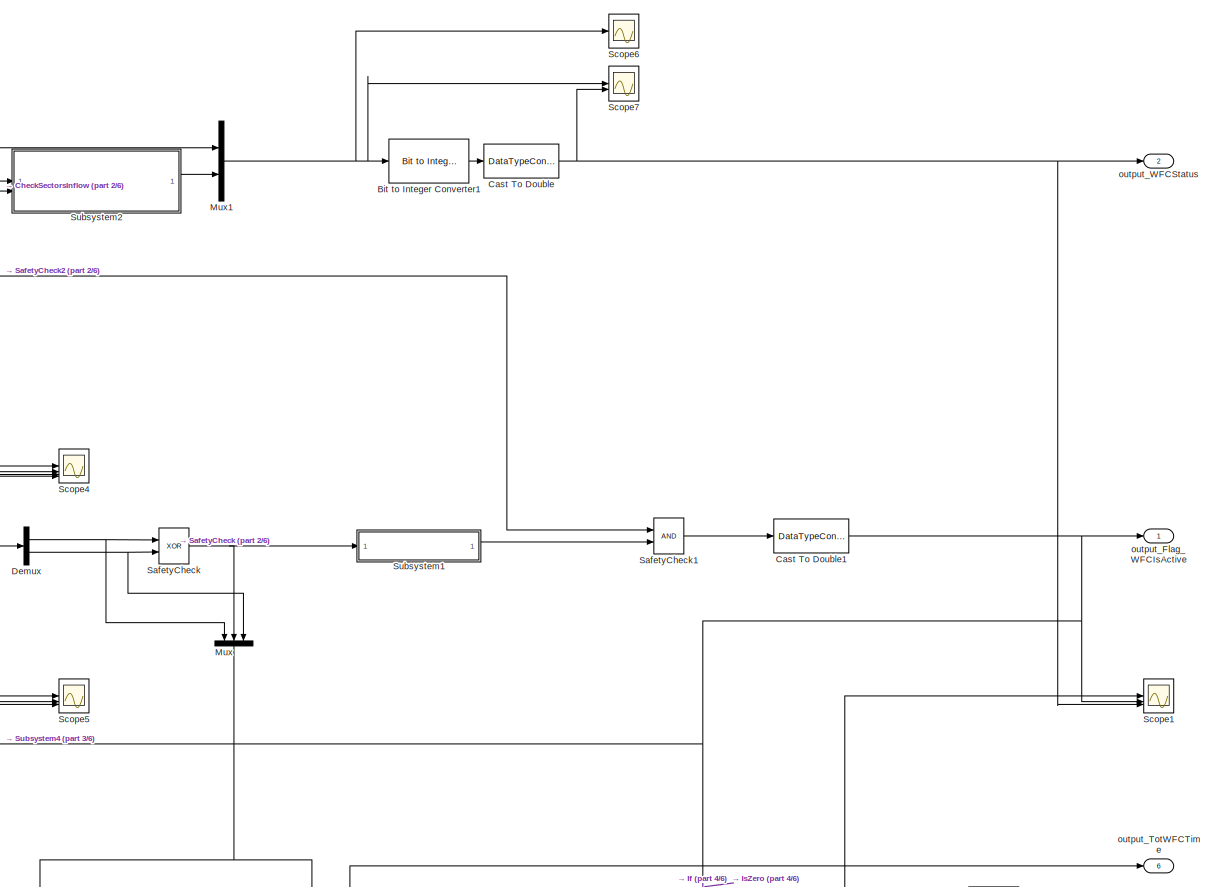
[diagram: root canvas - part 1/6, top center region]
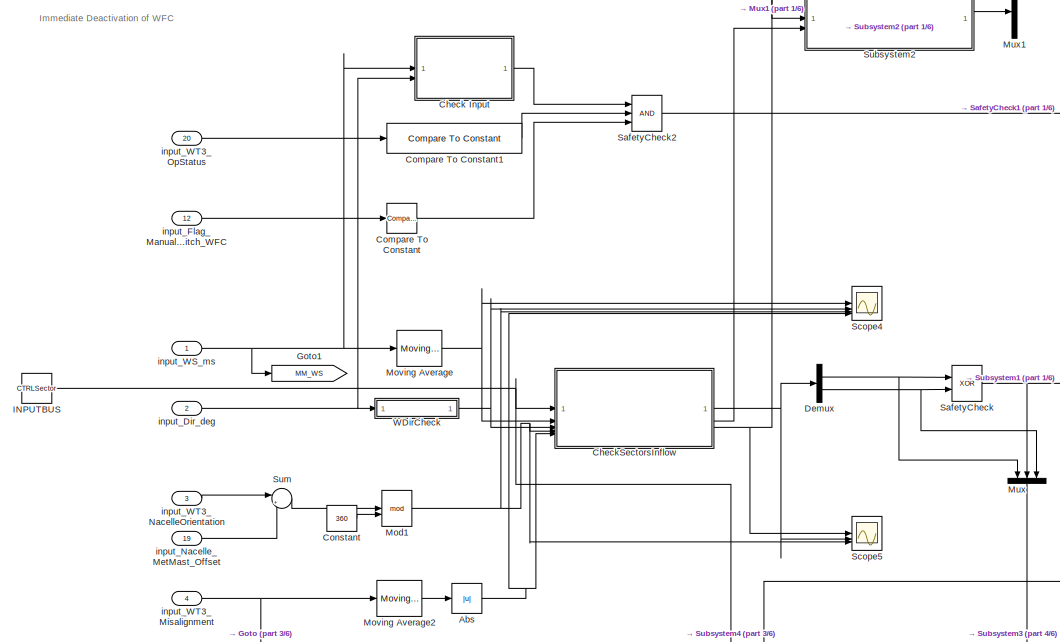
[diagram: root canvas - part 2/6, top left region]
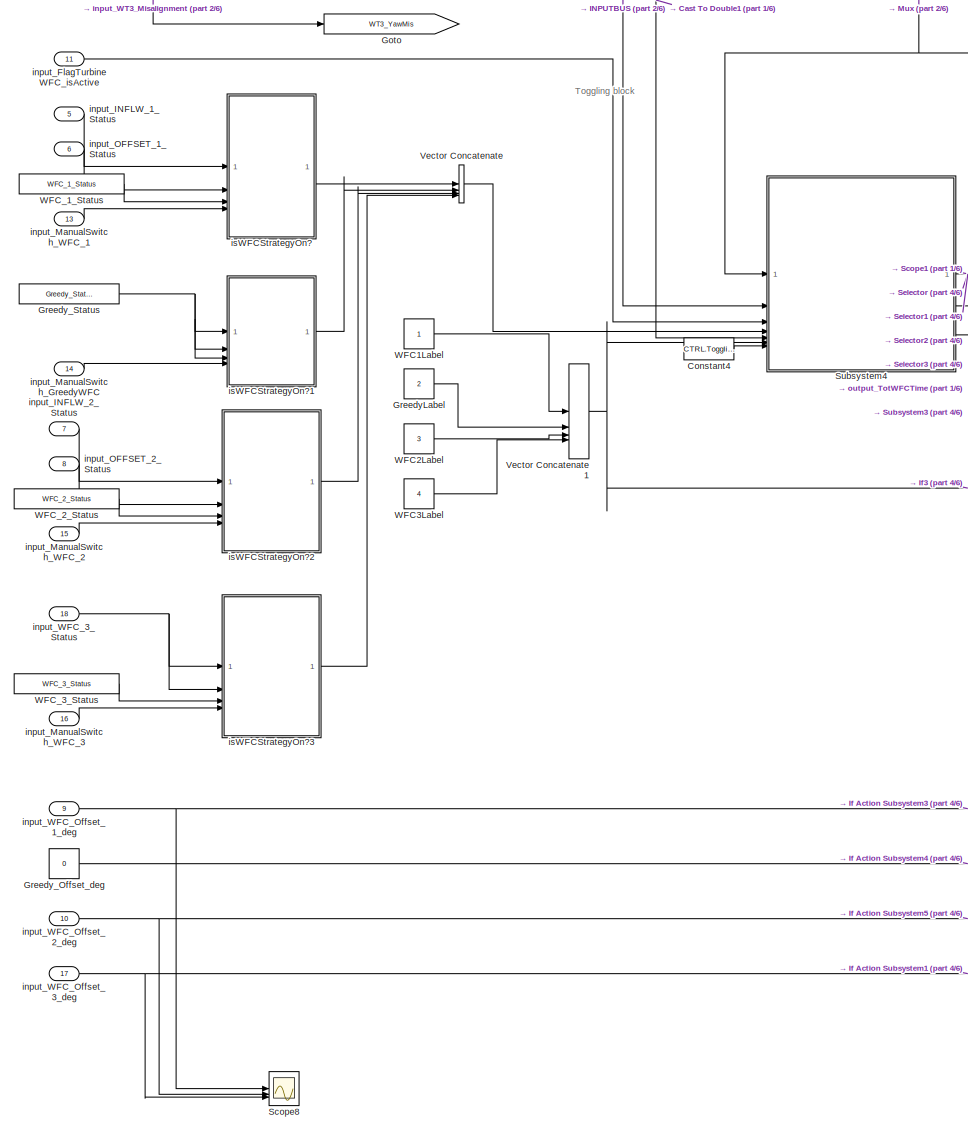
[diagram: root canvas - part 3/6, bottom left region]
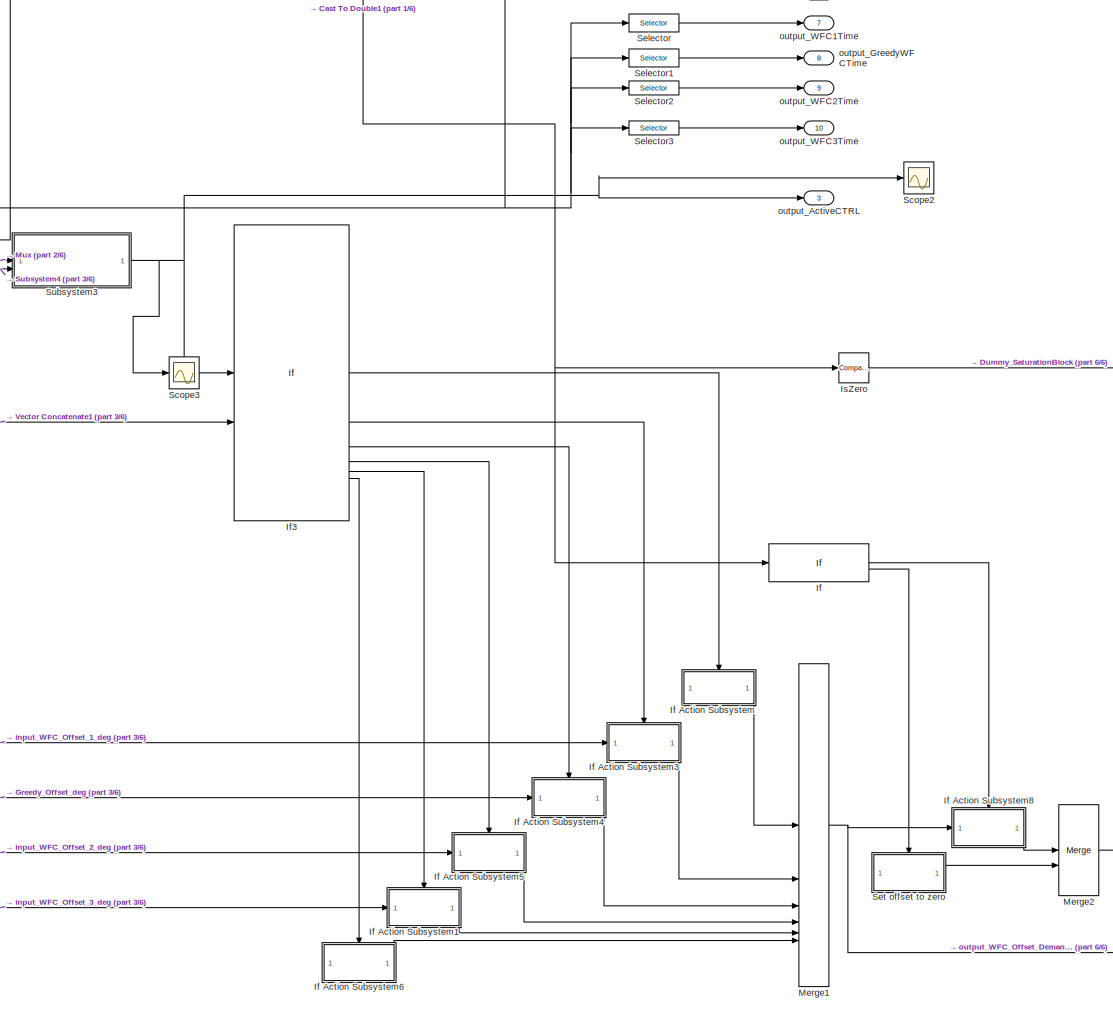
[diagram: root canvas - part 4/6, bottom center region]
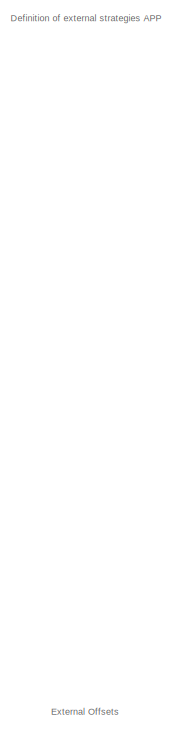
[diagram: root canvas - part 5/6, middle left region]
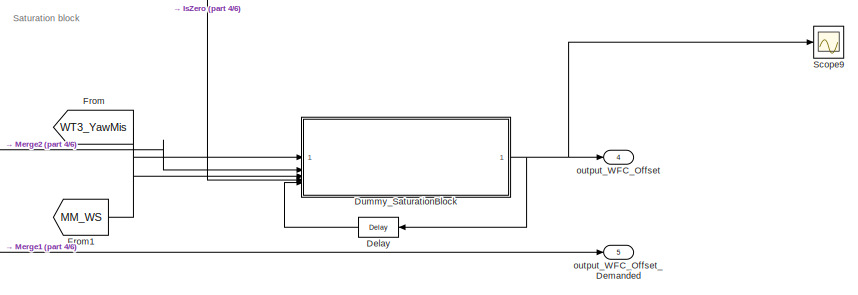
[diagram: root canvas - part 6/6, bottom right region]
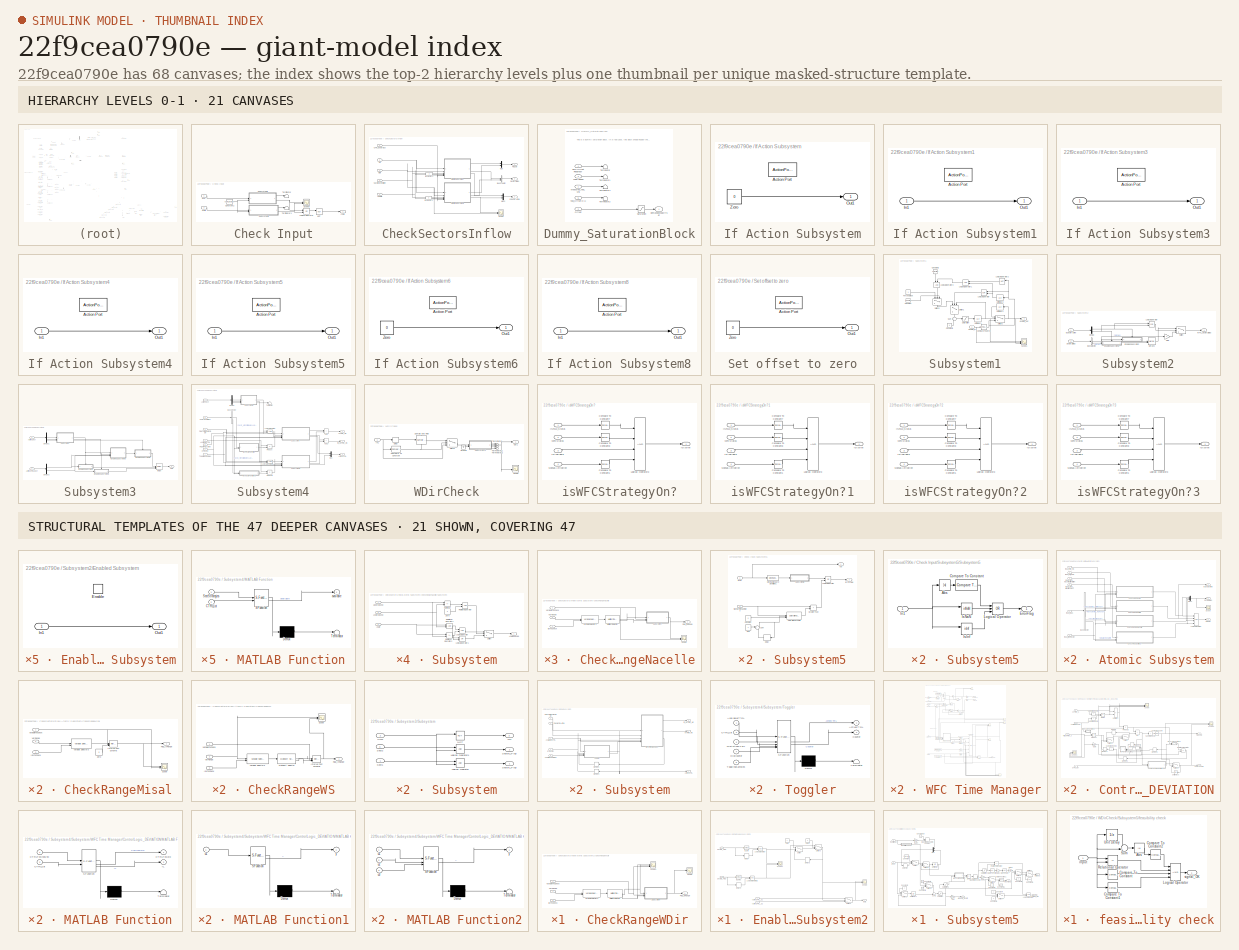
[diagram: thumbnail index - top-2 hierarchy levels (21 canvases) + 21 structural-template representatives of the remaining 47 canvases]
MODEL slx_22f9cea0790e
KIND model
CONFIG AbsTol = auto
CONFIG EnableMultiTasking = off
CONFIG FixedStep = sample_time
CONFIG MaxStep = auto
CONFIG MinStep = auto
CONFIG RelTol = 1e-3
CONFIG SampleTimeConstraint = Unconstrained
CONFIG SolverName = FixedStepDiscrete
CONFIG StartTime = 0
CONFIG StopTime = duration
BLOCK [Abs] Abs
  SaturateOnIntegerOverflow = off
BLOCK [Reference] Bit to Integer Converter1  REF=simulink/Logic and Bit
Operations/Bit to Integer
Converter
  LibrarySourceBlock = commutil2/Bit to Integer\nConverter
  SourceBlock = simulink/Logic and Bit\nOperations/Bit to Integer\nConverter
  SourceType = Bit to Integer Converter
BLOCK [DataTypeConversion] Cast To Double
  OutDataTypeStr = double
  RndMeth = Floor
  SaturateOnIntegerOverflow = off
BLOCK [DataTypeConversion] Cast To Double1
  OutDataTypeStr = double
  RndMeth = Floor
  SaturateOnIntegerOverflow = off
BLOCK [SubSystem] Check Input
BLOCK [Constant] Check Input/Constant2
  Value = CTRL.InputCheck.StartupTimeSamples
BLOCK [Outport] Check Input/IsOK
  VectorParamsAs1DForOutWhenUnconnected = off
BLOCK [Logic] Check Input/Logical Operator
  AllPortsSameDT = off
  Operator = OR
  OutDataTypeStr = boolean
BLOCK [Logic] Check Input/NOT
  AllPortsSameDT = off
  IconShape = distinctive
  Operator = NOT
  OutDataTypeStr = boolean
BLOCK [Scope] Check Input/Scope9
  Floating = off
  NumInputPorts = 2
  ScopeSpecificationString = Simulink.scopes.TimeScopeBlockCfg('CurrentConfiguration', extmgr.ConfigurationSet(extmgr.Configuration('Core','General UI',true),extmgr.Configuration('Core','Source UI',true),extmgr.Configuration('Sources','WiredSimulink',true,'DataLoggingVariableName','ScopeData1'),extmgr.Configuration('Visuals','Time Domain',true,'SerializedDisplays',{struct('MinYLimReal','-0.125','MaxYLimReal','1.125','YLabelRe...<+1452ch>
BLOCK [SubSystem] Check Input/Subsystem5
BLOCK [Constant] Check Input/Subsystem5/Constant
  Value = 0
BLOCK [Delay] Check Input/Subsystem5/Delay
  DelayLength = 1
  InitialCondition = 0
  InputPortMap = u0
  NameLocation = top
BLOCK [Outport] Check Input/Subsystem5/ErrorFlag
  Port = 2
  VectorParamsAs1DForOutWhenUnconnected = off
BLOCK [RelationalOperator] Check Input/Subsystem5/GreaterThan
  InputSameDT = off
  Operator = >
  OutDataTypeStr = boolean
  RndMeth = Simplest
BLOCK [Inport] Check Input/Subsystem5/InVar
BLOCK [Logic] Check Input/Subsystem5/Logical Operator
  AllPortsSameDT = off
  Operator = OR
  OutDataTypeStr = boolean
BLOCK [Reference] Check Input/Subsystem5/Moving Standard Deviation1  REF=dspstat3/Moving
Standard
Deviation
  SourceBlock = dspstat3/Moving\nStandard\nDeviation
  SourceType = dsp.simulink.MovingStandardDeviation
BLOCK [Constant] Check Input/Subsystem5/One
  OutDataTypeStr = Inherit: Inherit via back propagation
BLOCK [Reference] Check Input/Subsystem5/Saturation Dynamic  REF=simulink/Discontinuities/Saturation
Dynamic
  SourceBlock = simulink/Discontinuities/Saturation\nDynamic
  SourceType = Saturation Dynamic
BLOCK [Inport] Check Input/Subsystem5/StartupTimeSamples
  Port = 2
BLOCK [SubSystem] Check Input/Subsystem5/Subsystem5
BLOCK [Abs] Check Input/Subsystem5/Subsystem5/Abs
  SaturateOnIntegerOverflow = off
BLOCK [Reference] Check Input/Subsystem5/Subsystem5/Compare To Constant  REF=simulink/Logic and Bit
Operations/Compare
To Constant
  SourceBlock = simulink/Logic and Bit\nOperations/Compare\nTo Constant
  SourceType = Compare To Constant
BLOCK [Outport] Check Input/Subsystem5/Subsystem5/ErrorFlag
  VectorParamsAs1DForOutWhenUnconnected = off
BLOCK [Inport] Check Input/Subsystem5/Subsystem5/In1
BLOCK [RelationalOperator] Check Input/Subsystem5/Subsystem5/IsInf
  InputSameDT = off
  Operator = isInf
  OutDataTypeStr = boolean
  RndMeth = Simplest
BLOCK [RelationalOperator] Check Input/Subsystem5/Subsystem5/IsNaN
  InputSameDT = off
  Operator = isNaN
  OutDataTypeStr = boolean
  RndMeth = Simplest
BLOCK [Logic] Check Input/Subsystem5/Subsystem5/Logical Operator
  AllPortsSameDT = off
  Inputs = 3
  Operator = OR
  OutDataTypeStr = boolean
BLOCK [Sum] Check Input/Subsystem5/Sum
  Inputs = |++
BLOCK [Outport] Check Input/Subsystem5/Var
  VectorParamsAs1DForOutWhenUnconnected = off
BLOCK [SubSystem] Check Input/Subsystem6
BLOCK [Constant] Check Input/Subsystem6/Constant
  Value = 0
BLOCK [Delay] Check Input/Subsystem6/Delay
  DelayLength = 1
  InitialCondition = 0
  InputPortMap = u0
  NameLocation = top
BLOCK [Outport] Check Input/Subsystem6/ErrorFlag
  Port = 2
  VectorParamsAs1DForOutWhenUnconnected = off
BLOCK [RelationalOperator] Check Input/Subsystem6/GreaterThan
  InputSameDT = off
  Operator = >
  OutDataTypeStr = boolean
  RndMeth = Simplest
BLOCK [Inport] Check Input/Subsystem6/InVar
BLOCK [Logic] Check Input/Subsystem6/Logical Operator
  AllPortsSameDT = off
  Operator = OR
  OutDataTypeStr = boolean
BLOCK [Reference] Check Input/Subsystem6/Moving Standard Deviation1  REF=dspstat3/Moving
Standard
Deviation
  SourceBlock = dspstat3/Moving\nStandard\nDeviation
  SourceType = dsp.simulink.MovingStandardDeviation
BLOCK [Constant] Check Input/Subsystem6/One
  OutDataTypeStr = Inherit: Inherit via back propagation
BLOCK [Reference] Check Input/Subsystem6/Saturation Dynamic  REF=simulink/Discontinuities/Saturation
Dynamic
  SourceBlock = simulink/Discontinuities/Saturation\nDynamic
  SourceType = Saturation Dynamic
BLOCK [Inport] Check Input/Subsystem6/StartupTimeSamples
  Port = 2
BLOCK [SubSystem] Check Input/Subsystem6/Subsystem5
BLOCK [Abs] Check Input/Subsystem6/Subsystem5/Abs
  SaturateOnIntegerOverflow = off
BLOCK [Reference] Check Input/Subsystem6/Subsystem5/Compare To Constant  REF=simulink/Logic and Bit
Operations/Compare
To Constant
  SourceBlock = simulink/Logic and Bit\nOperations/Compare\nTo Constant
  SourceType = Compare To Constant
BLOCK [Outport] Check Input/Subsystem6/Subsystem5/ErrorFlag
  VectorParamsAs1DForOutWhenUnconnected = off
BLOCK [Inport] Check Input/Subsystem6/Subsystem5/In1
BLOCK [RelationalOperator] Check Input/Subsystem6/Subsystem5/IsInf
  InputSameDT = off
  Operator = isInf
  OutDataTypeStr = boolean
  RndMeth = Simplest
BLOCK [RelationalOperator] Check Input/Subsystem6/Subsystem5/IsNaN
  InputSameDT = off
  Operator = isNaN
  OutDataTypeStr = boolean
  RndMeth = Simplest
BLOCK [Logic] Check Input/Subsystem6/Subsystem5/Logical Operator
  AllPortsSameDT = off
  Inputs = 3
  Operator = OR
  OutDataTypeStr = boolean
BLOCK [Sum] Check Input/Subsystem6/Sum
  Inputs = |++
BLOCK [Outport] Check Input/Subsystem6/Var
  VectorParamsAs1DForOutWhenUnconnected = off
BLOCK [Terminator] Check Input/Terminator
BLOCK [Terminator] Check Input/Terminator1
BLOCK [Inport] Check Input/WDir
  Port = 2
BLOCK [Inport] Check Input/WS
BLOCK [SubSystem] CheckSectorsInflow
BLOCK [SubSystem] CheckSectorsInflow/Atomic Subsystem
  TreatAsAtomicUnit = on
BLOCK [BusSelector] CheckSectorsInflow/Atomic Subsystem/Bus Selector
  OutputSignals = WakeSteering_WSRange,WakeSteering_WDirRange,NacOrientationIsOK,MisalignmentLimit
BLOCK [SubSystem] CheckSectorsInflow/Atomic Subsystem/CheckRangeMisal
BLOCK [Outport] CheckSectorsInflow/Atomic Subsystem/CheckRangeMisal/Flag_InRange
  VectorParamsAs1DForOutWhenUnconnected = off
BLOCK [Inport] CheckSectorsInflow/Atomic Subsystem/CheckRangeMisal/IdxToCheck
  Port = 3
BLOCK [Reference] CheckSectorsInflow/Atomic Subsystem/CheckRangeMisal/Interval Test Dynamic  REF=simulink/Logic and Bit
Operations/Interval Test
Dynamic
  SourceBlock = simulink/Logic and Bit\nOperations/Interval Test\nDynamic
  SourceType = Interval Test Dynamic
BLOCK [Scope] CheckSectorsInflow/Atomic Subsystem/CheckRangeMisal/Scope
  Floating = off
  NumInputPorts = 2
  ScopeSpecificationString = Simulink.scopes.TimeScopeBlockCfg('CurrentConfiguration', extmgr.ConfigurationSet(extmgr.Configuration('Core','General UI',true),extmgr.Configuration('Core','Source UI',true),extmgr.Configuration('Sources','WiredSimulink',true,'DataLoggingVariableName','ScopeData5'),extmgr.Configuration('Visuals','Time Domain',true,'SerializedDisplays',{struct('MinYLimReal','-0.10539','MaxYLimReal','1.11185','YLab...<+1461ch>
BLOCK [Inport] CheckSectorsInflow/Atomic Subsystem/CheckRangeMisal/VarRange
  OutDataTypeStr = double
  Port = 2
BLOCK [Reference] CheckSectorsInflow/Atomic Subsystem/CheckRangeMisal/Variable Selector3  REF=dspindex/Variable
Selector
  SourceBlock = dspindex/Variable\nSelector
  SourceType = Variable Selector
BLOCK [Inport] CheckSectorsInflow/Atomic Subsystem/CheckRangeMisal/VariableToCheck
BLOCK [Constant] CheckSectorsInflow/Atomic Subsystem/CheckRangeMisal/Zero
  OutDataTypeStr = Inherit: Inherit via back propagation
  Value = 0
BLOCK [SubSystem] CheckSectorsInflow/Atomic Subsystem/CheckRangeNacelle
BLOCK [Outport] CheckSectorsInflow/Atomic Subsystem/CheckRangeNacelle/Flag_InRange
  VectorParamsAs1DForOutWhenUnconnected = off
BLOCK [Inport] CheckSectorsInflow/Atomic Subsystem/CheckRangeNacelle/IdxToCheck
  Port = 3
BLOCK [Reference] CheckSectorsInflow/Atomic Subsystem/CheckRangeNacelle/Multiport Selector  REF=dspindex/Multiport
Selector
  SourceBlock = dspindex/Multiport\nSelector
  SourceType = Multiport Selector
BLOCK [Scope] CheckSectorsInflow/Atomic Subsystem/CheckRangeNacelle/Scope
  Floating = off
  NumInputPorts = 2
  ScopeSpecificationString = Simulink.scopes.TimeScopeBlockCfg('CurrentConfiguration', extmgr.ConfigurationSet(extmgr.Configuration('Core','General UI',true),extmgr.Configuration('Core','Source UI',true),extmgr.Configuration('Sources','WiredSimulink',true,'DataLoggingVariableName','ScopeData4'),extmgr.Configuration('Visuals','Time Domain',true,'SerializedDisplays',{struct('MinYLimReal','-21.24353','MaxYLimReal','191.19182','Y...<+1517ch>
BLOCK [SubSystem] CheckSectorsInflow/Atomic Subsystem/CheckRangeNacelle/Subsystem
BLOCK [Inport] CheckSectorsInflow/Atomic Subsystem/CheckRangeNacelle/Subsystem/Angle
  Port = 2
BLOCK [Outport] CheckSectorsInflow/Atomic Subsystem/CheckRangeNacelle/Subsystem/AngleInRange
  VectorParamsAs1DForOutWhenUnconnected = off
BLOCK [Logic] CheckSectorsInflow/Atomic Subsystem/CheckRangeNacelle/Subsystem/Logical Operator
  AllPortsSameDT = off
  OutDataTypeStr = boolean
BLOCK [Logic] CheckSectorsInflow/Atomic Subsystem/CheckRangeNacelle/Subsystem/Logical Operator1
  AllPortsSameDT = off
  Operator = OR
  OutDataTypeStr = boolean
BLOCK [Inport] CheckSectorsInflow/Atomic Subsystem/CheckRangeNacelle/Subsystem/LowerBound
  Port = 3
BLOCK [RelationalOperator] CheckSectorsInflow/Atomic Subsystem/CheckRangeNacelle/Subsystem/Relational Operator
  InputSameDT = off
  OutDataTypeStr = boolean
  RndMeth = Simplest
BLOCK [RelationalOperator] CheckSectorsInflow/Atomic Subsystem/CheckRangeNacelle/Subsystem/Relational Operator1
  InputSameDT = off
  OutDataTypeStr = boolean
  RndMeth = Simplest
BLOCK [RelationalOperator] CheckSectorsInflow/Atomic Subsystem/CheckRangeNacelle/Subsystem/Relational Operator2
  InputSameDT = off
  Operator = <=
  OutDataTypeStr = boolean
  RndMeth = Simplest
BLOCK [Sum] CheckSectorsInflow/Atomic Subsystem/CheckRangeNacelle/Subsystem/Subtract
  IconShape = rectangular
  Inputs = +-
BLOCK [Switch] CheckSectorsInflow/Atomic Subsystem/CheckRangeNacelle/Subsystem/Switch
  Criteria = u2 ~= 0
  InputSameDT = off
  SaturateOnIntegerOverflow = off
BLOCK [Inport] CheckSectorsInflow/Atomic Subsystem/CheckRangeNacelle/Subsystem/UpperBound
BLOCK [Constant] CheckSectorsInflow/Atomic Subsystem/CheckRangeNacelle/Subsystem/Zero
  OutDataTypeStr = Inherit: Inherit via back propagation
  Value = 0
BLOCK [Inport] CheckSectorsInflow/Atomic Subsystem/CheckRangeNacelle/VarRange
  OutDataTypeStr = double
  Port = 2
BLOCK [Reference] CheckSectorsInflow/Atomic Subsystem/CheckRangeNacelle/Variable Selector3  REF=dspindex/Variable
Selector
  SourceBlock = dspindex/Variable\nSelector
  SourceType = Variable Selector
BLOCK [Inport] CheckSectorsInflow/Atomic Subsystem/CheckRangeNacelle/VariableToCheck
BLOCK [SubSystem] CheckSectorsInflow/Atomic Subsystem/CheckRangeWDir
BLOCK [Outport] CheckSectorsInflow/Atomic Subsystem/CheckRangeWDir/Flag_InRange
  VectorParamsAs1DForOutWhenUnconnected = off
BLOCK [Inport] CheckSectorsInflow/Atomic Subsystem/CheckRangeWDir/IdxToCheck
  Port = 3
BLOCK [Reference] CheckSectorsInflow/Atomic Subsystem/CheckRangeWDir/Multiport Selector  REF=dspindex/Multiport
Selector
  SourceBlock = dspindex/Multiport\nSelector
  SourceType = Multiport Selector
BLOCK [Scope] CheckSectorsInflow/Atomic Subsystem/CheckRangeWDir/Scope
  Floating = off
  NumInputPorts = 1
  ScopeSpecificationString = Simulink.scopes.TimeScopeBlockCfg('CurrentConfiguration', extmgr.ConfigurationSet(extmgr.Configuration('Core','General UI',true),extmgr.Configuration('Core','Source UI',true),extmgr.Configuration('Sources','WiredSimulink',true,'DataLoggingVariableName','ScopeData3'),extmgr.Configuration('Visuals','Time Domain',true,'SerializedDisplays',{struct('MinYLimReal','-0.125','MaxYLimReal','1.125','YLabelRe...<+1387ch>
BLOCK [SubSystem] CheckSectorsInflow/Atomic Subsystem/CheckRangeWDir/Subsystem
BLOCK [Inport] CheckSectorsInflow/Atomic Subsystem/CheckRangeWDir/Subsystem/Angle
  Port = 2
BLOCK [Outport] CheckSectorsInflow/Atomic Subsystem/CheckRangeWDir/Subsystem/AngleInRange
  VectorParamsAs1DForOutWhenUnconnected = off
BLOCK [Logic] CheckSectorsInflow/Atomic Subsystem/CheckRangeWDir/Subsystem/Logical Operator
  AllPortsSameDT = off
  OutDataTypeStr = boolean
BLOCK [Logic] CheckSectorsInflow/Atomic Subsystem/CheckRangeWDir/Subsystem/Logical Operator1
  AllPortsSameDT = off
  Operator = OR
  OutDataTypeStr = boolean
BLOCK [Inport] CheckSectorsInflow/Atomic Subsystem/CheckRangeWDir/Subsystem/LowerBound
  Port = 3
BLOCK [RelationalOperator] CheckSectorsInflow/Atomic Subsystem/CheckRangeWDir/Subsystem/Relational Operator
  InputSameDT = off
  OutDataTypeStr = boolean
  RndMeth = Simplest
BLOCK [RelationalOperator] CheckSectorsInflow/Atomic Subsystem/CheckRangeWDir/Subsystem/Relational Operator1
  InputSameDT = off
  OutDataTypeStr = boolean
  RndMeth = Simplest
BLOCK [RelationalOperator] CheckSectorsInflow/Atomic Subsystem/CheckRangeWDir/Subsystem/Relational Operator2
  InputSameDT = off
  Operator = <=
  OutDataTypeStr = boolean
  RndMeth = Simplest
BLOCK [Sum] CheckSectorsInflow/Atomic Subsystem/CheckRangeWDir/Subsystem/Subtract
  IconShape = rectangular
  Inputs = +-
BLOCK [Switch] CheckSectorsInflow/Atomic Subsystem/CheckRangeWDir/Subsystem/Switch
  Criteria = u2 ~= 0
  InputSameDT = off
  SaturateOnIntegerOverflow = off
BLOCK [Inport] CheckSectorsInflow/Atomic Subsystem/CheckRangeWDir/Subsystem/UpperBound
BLOCK [Constant] CheckSectorsInflow/Atomic Subsystem/CheckRangeWDir/Subsystem/Zero
  OutDataTypeStr = Inherit: Inherit via back propagation
  Value = 0
BLOCK [Inport] CheckSectorsInflow/Atomic Subsystem/CheckRangeWDir/VarRange
  OutDataTypeStr = double
  Port = 2
BLOCK [Reference] CheckSectorsInflow/Atomic Subsystem/CheckRangeWDir/Variable Selector3  REF=dspindex/Variable
Selector
  SourceBlock = dspindex/Variable\nSelector
  SourceType = Variable Selector
BLOCK [Inport] CheckSectorsInflow/Atomic Subsystem/CheckRangeWDir/VariableToCheck
BLOCK [SubSystem] CheckSectorsInflow/Atomic Subsystem/CheckRangeWS
BLOCK [Outport] CheckSectorsInflow/Atomic Subsystem/CheckRangeWS/Flag_InRange
  VectorParamsAs1DForOutWhenUnconnected = off
BLOCK [Inport] CheckSectorsInflow/Atomic Subsystem/CheckRangeWS/IdxToCheck
  Port = 3
BLOCK [Reference] CheckSectorsInflow/Atomic Subsystem/CheckRangeWS/Interval Test Dynamic  REF=simulink/Logic and Bit
Operations/Interval Test
Dynamic
  SourceBlock = simulink/Logic and Bit\nOperations/Interval Test\nDynamic
  SourceType = Interval Test Dynamic
BLOCK [Reference] CheckSectorsInflow/Atomic Subsystem/CheckRangeWS/Multiport Selector  REF=dspindex/Multiport
Selector
  SourceBlock = dspindex/Multiport\nSelector
  SourceType = Multiport Selector
BLOCK [Scope] CheckSectorsInflow/Atomic Subsystem/CheckRangeWS/Scope
  Floating = off
  NumInputPorts = 2
  ScopeSpecificationString = Simulink.scopes.TimeScopeBlockCfg('CurrentConfiguration', extmgr.ConfigurationSet(extmgr.Configuration('Core','General UI',true),extmgr.Configuration('Core','Source UI',true),extmgr.Configuration('Sources','WiredSimulink',true,'DataLoggingVariableName','ScopeData2'),extmgr.Configuration('Visuals','Time Domain',true,'SerializedDisplays',{struct('MinYLimReal','-10','MaxYLimReal','10','YLabelReal',''...<+1638ch>
BLOCK [Inport] CheckSectorsInflow/Atomic Subsystem/CheckRangeWS/VarRange
  OutDataTypeStr = double
  Port = 2
BLOCK [Reference] CheckSectorsInflow/Atomic Subsystem/CheckRangeWS/Variable Selector3  REF=dspindex/Variable
Selector
  SourceBlock = dspindex/Variable\nSelector
  SourceType = Variable Selector
BLOCK [Inport] CheckSectorsInflow/Atomic Subsystem/CheckRangeWS/VariableToCheck
BLOCK [Outport] CheckSectorsInflow/Atomic Subsystem/FlagOn
  VectorParamsAs1DForOutWhenUnconnected = off
BLOCK [Logic] CheckSectorsInflow/Atomic Subsystem/Logical Operator
  AllPortsSameDT = off
  Inputs = 4
  OutDataTypeStr = boolean
BLOCK [Mux] CheckSectorsInflow/Atomic Subsystem/Mux1
  DisplayOption = bar
  Inputs = 3
BLOCK [Scope] CheckSectorsInflow/Atomic Subsystem/Scope
  Floating = off
  NumInputPorts = 1
  ScopeSpecificationString = Simulink.scopes.TimeScopeBlockCfg('CurrentConfiguration', extmgr.ConfigurationSet(extmgr.Configuration('Core','General UI',true),extmgr.Configuration('Core','Source UI',true),extmgr.Configuration('Sources','WiredSimulink',true,'DataLoggingVariableName','ScopeData6'),extmgr.Configuration('Visuals','Time Domain',true,'SerializedDisplays',{struct('MinYLimReal','-0.125','MaxYLimReal','1.125','YLabelRe...<+1545ch>
BLOCK [Outport] CheckSectorsInflow/Atomic Subsystem/SectorStatus
  Port = 2
  VectorParamsAs1DForOutWhenUnconnected = off
BLOCK [Inport] CheckSectorsInflow/Atomic Subsystem/input_Bus
  Port = 6
  PortDimensions = 1
BLOCK [Inport] CheckSectorsInflow/Atomic Subsystem/input_Dir_deg
  Port = 2
  PortDimensions = 1
BLOCK [Inport] CheckSectorsInflow/Atomic Subsystem/input_WS_ms
  PortDimensions = 1
  VarSizeSig = No
BLOCK [Inport] CheckSectorsInflow/Atomic Subsystem/input_WT3_Misalignment
  OutDataTypeStr = double
  Port = 4
  PortDimensions = 1
BLOCK [Inport] CheckSectorsInflow/Atomic Subsystem/input_WT3_NacelleOrientation
  Port = 3
BLOCK [Inport] CheckSectorsInflow/Atomic Subsystem/input_idxSector
  OutDataTypeStr = double
  Port = 5
  PortDimensions = 1
BLOCK [Outport] CheckSectorsInflow/Atomic Subsystem/isSectorActive
  Port = 3
  VectorParamsAs1DForOutWhenUnconnected = off
BLOCK [SubSystem] CheckSectorsInflow/Atomic Subsystem1
  TreatAsAtomicUnit = on
BLOCK [BusSelector] CheckSectorsInflow/Atomic Subsystem1/Bus Selector
  OutputSignals = WakeSteering_WSRange,WakeSteering_WDirRange,NacOrientationIsOK,MisalignmentLimit
BLOCK [SubSystem] CheckSectorsInflow/Atomic Subsystem1/CheckRangeMisal
BLOCK [Outport] CheckSectorsInflow/Atomic Subsystem1/CheckRangeMisal/Flag_InRange
  VectorParamsAs1DForOutWhenUnconnected = off
BLOCK [Inport] CheckSectorsInflow/Atomic Subsystem1/CheckRangeMisal/IdxToCheck
  Port = 3
BLOCK [Reference] CheckSectorsInflow/Atomic Subsystem1/CheckRangeMisal/Interval Test Dynamic  REF=simulink/Logic and Bit
Operations/Interval Test
Dynamic
  SourceBlock = simulink/Logic and Bit\nOperations/Interval Test\nDynamic
  SourceType = Interval Test Dynamic
BLOCK [Scope] CheckSectorsInflow/Atomic Subsystem1/CheckRangeMisal/Scope
  Floating = off
  NumInputPorts = 2
  ScopeSpecificationString = Simulink.scopes.TimeScopeBlockCfg('CurrentConfiguration', extmgr.ConfigurationSet(extmgr.Configuration('Core','General UI',true),extmgr.Configuration('Core','Source UI',true),extmgr.Configuration('Sources','WiredSimulink',true,'DataLoggingVariableName','ScopeData5'),extmgr.Configuration('Visuals','Time Domain',true,'SerializedDisplays',{struct('MinYLimReal','-0.10539','MaxYLimReal','1.11185','YLab...<+1461ch>
BLOCK [Inport] CheckSectorsInflow/Atomic Subsystem1/CheckRangeMisal/VarRange
  OutDataTypeStr = double
  Port = 2
BLOCK [Reference] CheckSectorsInflow/Atomic Subsystem1/CheckRangeMisal/Variable Selector3  REF=dspindex/Variable
Selector
  SourceBlock = dspindex/Variable\nSelector
  SourceType = Variable Selector
BLOCK [Inport] CheckSectorsInflow/Atomic Subsystem1/CheckRangeMisal/VariableToCheck
BLOCK [Constant] CheckSectorsInflow/Atomic Subsystem1/CheckRangeMisal/Zero
  OutDataTypeStr = Inherit: Inherit via back propagation
  Value = 0
BLOCK [SubSystem] CheckSectorsInflow/Atomic Subsystem1/CheckRangeNacelle
BLOCK [Outport] CheckSectorsInflow/Atomic Subsystem1/CheckRangeNacelle/Flag_InRange
  VectorParamsAs1DForOutWhenUnconnected = off
BLOCK [Inport] CheckSectorsInflow/Atomic Subsystem1/CheckRangeNacelle/IdxToCheck
  Port = 3
BLOCK [Reference] CheckSectorsInflow/Atomic Subsystem1/CheckRangeNacelle/Multiport Selector  REF=dspindex/Multiport
Selector
  SourceBlock = dspindex/Multiport\nSelector
  SourceType = Multiport Selector
BLOCK [Scope] CheckSectorsInflow/Atomic Subsystem1/CheckRangeNacelle/Scope
  Floating = off
  NumInputPorts = 2
  ScopeSpecificationString = Simulink.scopes.TimeScopeBlockCfg('CurrentConfiguration', extmgr.ConfigurationSet(extmgr.Configuration('Core','General UI',true),extmgr.Configuration('Core','Source UI',true),extmgr.Configuration('Sources','WiredSimulink',true,'DataLoggingVariableName','ScopeData4'),extmgr.Configuration('Visuals','Time Domain',true,'SerializedDisplays',{struct('MinYLimReal','-11.03673','MaxYLimReal','9.28502','YLa...<+1486ch>
BLOCK [SubSystem] CheckSectorsInflow/Atomic Subsystem1/CheckRangeNacelle/Subsystem
BLOCK [Inport] CheckSectorsInflow/Atomic Subsystem1/CheckRangeNacelle/Subsystem/Angle
  Port = 2
BLOCK [Outport] CheckSectorsInflow/Atomic Subsystem1/CheckRangeNacelle/Subsystem/AngleInRange
  VectorParamsAs1DForOutWhenUnconnected = off
BLOCK [Logic] CheckSectorsInflow/Atomic Subsystem1/CheckRangeNacelle/Subsystem/Logical Operator
  AllPortsSameDT = off
  OutDataTypeStr = boolean
BLOCK [Logic] CheckSectorsInflow/Atomic Subsystem1/CheckRangeNacelle/Subsystem/Logical Operator1
  AllPortsSameDT = off
  Operator = OR
  OutDataTypeStr = boolean
BLOCK [Inport] CheckSectorsInflow/Atomic Subsystem1/CheckRangeNacelle/Subsystem/LowerBound
  Port = 3
BLOCK [RelationalOperator] CheckSectorsInflow/Atomic Subsystem1/CheckRangeNacelle/Subsystem/Relational Operator
  InputSameDT = off
  OutDataTypeStr = boolean
  RndMeth = Simplest
BLOCK [RelationalOperator] CheckSectorsInflow/Atomic Subsystem1/CheckRangeNacelle/Subsystem/Relational Operator1
  InputSameDT = off
  OutDataTypeStr = boolean
  RndMeth = Simplest
BLOCK [RelationalOperator] CheckSectorsInflow/Atomic Subsystem1/CheckRangeNacelle/Subsystem/Relational Operator2
  InputSameDT = off
  Operator = <=
  OutDataTypeStr = boolean
  RndMeth = Simplest
BLOCK [Sum] CheckSectorsInflow/Atomic Subsystem1/CheckRangeNacelle/Subsystem/Subtract
  IconShape = rectangular
  Inputs = +-
BLOCK [Switch] CheckSectorsInflow/Atomic Subsystem1/CheckRangeNacelle/Subsystem/Switch
  Criteria = u2 ~= 0
  InputSameDT = off
  SaturateOnIntegerOverflow = off
BLOCK [Inport] CheckSectorsInflow/Atomic Subsystem1/CheckRangeNacelle/Subsystem/UpperBound
BLOCK [Constant] CheckSectorsInflow/Atomic Subsystem1/CheckRangeNacelle/Subsystem/Zero
  OutDataTypeStr = Inherit: Inherit via back propagation
  Value = 0
BLOCK [Inport] CheckSectorsInflow/Atomic Subsystem1/CheckRangeNacelle/VarRange
  OutDataTypeStr = double
  Port = 2
BLOCK [Reference] CheckSectorsInflow/Atomic Subsystem1/CheckRangeNacelle/Variable Selector3  REF=dspindex/Variable
Selector
  SourceBlock = dspindex/Variable\nSelector
  SourceType = Variable Selector
BLOCK [Inport] CheckSectorsInflow/Atomic Subsystem1/CheckRangeNacelle/VariableToCheck
BLOCK [SubSystem] CheckSectorsInflow/Atomic Subsystem1/CheckRangeWDir
BLOCK [Outport] CheckSectorsInflow/Atomic Subsystem1/CheckRangeWDir/Flag_InRange
  VectorParamsAs1DForOutWhenUnconnected = off
BLOCK [Inport] CheckSectorsInflow/Atomic Subsystem1/CheckRangeWDir/IdxToCheck
  Port = 3
BLOCK [Reference] CheckSectorsInflow/Atomic Subsystem1/CheckRangeWDir/Multiport Selector  REF=dspindex/Multiport
Selector
  SourceBlock = dspindex/Multiport\nSelector
  SourceType = Multiport Selector
BLOCK [Scope] CheckSectorsInflow/Atomic Subsystem1/CheckRangeWDir/Scope
  Floating = off
  NumInputPorts = 1
  ScopeSpecificationString = Simulink.scopes.TimeScopeBlockCfg('CurrentConfiguration', extmgr.ConfigurationSet(extmgr.Configuration('Core','General UI',true),extmgr.Configuration('Core','Source UI',true),extmgr.Configuration('Sources','WiredSimulink',true,'DataLoggingVariableName','ScopeData3'),extmgr.Configuration('Visuals','Time Domain',true,'SerializedDisplays',{struct('MinYLimReal','-0.125','MaxYLimReal','1.125','YLabelRe...<+1393ch>
BLOCK [Scope] CheckSectorsInflow/Atomic Subsystem1/CheckRangeWDir/Scope1
  Floating = off
  NumInputPorts = 3
  ScopeSpecificationString = Simulink.scopes.TimeScopeBlockCfg('CurrentConfiguration', extmgr.ConfigurationSet(extmgr.Configuration('Core','General UI',true),extmgr.Configuration('Core','Source UI',true),extmgr.Configuration('Sources','WiredSimulink',true,'DataLoggingVariableName','ScopeData3'),extmgr.Configuration('Visuals','Time Domain',true,'SerializedDisplays',{struct('MinYLimReal','-38.75','MaxYLimReal','348.75','YLabelR...<+1470ch>
BLOCK [SubSystem] CheckSectorsInflow/Atomic Subsystem1/CheckRangeWDir/Subsystem
BLOCK [Inport] CheckSectorsInflow/Atomic Subsystem1/CheckRangeWDir/Subsystem/Angle
  Port = 2
BLOCK [Outport] CheckSectorsInflow/Atomic Subsystem1/CheckRangeWDir/Subsystem/AngleInRange
  VectorParamsAs1DForOutWhenUnconnected = off
BLOCK [Logic] CheckSectorsInflow/Atomic Subsystem1/CheckRangeWDir/Subsystem/Logical Operator
  AllPortsSameDT = off
  OutDataTypeStr = boolean
BLOCK [Logic] CheckSectorsInflow/Atomic Subsystem1/CheckRangeWDir/Subsystem/Logical Operator1
  AllPortsSameDT = off
  Operator = OR
  OutDataTypeStr = boolean
BLOCK [Inport] CheckSectorsInflow/Atomic Subsystem1/CheckRangeWDir/Subsystem/LowerBound
  Port = 3
BLOCK [RelationalOperator] CheckSectorsInflow/Atomic Subsystem1/CheckRangeWDir/Subsystem/Relational Operator
  InputSameDT = off
  OutDataTypeStr = boolean
  RndMeth = Simplest
BLOCK [RelationalOperator] CheckSectorsInflow/Atomic Subsystem1/CheckRangeWDir/Subsystem/Relational Operator1
  InputSameDT = off
  OutDataTypeStr = boolean
  RndMeth = Simplest
BLOCK [RelationalOperator] CheckSectorsInflow/Atomic Subsystem1/CheckRangeWDir/Subsystem/Relational Operator2
  InputSameDT = off
  Operator = <=
  OutDataTypeStr = boolean
  RndMeth = Simplest
BLOCK [Sum] CheckSectorsInflow/Atomic Subsystem1/CheckRangeWDir/Subsystem/Subtract
  IconShape = rectangular
  Inputs = +-
BLOCK [Switch] CheckSectorsInflow/Atomic Subsystem1/CheckRangeWDir/Subsystem/Switch
  Criteria = u2 ~= 0
  InputSameDT = off
  SaturateOnIntegerOverflow = off
BLOCK [Inport] CheckSectorsInflow/Atomic Subsystem1/CheckRangeWDir/Subsystem/UpperBound
BLOCK [Constant] CheckSectorsInflow/Atomic Subsystem1/CheckRangeWDir/Subsystem/Zero
  OutDataTypeStr = Inherit: Inherit via back propagation
  Value = 0
BLOCK [Inport] CheckSectorsInflow/Atomic Subsystem1/CheckRangeWDir/VarRange
  OutDataTypeStr = double
  Port = 2
BLOCK [Reference] CheckSectorsInflow/Atomic Subsystem1/CheckRangeWDir/Variable Selector3  REF=dspindex/Variable
Selector
  SourceBlock = dspindex/Variable\nSelector
  SourceType = Variable Selector
BLOCK [Inport] CheckSectorsInflow/Atomic Subsystem1/CheckRangeWDir/VariableToCheck
BLOCK [SubSystem] CheckSectorsInflow/Atomic Subsystem1/CheckRangeWS
BLOCK [Outport] CheckSectorsInflow/Atomic Subsystem1/CheckRangeWS/Flag_InRange
  VectorParamsAs1DForOutWhenUnconnected = off
BLOCK [Inport] CheckSectorsInflow/Atomic Subsystem1/CheckRangeWS/IdxToCheck
  Port = 3
BLOCK [Reference] CheckSectorsInflow/Atomic Subsystem1/CheckRangeWS/Interval Test Dynamic  REF=simulink/Logic and Bit
Operations/Interval Test
Dynamic
  SourceBlock = simulink/Logic and Bit\nOperations/Interval Test\nDynamic
  SourceType = Interval Test Dynamic
BLOCK [Reference] CheckSectorsInflow/Atomic Subsystem1/CheckRangeWS/Multiport Selector  REF=dspindex/Multiport
Selector
  SourceBlock = dspindex/Multiport\nSelector
  SourceType = Multiport Selector
BLOCK [Scope] CheckSectorsInflow/Atomic Subsystem1/CheckRangeWS/Scope
  Floating = off
  NumInputPorts = 2
  ScopeSpecificationString = Simulink.scopes.TimeScopeBlockCfg('CurrentConfiguration', extmgr.ConfigurationSet(extmgr.Configuration('Core','General UI',true),extmgr.Configuration('Core','Source UI',true),extmgr.Configuration('Sources','WiredSimulink',true,'DataLoggingVariableName','ScopeData2'),extmgr.Configuration('Visuals','Time Domain',true,'SerializedDisplays',{struct('MinYLimReal','-10','MaxYLimReal','10','YLabelReal',''...<+1638ch>
BLOCK [Inport] CheckSectorsInflow/Atomic Subsystem1/CheckRangeWS/VarRange
  OutDataTypeStr = double
  Port = 2
BLOCK [Reference] CheckSectorsInflow/Atomic Subsystem1/CheckRangeWS/Variable Selector3  REF=dspindex/Variable
Selector
  SourceBlock = dspindex/Variable\nSelector
  SourceType = Variable Selector
BLOCK [Inport] CheckSectorsInflow/Atomic Subsystem1/CheckRangeWS/VariableToCheck
BLOCK [Outport] CheckSectorsInflow/Atomic Subsystem1/FlagOn
  VectorParamsAs1DForOutWhenUnconnected = off
BLOCK [Logic] CheckSectorsInflow/Atomic Subsystem1/Logical Operator
  AllPortsSameDT = off
  Inputs = 4
  OutDataTypeStr = boolean
BLOCK [Mux] CheckSectorsInflow/Atomic Subsystem1/Mux1
  DisplayOption = bar
  Inputs = 3
BLOCK [Scope] CheckSectorsInflow/Atomic Subsystem1/Scope
  Floating = off
  NumInputPorts = 1
  ScopeSpecificationString = Simulink.scopes.TimeScopeBlockCfg('CurrentConfiguration', extmgr.ConfigurationSet(extmgr.Configuration('Core','General UI',true),extmgr.Configuration('Core','Source UI',true),extmgr.Configuration('Sources','WiredSimulink',true,'DataLoggingVariableName','ScopeData6'),extmgr.Configuration('Visuals','Time Domain',true,'SerializedDisplays',{struct('MinYLimReal','-0.125','MaxYLimReal','1.125','YLabelRe...<+1545ch>
BLOCK [Outport] CheckSectorsInflow/Atomic Subsystem1/SectorStatus
  Port = 2
  VectorParamsAs1DForOutWhenUnconnected = off
BLOCK [Inport] CheckSectorsInflow/Atomic Subsystem1/input_Bus
  Port = 6
  PortDimensions = 1
BLOCK [Inport] CheckSectorsInflow/Atomic Subsystem1/input_Dir_deg
  Port = 2
  PortDimensions = 1
BLOCK [Inport] CheckSectorsInflow/Atomic Subsystem1/input_WS_ms
  PortDimensions = 1
  VarSizeSig = No
BLOCK [Inport] CheckSectorsInflow/Atomic Subsystem1/input_WT3_Misalignment
  OutDataTypeStr = double
  Port = 4
  PortDimensions = 1
BLOCK [Inport] CheckSectorsInflow/Atomic Subsystem1/input_WT3_NacelleOrientation
  Port = 3
BLOCK [Inport] CheckSectorsInflow/Atomic Subsystem1/input_idxSector
  OutDataTypeStr = double
  Port = 5
  PortDimensions = 1
BLOCK [Outport] CheckSectorsInflow/Atomic Subsystem1/isSectorActive
  Port = 3
  VectorParamsAs1DForOutWhenUnconnected = off
BLOCK [BusCreator] CheckSectorsInflow/Bus Creator
  DisplayOption = bar
  InheritFromInputs = on
  Inputs = 2
BLOCK [Inport] CheckSectorsInflow/CTRLSectorBus
  OutDataTypeStr = Bus: CTRLSector_Bus
BLOCK [Outport] CheckSectorsInflow/FlagOn
  VectorParamsAs1DForOutWhenUnconnected = off
BLOCK [Mux] CheckSectorsInflow/Mux
  DisplayOption = bar
  Inputs = 2
BLOCK [Mux] CheckSectorsInflow/Mux2
  DisplayOption = bar
  Inputs = 2
BLOCK [Inport] CheckSectorsInflow/NacelleOrientation
  Port = 4
BLOCK [Scope] CheckSectorsInflow/Scope
  Floating = off
  NumInputPorts = 2
  ScopeSpecificationString = Simulink.scopes.TimeScopeBlockCfg('CurrentConfiguration', extmgr.ConfigurationSet(extmgr.Configuration('Core','General UI',true),extmgr.Configuration('Core','Source UI',true),extmgr.Configuration('Sources','WiredSimulink',true,'DataLoggingVariableName','ScopeData12'),extmgr.Configuration('Visuals','Time Domain',true,'SerializedDisplays',{struct('MinYLimReal','-25.00000','MaxYLimReal','225.00000','...<+1449ch>
BLOCK [Outport] CheckSectorsInflow/SectorStatus
  Port = 2
  VectorParamsAs1DForOutWhenUnconnected = off
BLOCK [Inport] CheckSectorsInflow/WDir
  Port = 3
BLOCK [Inport] CheckSectorsInflow/WS
  Port = 2
BLOCK [Inport] CheckSectorsInflow/YawMis
  Port = 5
BLOCK [Constant] CheckSectorsInflow/idxSector1
BLOCK [Constant] CheckSectorsInflow/idxSector2
  Value = 2
BLOCK [Outport] CheckSectorsInflow/isSectorActive
  Port = 3
  VectorParamsAs1DForOutWhenUnconnected = off
BLOCK [Reference] Compare To Constant  REF=simulink/Logic and Bit
Operations/Compare
To Constant
  SourceBlock = simulink/Logic and Bit\nOperations/Compare\nTo Constant
  SourceType = Compare To Constant
BLOCK [Reference] Compare To Constant1  REF=simulink/Logic and Bit
Operations/Compare
To Constant
  SourceBlock = simulink/Logic and Bit\nOperations/Compare\nTo Constant
  SourceType = Compare To Constant
BLOCK [Constant] Constant
  Value = 360
BLOCK [Constant] Constant4
  Value = CTRL.TogglingSamples
BLOCK [Delay] Delay
  DelayLength = 1
  InitialCondition = 0
  InputPortMap = u0
  NameLocation = top
BLOCK [Demux] Demux
  Outputs = 2
BLOCK [SubSystem] Dummy_SaturationBlock
BLOCK [Outport] Dummy_SaturationBlock/DemandedYawOffset
  PortDimensions = 1
BLOCK [Inport] Dummy_SaturationBlock/Measured_Yaw_Mis
BLOCK [Inport] Dummy_SaturationBlock/Offset
  Port = 2
BLOCK [Saturate] Dummy_SaturationBlock/Saturation
  LowerLimit = CTRL.SatBlock.WFC_OffsetRange(1)
  UpperLimit = CTRL.SatBlock.WFC_OffsetRange(2)
BLOCK [Terminator] Dummy_SaturationBlock/Terminator
BLOCK [Terminator] Dummy_SaturationBlock/Terminator1
BLOCK [Terminator] Dummy_SaturationBlock/Terminator2
BLOCK [Terminator] Dummy_SaturationBlock/Terminator4
BLOCK [Inport] Dummy_SaturationBlock/Wind Speed
  Port = 3
BLOCK [Inport] Dummy_SaturationBlock/Yaw_Offset(k-1)
  Port = 5
BLOCK [Inport] Dummy_SaturationBlock/Zero Offset Required?
  NameLocation = top
  Port = 4
BLOCK [From] From
  GotoTag = WT3_YawMis
BLOCK [From] From1
  GotoTag = MM_WS
BLOCK [Goto] Goto
  GotoTag = WT3_YawMis
BLOCK [Goto] Goto1
  GotoTag = MM_WS
BLOCK [Constant] GreedyLabel
  Value = 2
BLOCK [Constant] Greedy_Offset_deg
  OutDataTypeStr = Inherit: Inherit via back propagation
  Value = 0
BLOCK [Constant] Greedy_Status
  Value = Greedy_Status
BLOCK [Constant] INPUTBUS
  OutDataTypeStr = Bus: CTRLSector_Bus
  Value = CTRLSector
  VectorParams1D = off
BLOCK [If] If
  IfExpression = u1 == 1
BLOCK [SubSystem] If Action Subsystem
  TreatAsAtomicUnit = on
BLOCK [ActionPort] If Action Subsystem/Action Port
  ActionPortLabel = if(u1 == 0)
BLOCK [Outport] If Action Subsystem/Out1
  VectorParamsAs1DForOutWhenUnconnected = off
BLOCK [Constant] If Action Subsystem/Zero
  OutDataTypeStr = Inherit: Inherit via back propagation
  Value = 0
BLOCK [SubSystem] If Action Subsystem1
  TreatAsAtomicUnit = on
BLOCK [ActionPort] If Action Subsystem1/Action Port
  ActionPortLabel = elseif( u1 == u2(4))
BLOCK [Inport] If Action Subsystem1/In1
BLOCK [Outport] If Action Subsystem1/Out1
  VectorParamsAs1DForOutWhenUnconnected = off
BLOCK [SubSystem] If Action Subsystem3
  TreatAsAtomicUnit = on
BLOCK [ActionPort] If Action Subsystem3/Action Port
  ActionPortLabel = elseif(u1 == u2(1) )
BLOCK [Inport] If Action Subsystem3/In1
BLOCK [Outport] If Action Subsystem3/Out1
  VectorParamsAs1DForOutWhenUnconnected = off
BLOCK [SubSystem] If Action Subsystem4
  TreatAsAtomicUnit = on
BLOCK [ActionPort] If Action Subsystem4/Action Port
  ActionPortLabel = elseif( u1 == u2(2) )
BLOCK [Inport] If Action Subsystem4/In1
BLOCK [Outport] If Action Subsystem4/Out1
  VectorParamsAs1DForOutWhenUnconnected = off
BLOCK [SubSystem] If Action Subsystem5
  TreatAsAtomicUnit = on
BLOCK [ActionPort] If Action Subsystem5/Action Port
  ActionPortLabel = elseif( u1 == u2(3) )
BLOCK [Inport] If Action Subsystem5/In1
BLOCK [Outport] If Action Subsystem5/Out1
  VectorParamsAs1DForOutWhenUnconnected = off
BLOCK [SubSystem] If Action Subsystem6
  TreatAsAtomicUnit = on
BLOCK [ActionPort] If Action Subsystem6/Action Port
  ActionPortLabel = else
BLOCK [Outport] If Action Subsystem6/Out1
  VectorParamsAs1DForOutWhenUnconnected = off
BLOCK [Constant] If Action Subsystem6/Zero
  OutDataTypeStr = Inherit: Inherit via back propagation
  Value = 0
BLOCK [SubSystem] If Action Subsystem8
  TreatAsAtomicUnit = on
BLOCK [ActionPort] If Action Subsystem8/Action Port
  ActionPortLabel = if(u1 == 1)
BLOCK [Inport] If Action Subsystem8/In1
BLOCK [Outport] If Action Subsystem8/Out1
  VectorParamsAs1DForOutWhenUnconnected = off
BLOCK [If] If3
  ElseIfExpressions = u1 == u2(1) , u1 == u2(2) , u1 == u2(3) , u1 == u2(4)
  IfExpression = u1 == 0
  NumInputs = 2
BLOCK [Reference] IsZero  REF=simulink/Logic and Bit
Operations/Compare
To Zero
  SourceBlock = simulink/Logic and Bit\nOperations/Compare\nTo Zero
  SourceType = Compare To Zero
BLOCK [Merge] Merge1
  Inputs = 6
BLOCK [Merge] Merge2
BLOCK [Math] Mod1
  Operator = mod
  SignedPower = on
BLOCK [Reference] Moving Average  REF=dspstat3/Moving
Average
  SourceBlock = dspstat3/Moving\nAverage
  SourceType = dsp.simulink.MovingAverage
BLOCK [Reference] Moving Average2  REF=dspstat3/Moving
Average
  SourceBlock = dspstat3/Moving\nAverage
  SourceType = dsp.simulink.MovingAverage
BLOCK [Mux] Mux
  DisplayOption = bar
  Inputs = 3
  NameLocation = left
BLOCK [Mux] Mux1
  DisplayOption = bar
  Inputs = 2
BLOCK [Logic] SafetyCheck
  AllPortsSameDT = off
  Operator = XOR
  OutDataTypeStr = boolean
BLOCK [Logic] SafetyCheck1
  AllPortsSameDT = off
  OutDataTypeStr = boolean
BLOCK [Logic] SafetyCheck2
  AllPortsSameDT = off
  Inputs = 3
  OutDataTypeStr = boolean
BLOCK [Scope] Scope1
  Floating = off
  NumInputPorts = 3
  ScopeSpecificationString = Simulink.scopes.TimeScopeBlockCfg('CurrentConfiguration', extmgr.ConfigurationSet(extmgr.Configuration('Core','General UI',true),extmgr.Configuration('Core','Source UI',true),extmgr.Configuration('Sources','WiredSimulink',true,'DataLoggingVariableName','ScopeData2'),extmgr.Configuration('Visuals','Time Domain',true,'SerializedDisplays',{struct('MinYLimReal','-2.875','MaxYLimReal','25.875','YLabelR...<+1689ch>
BLOCK [Scope] Scope2
  Floating = off
  NumInputPorts = 1
  ScopeSpecificationString = Simulink.scopes.TimeScopeBlockCfg('CurrentConfiguration', extmgr.ConfigurationSet(extmgr.Configuration('Core','General UI',true),extmgr.Configuration('Core','Source UI',true),extmgr.Configuration('Sources','WiredSimulink',true,'DataLoggingVariableName','ScopeData3'),extmgr.Configuration('Visuals','Time Domain',true,'SerializedDisplays',{struct('MinYLimReal','0.625','MaxYLimReal','4.375','YLabelRea...<+1428ch>
BLOCK [Scope] Scope3
  Floating = off
  NumInputPorts = 1
  ScopeSpecificationString = Simulink.scopes.TimeScopeBlockCfg('CurrentConfiguration', extmgr.ConfigurationSet(extmgr.Configuration('Core','General UI',true),extmgr.Configuration('Core','Source UI',true),extmgr.Configuration('Sources','WiredSimulink',true,'DataLoggingVariableName','ScopeData4'),extmgr.Configuration('Visuals','Time Domain',true,'SerializedDisplays',{struct('MinYLimReal','0.625','MaxYLimReal','4.375','YLabelRea...<+1424ch>
BLOCK [Scope] Scope4
  Floating = off
  NumInputPorts = 4
  ScopeSpecificationString = Simulink.scopes.TimeScopeBlockCfg('CurrentConfiguration', extmgr.ConfigurationSet(extmgr.Configuration('Core','General UI',true),extmgr.Configuration('Core','Source UI',true),extmgr.Configuration('Sources','WiredSimulink',true,'DataLoggingVariableName','ScopeData5'),extmgr.Configuration('Visuals','Time Domain',true,'SerializedDisplays',{struct('MinYLimReal','208.23737','MaxYLimReal','243.39','YLab...<+1630ch>
BLOCK [Scope] Scope5
  Floating = off
  NumInputPorts = 3
  ScopeSpecificationString = Simulink.scopes.TimeScopeBlockCfg('CurrentConfiguration', extmgr.ConfigurationSet(extmgr.Configuration('Core','General UI',true),extmgr.Configuration('Core','Source UI',true),extmgr.Configuration('Sources','WiredSimulink',true,'DataLoggingVariableName','ScopeData6'),extmgr.Configuration('Visuals','Time Domain',true,'SerializedDisplays',{struct('MinYLimReal','-11.29613','MaxYLimReal','4.39294','YLa...<+1636ch>
BLOCK [Scope] Scope6
  Floating = off
  NumInputPorts = 1
  ScopeSpecificationString = Simulink.scopes.TimeScopeBlockCfg('CurrentConfiguration', extmgr.ConfigurationSet(extmgr.Configuration('Core','General UI',true),extmgr.Configuration('Core','Source UI',true),extmgr.Configuration('Sources','WiredSimulink',true,'DataLoggingVariableName','ScopeData7'),extmgr.Configuration('Visuals','Time Domain',true,'SerializedDisplays',{struct('MinYLimReal','-0.125','MaxYLimReal','1.125','YLabelRe...<+1633ch>
BLOCK [Scope] Scope7
  Floating = off
  NumInputPorts = 2
  ScopeSpecificationString = Simulink.scopes.TimeScopeBlockCfg('CurrentConfiguration', extmgr.ConfigurationSet(extmgr.Configuration('Core','General UI',true),extmgr.Configuration('Core','Source UI',true),extmgr.Configuration('Sources','WiredSimulink',true,'DataLoggingVariableName','ScopeData8'),extmgr.Configuration('Visuals','Time Domain',true,'SerializedDisplays',{struct('MinYLimReal','-2.875','MaxYLimReal','25.875','YLabelR...<+1707ch>
BLOCK [Scope] Scope8
  Floating = off
  NumInputPorts = 3
  ScopeSpecificationString = Simulink.scopes.TimeScopeBlockCfg('CurrentConfiguration', extmgr.ConfigurationSet(extmgr.Configuration('Core','General UI',true),extmgr.Configuration('Core','Source UI',true),extmgr.Configuration('Sources','WiredSimulink',true,'DataLoggingVariableName','ScopeData9'),extmgr.Configuration('Visuals','Time Domain',true,'SerializedDisplays',{struct('MinYLimReal','-3.125','MaxYLimReal','28.125','YLabelR...<+1444ch>
BLOCK [Scope] Scope9
  Floating = off
  NumInputPorts = 1
  ScopeSpecificationString = Simulink.scopes.TimeScopeBlockCfg('CurrentConfiguration', extmgr.ConfigurationSet(extmgr.Configuration('Core','General UI',true),extmgr.Configuration('Core','Source UI',true),extmgr.Configuration('Sources','WiredSimulink',true,'DataLoggingVariableName','ScopeData1'),extmgr.Configuration('Visuals','Time Domain',true,'SerializedDisplays',{struct('MinYLimReal','0.625','MaxYLimReal','4.375','YLabelRea...<+1439ch>
BLOCK [Selector] Selector
  IndexOptions = Index vector (dialog)
  Indices = [1]
  InputPortWidth = 4
  OutputSizes = 1
BLOCK [Selector] Selector1
  IndexOptions = Index vector (dialog)
  Indices = [2]
  InputPortWidth = 4
  OutputSizes = 1
BLOCK [Selector] Selector2
  IndexOptions = Index vector (dialog)
  Indices = [3]
  InputPortWidth = 4
  OutputSizes = 1
BLOCK [Selector] Selector3
  IndexOptions = Index vector (dialog)
  Indices = [4]
  InputPortWidth = 4
  OutputSizes = 1
BLOCK [SubSystem] Set offset to zero
  TreatAsAtomicUnit = on
BLOCK [ActionPort] Set offset to zero/Action Port
  ActionPortLabel = else
BLOCK [Outport] Set offset to zero/Out1
  VectorParamsAs1DForOutWhenUnconnected = off
BLOCK [Constant] Set offset to zero/Zero
  OutDataTypeStr = Inherit: Inherit via back propagation
  Value = 0
BLOCK [SubSystem] Subsystem1
BLOCK [Reference] Subsystem1/Compare To Zero  REF=simulink/Logic and Bit
Operations/Compare
To Zero
  SourceBlock = simulink/Logic and Bit\nOperations/Compare\nTo Zero
  SourceType = Compare To Zero
BLOCK [Constant] Subsystem1/Constant
  NameLocation = top
  Value = Counter
BLOCK [Constant] Subsystem1/Constant1
  Value = -1
BLOCK [Constant] Subsystem1/Constant2
  NameLocation = right
  Value = selection
BLOCK [Constant] Subsystem1/ForceOutput
  OutDataTypeStr = Inherit: Inherit via back propagation
BLOCK [Logic] Subsystem1/Logical Operator
  AllPortsSameDT = off
  NameLocation = top
  Operator = XOR
  OutDataTypeStr = boolean
BLOCK [Logic] Subsystem1/Logical Operator1
  AllPortsSameDT = off
  NameLocation = top
  OutDataTypeStr = boolean
BLOCK [Logic] Subsystem1/Logical Operator2
  AllPortsSameDT = off
  NameLocation = top
  Operator = NOT
  OutDataTypeStr = boolean
BLOCK [Logic] Subsystem1/Logical Operator3
  AllPortsSameDT = off
  NameLocation = left
  OutDataTypeStr = boolean
BLOCK [Saturate] Subsystem1/Saturation
  LowerLimit = -inf
  UpperLimit = inf
BLOCK [Scope] Subsystem1/Scope1
  Floating = off
  NumInputPorts = 3
  ScopeSpecificationString = Simulink.scopes.TimeScopeBlockCfg('CurrentConfiguration', extmgr.ConfigurationSet(extmgr.Configuration('Core','General UI',true),extmgr.Configuration('Core','Source UI',true),extmgr.Configuration('Sources','WiredSimulink',true,'DataLoggingVariableName','ScopeData2'),extmgr.Configuration('Visuals','Time Domain',true,'SerializedDisplays',{struct('MinYLimReal','-0.03155','MaxYLimReal','1.02709','YLab...<+1468ch>
BLOCK [Sum] Subsystem1/Sum
BLOCK [Switch] Subsystem1/Switch1
  Criteria = u2 ~= 0
  InputSameDT = off
  NameLocation = left
  SaturateOnIntegerOverflow = off
BLOCK [Switch] Subsystem1/Switch2
  Criteria = u2 ~= 0
  InputSameDT = off
  SaturateOnIntegerOverflow = off
BLOCK [Switch] Subsystem1/Switch3
  Criteria = u2 ~= 0
  InputSameDT = off
  NameLocation = left
  SaturateOnIntegerOverflow = off
BLOCK [UnitDelay] Subsystem1/Unit Delay1
  HasFrameUpgradeWarning = on
  SampleTime = sampling_time
BLOCK [UnitDelay] Subsystem1/Unit Delay2
  HasFrameUpgradeWarning = on
  NameLocation = top
  SampleTime = sampling_time
BLOCK [UnitDelay] Subsystem1/Unit Delay3
  HasFrameUpgradeWarning = on
  NameLocation = top
  SampleTime = sampling_time
BLOCK [Inport] Subsystem1/enable_in
BLOCK [Outport] Subsystem1/enable_out
BLOCK [SubSystem] Subsystem2
BLOCK [BusSelector] Subsystem2/Bus Selector
  OutputSignals = signal1,signal2
BLOCK [Demux] Subsystem2/Demux
  Outputs = 2
BLOCK [SubSystem] Subsystem2/Enabled Subsystem
  TreatAsAtomicUnit = on
BLOCK [EnablePort] Subsystem2/Enabled Subsystem/Enable
BLOCK [Inport] Subsystem2/Enabled Subsystem/In1
BLOCK [Outport] Subsystem2/Enabled Subsystem/Out1
  VectorParamsAs1DForOutWhenUnconnected = off
BLOCK [SubSystem] Subsystem2/Enabled Subsystem1
  TreatAsAtomicUnit = on
BLOCK [EnablePort] Subsystem2/Enabled Subsystem1/Enable
BLOCK [Inport] Subsystem2/Enabled Subsystem1/In1
BLOCK [Outport] Subsystem2/Enabled Subsystem1/Out1
  VectorParamsAs1DForOutWhenUnconnected = off
BLOCK [Gain] Subsystem2/Gain
  Gain = 0
BLOCK [Logic] Subsystem2/Logical Operator
  AllPortsSameDT = off
  Operator = XOR
  OutDataTypeStr = boolean
BLOCK [Merge] Subsystem2/Merge3
BLOCK [Inport] Subsystem2/SectorStatus
  Port = 2
BLOCK [Switch] Subsystem2/Switch
  Criteria = u2 ~= 0
  InputSameDT = off
  SaturateOnIntegerOverflow = off
BLOCK [Outport] Subsystem2/WFC_SectorStatus
  VectorParamsAs1DForOutWhenUnconnected = off
BLOCK [Inport] Subsystem2/isSectorActive
BLOCK [SubSystem] Subsystem3
BLOCK [Inport] Subsystem3/ActiveCTRLSect
  Port = 2
BLOCK [Inport] Subsystem3/ActiveSect
BLOCK [Demux] Subsystem3/Demux1
  Outputs = 3
BLOCK [Demux] Subsystem3/Demux2
  Outputs = 2
BLOCK [SubSystem] Subsystem3/Enabled Subsystem
  TreatAsAtomicUnit = on
BLOCK [EnablePort] Subsystem3/Enabled Subsystem/Enable
BLOCK [Inport] Subsystem3/Enabled Subsystem/In1
BLOCK [Outport] Subsystem3/Enabled Subsystem/Out1
  VectorParamsAs1DForOutWhenUnconnected = off
BLOCK [SubSystem] Subsystem3/Enabled Subsystem1
  TreatAsAtomicUnit = on
BLOCK [EnablePort] Subsystem3/Enabled Subsystem1/Enable
BLOCK [Inport] Subsystem3/Enabled Subsystem1/In1
BLOCK [Outport] Subsystem3/Enabled Subsystem1/Out1
  VectorParamsAs1DForOutWhenUnconnected = off
BLOCK [SubSystem] Subsystem3/Enabled Subsystem2
  TreatAsAtomicUnit = on
BLOCK [Inport] Subsystem3/Enabled Subsystem2/ActiveCTRL_S1
  Port = 3
BLOCK [Inport] Subsystem3/Enabled Subsystem2/ActiveCTRL_S2
  Port = 4
BLOCK [Delay] Subsystem3/Enabled Subsystem2/Delay
  DelayLength = 1
  InitialCondition = 0
  InputPortMap = u0
BLOCK [Delay] Subsystem3/Enabled Subsystem2/Delay1
  DelayLength = 1
  InitialCondition = 0
  InputPortMap = u0
BLOCK [Delay] Subsystem3/Enabled Subsystem2/Delay2
  DelayLength = 1
  InitialCondition = 0
  InputPortMap = u0
  NameLocation = top
BLOCK [Reference] Subsystem3/Enabled Subsystem2/IsZero  REF=simulink/Logic and Bit
Operations/Compare
To Zero
  SourceBlock = simulink/Logic and Bit\nOperations/Compare\nTo Zero
  SourceType = Compare To Zero
BLOCK [Reference] Subsystem3/Enabled Subsystem2/IsZero1  REF=simulink/Logic and Bit
Operations/Compare
To Zero
  SourceBlock = simulink/Logic and Bit\nOperations/Compare\nTo Zero
  SourceType = Compare To Zero
BLOCK [Logic] Subsystem3/Enabled Subsystem2/Logical Operator
  AllPortsSameDT = off
  OutDataTypeStr = boolean
BLOCK [Logic] Subsystem3/Enabled Subsystem2/Logical Operator1
  AllPortsSameDT = off
  OutDataTypeStr = boolean
BLOCK [Outport] Subsystem3/Enabled Subsystem2/Out1
  VectorParamsAs1DForOutWhenUnconnected = off
BLOCK [Scope] Subsystem3/Enabled Subsystem2/Scope
  Floating = off
  NumInputPorts = 2
  ScopeSpecificationString = Simulink.scopes.TimeScopeBlockCfg('CurrentConfiguration', extmgr.ConfigurationSet(extmgr.Configuration('Core','General UI',true),extmgr.Configuration('Core','Source UI',true),extmgr.Configuration('Sources','WiredSimulink',true,'DataLoggingVariableName','ScopeData8'),extmgr.Configuration('Visuals','Time Domain',true,'SerializedDisplays',{struct('MinYLimReal','-0.5','MaxYLimReal','4.5','YLabelReal',...<+1449ch>
BLOCK [Scope] Subsystem3/Enabled Subsystem2/Scope1
  Floating = off
  NumInputPorts = 2
  ScopeSpecificationString = Simulink.scopes.TimeScopeBlockCfg('CurrentConfiguration', extmgr.ConfigurationSet(extmgr.Configuration('Core','General UI',true),extmgr.Configuration('Core','Source UI',true),extmgr.Configuration('Sources','WiredSimulink',true,'DataLoggingVariableName','ScopeData11'),extmgr.Configuration('Visuals','Time Domain',true,'SerializedDisplays',{struct('MinYLimReal','-0.125','MaxYLimReal','1.125','YLabelR...<+1484ch>
BLOCK [Inport] Subsystem3/Enabled Subsystem2/Sector1_Flag
BLOCK [Inport] Subsystem3/Enabled Subsystem2/Sector2_Flag
  Port = 2
BLOCK [Switch] Subsystem3/Enabled Subsystem2/Switch
  Criteria = u2 ~= 0
  InputSameDT = off
  SaturateOnIntegerOverflow = off
BLOCK [Switch] Subsystem3/Enabled Subsystem2/Switch1
  Criteria = u2 ~= 0
  InputSameDT = off
  SaturateOnIntegerOverflow = off
BLOCK [Switch] Subsystem3/Enabled Subsystem2/Switch3
  Criteria = u2 ~= 0
  InputSameDT = off
  SaturateOnIntegerOverflow = off
BLOCK [Constant] Subsystem3/Enabled Subsystem2/Zero
  OutDataTypeStr = Inherit: Inherit via back propagation
BLOCK [Constant] Subsystem3/Enabled Subsystem2/Zero1
  OutDataTypeStr = Inherit: Inherit via back propagation
  Value = 0
BLOCK [SubSystem] Subsystem3/Enabled Subsystem3
  TreatAsAtomicUnit = on
BLOCK [EnablePort] Subsystem3/Enabled Subsystem3/Enable
BLOCK [Inport] Subsystem3/Enabled Subsystem3/In1
BLOCK [Outport] Subsystem3/Enabled Subsystem3/Out1
  VectorParamsAs1DForOutWhenUnconnected = off
BLOCK [Merge] Subsystem3/Merge
  Inputs = 3
BLOCK [Outport] Subsystem3/Out1
  VectorParamsAs1DForOutWhenUnconnected = off
BLOCK [SubSystem] Subsystem3/Subsystem
BLOCK [Logic] Subsystem3/Subsystem/Logical Operator
  AllPortsSameDT = off
  OutDataTypeStr = boolean
BLOCK [Logic] Subsystem3/Subsystem/Logical Operator1
  AllPortsSameDT = off
  OutDataTypeStr = boolean
BLOCK [Logic] Subsystem3/Subsystem/NOT
  AllPortsSameDT = off
  IconShape = distinctive
  Operator = NOT
  OutDataTypeStr = boolean
BLOCK [Outport] Subsystem3/Subsystem/Off
  Port = 3
  VectorParamsAs1DForOutWhenUnconnected = off
BLOCK [Inport] Subsystem3/Subsystem/Sect1
BLOCK [Inport] Subsystem3/Subsystem/Sect2
  Port = 3
BLOCK [Outport] Subsystem3/Subsystem/Sector1_Flag
  VectorParamsAs1DForOutWhenUnconnected = off
BLOCK [Outport] Subsystem3/Subsystem/Sector2_Flag
  Port = 2
  VectorParamsAs1DForOutWhenUnconnected = off
BLOCK [Inport] Subsystem3/Subsystem/XOR
  Port = 2
BLOCK [SubSystem] Subsystem4
BLOCK [Outport] Subsystem4/ActiveCTRL
  Port = 3
  VectorParamsAs1DForOutWhenUnconnected = off
BLOCK [Inport] Subsystem4/ActiveSect
BLOCK [Sum] Subsystem4/Add
  IconShape = rectangular
BLOCK [Sum] Subsystem4/Add1
  IconShape = rectangular
BLOCK [Inport] Subsystem4/AvailableCTRL
  Port = 4
BLOCK [BusSelector] Subsystem4/Bus Selector
  OutputSignals = Sect1_WFCStrategiesLabel,Sect2_WFCStrategiesLabel
BLOCK [Inport] Subsystem4/CTRLList
  Port = 6
BLOCK [Inport] Subsystem4/CTRLSectorBus
  OutDataTypeStr = Bus: CTRLSector_Bus
  Port = 2
BLOCK [Demux] Subsystem4/Demux
  Outputs = 3
BLOCK [Inport] Subsystem4/FlagTurbineWFCIsOn
  Port = 3
BLOCK [Inport] Subsystem4/FlagWFCIsActive
  Port = 5
BLOCK [Logic] Subsystem4/Logical Operator
  AllPortsSameDT = off
  OutDataTypeStr = boolean
BLOCK [Logic] Subsystem4/Logical Operator1
  AllPortsSameDT = off
  OutDataTypeStr = boolean
BLOCK [SubSystem] Subsystem4/MATLAB Function
  ErrorFcn = Stateflow.Translate.translate
  PermitHierarchicalResolution = ExplicitOnly
  SFBlockType = MATLAB Function
  TreatAsAtomicUnit = on
BLOCK [Demux] Subsystem4/MATLAB Function/ Demux 
  Outputs = 1
BLOCK [S-Function] Subsystem4/MATLAB Function/ SFunction 
  EnableBusSupport = on
  FunctionName = sf_sfun
  PortCounts = [2 2]
  SFcnIsStateOwnerBlock = off
  SFunctionDeploymentMode = off
  Tag = Stateflow S-Function 2
BLOCK [Terminator] Subsystem4/MATLAB Function/ Terminator 
BLOCK [Inport] Subsystem4/MATLAB Function/CTRLList
  Port = 2
BLOCK [Inport] Subsystem4/MATLAB Function/SectStrategies
BLOCK [Outport] Subsystem4/MATLAB Function/available
  VectorParamsAs1DForOutWhenUnconnected = off
BLOCK [SubSystem] Subsystem4/MATLAB Function1
  ErrorFcn = Stateflow.Translate.translate
  PermitHierarchicalResolution = ExplicitOnly
  SFBlockType = MATLAB Function
  TreatAsAtomicUnit = on
BLOCK [Demux] Subsystem4/MATLAB Function1/ Demux 
  Outputs = 1
BLOCK [S-Function] Subsystem4/MATLAB Function1/ SFunction 
  EnableBusSupport = on
  FunctionName = sf_sfun
  PortCounts = [2 2]
  SFcnIsStateOwnerBlock = off
  SFunctionDeploymentMode = off
  Tag = Stateflow S-Function 1
BLOCK [Terminator] Subsystem4/MATLAB Function1/ Terminator 
BLOCK [Inport] Subsystem4/MATLAB Function1/CTRLList
  Port = 2
BLOCK [Inport] Subsystem4/MATLAB Function1/SectStrategies
BLOCK [Outport] Subsystem4/MATLAB Function1/available
  VectorParamsAs1DForOutWhenUnconnected = off
BLOCK [Mux] Subsystem4/Mux
  DisplayOption = bar
  Inputs = 2
BLOCK [Product] Subsystem4/Product
BLOCK [Product] Subsystem4/Product1
BLOCK [SubSystem] Subsystem4/Subsystem
BLOCK [Outport] Subsystem4/Subsystem/ActiveCTRL
  Port = 3
  VectorParamsAs1DForOutWhenUnconnected = off
BLOCK [Inport] Subsystem4/Subsystem/AvailableCTRL
  Port = 2
BLOCK [Inport] Subsystem4/Subsystem/CTRLList
  Port = 4
BLOCK [Inport] Subsystem4/Subsystem/FlagTurbineWFCIsOn
BLOCK [Inport] Subsystem4/Subsystem/FlagWFCIsActive
  Port = 3
BLOCK [Memory] Subsystem4/Subsystem/Memory1
  NameLocation = top
BLOCK [Memory] Subsystem4/Subsystem/Memory2
  NameLocation = top
BLOCK [SubSystem] Subsystem4/Subsystem/Toggler
  ErrorFcn = Stateflow.Translate.translate
  PermitHierarchicalResolution = ExplicitOnly
  SFBlockType = MATLAB Function
  TreatAsAtomicUnit = on
BLOCK [Demux] Subsystem4/Subsystem/Toggler/ Demux 
  Outputs = 1
BLOCK [S-Function] Subsystem4/Subsystem/Toggler/ SFunction 
  EnableBusSupport = on
  FunctionName = sf_sfun
  PortCounts = [5 3]
  SFcnIsStateOwnerBlock = off
  SFunctionDeploymentMode = off
  Tag = Stateflow S-Function 11
BLOCK [Terminator] Subsystem4/Subsystem/Toggler/ Terminator 
BLOCK [Outport] Subsystem4/Subsystem/Toggler/ActiveCTRL
  VectorParamsAs1DForOutWhenUnconnected = off
BLOCK [Inport] Subsystem4/Subsystem/Toggler/AvailableCTRL
BLOCK [Inport] Subsystem4/Subsystem/Toggler/CTRLList
  Port = 2
BLOCK [Outport] Subsystem4/Subsystem/Toggler/Counter
  Port = 2
  VectorParamsAs1DForOutWhenUnconnected = off
BLOCK [Inport] Subsystem4/Subsystem/Toggler/OldActiveCTRL
  Port = 3
BLOCK [Inport] Subsystem4/Subsystem/Toggler/OldCounter
  Port = 4
BLOCK [Inport] Subsystem4/Subsystem/Toggler/TogglingSamples
  Port = 5
BLOCK [Inport] Subsystem4/Subsystem/TogglingSamples
  Port = 5
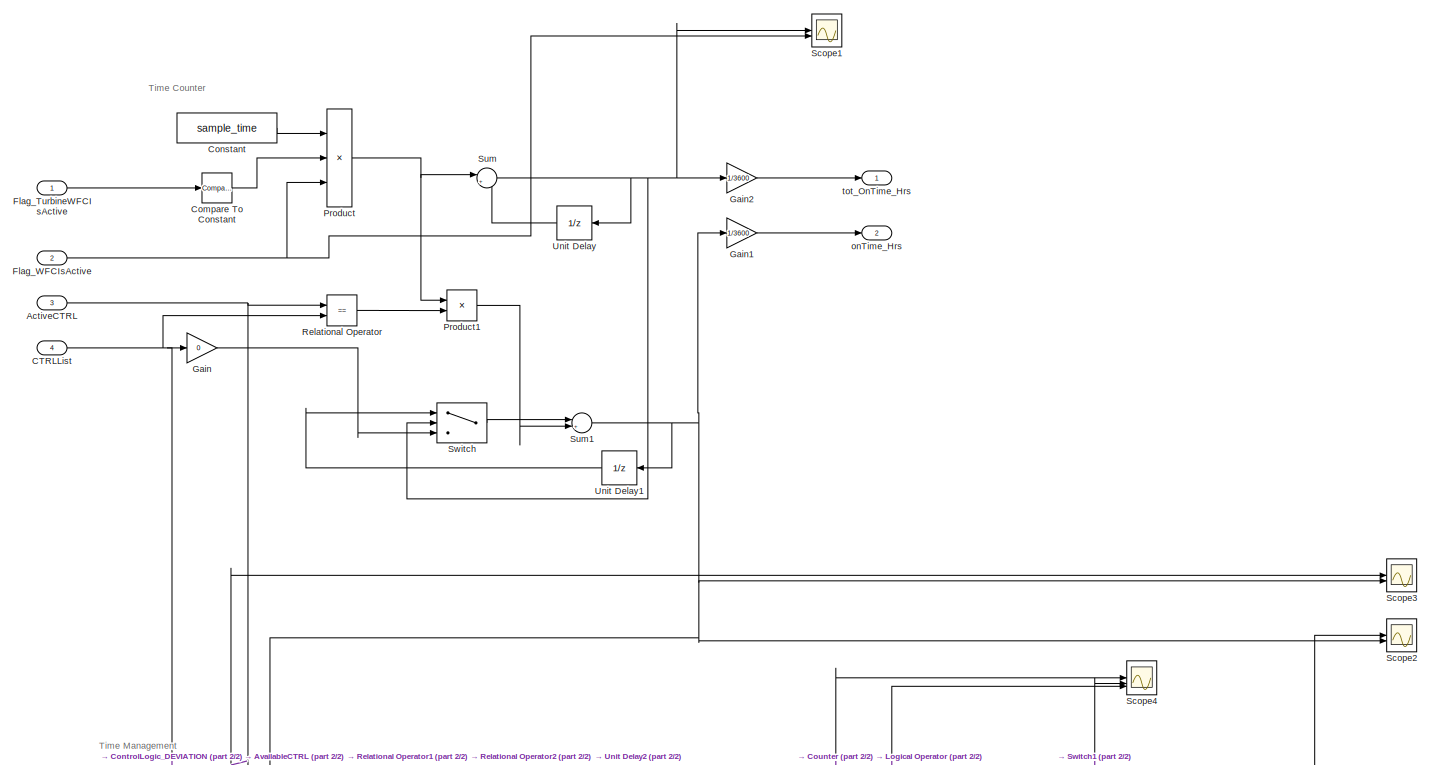
[diagram: Subsystem4/Subsystem/WFC Time Manager - part 1/2, full width, top band]
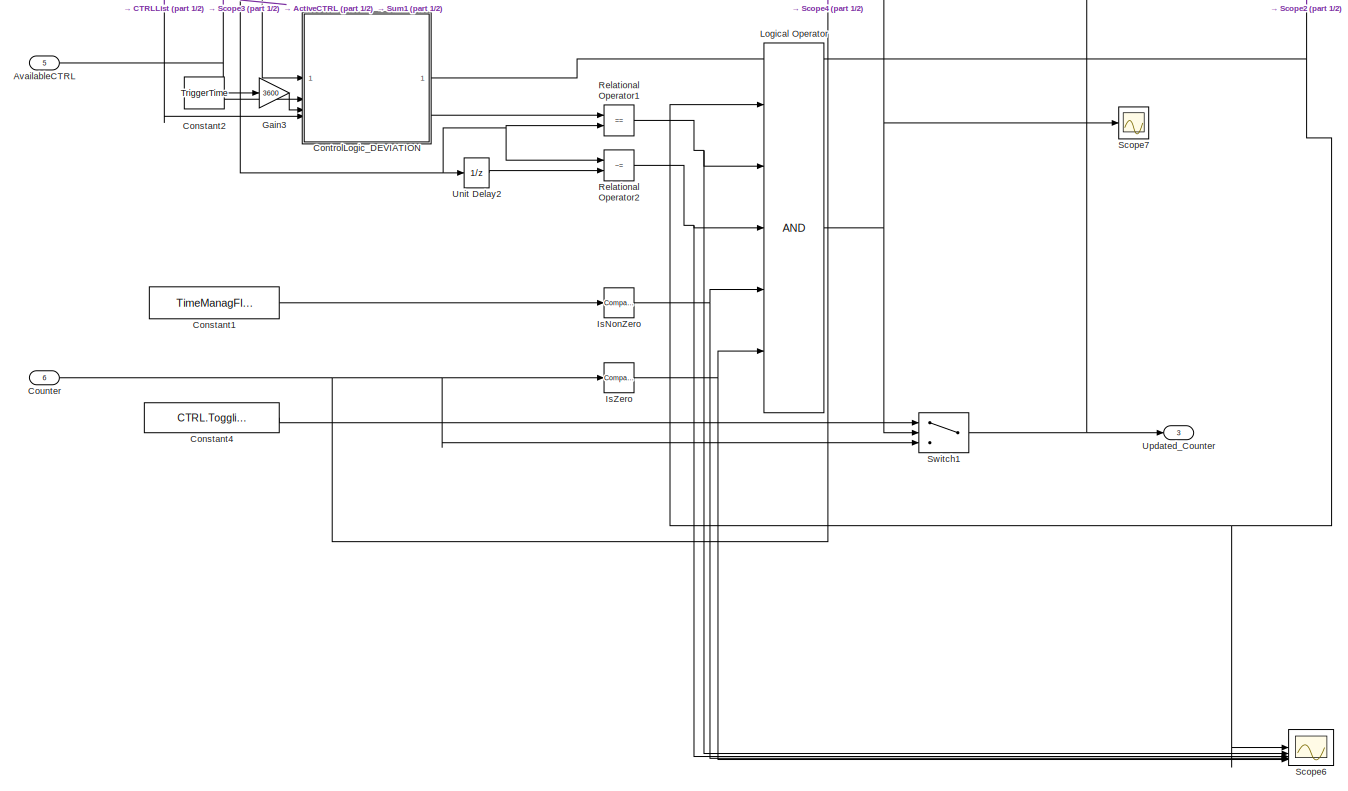
[diagram: Subsystem4/Subsystem/WFC Time Manager - part 2/2, full width, bottom band]
BLOCK [SubSystem] Subsystem4/Subsystem/WFC Time Manager
BLOCK [Inport] Subsystem4/Subsystem/WFC Time Manager/ActiveCTRL
  Port = 3
BLOCK [Inport] Subsystem4/Subsystem/WFC Time Manager/AvailableCTRL
  Port = 5
BLOCK [Inport] Subsystem4/Subsystem/WFC Time Manager/CTRLList
  Port = 4
BLOCK [Reference] Subsystem4/Subsystem/WFC Time Manager/Compare To Constant  REF=simulink/Logic and Bit
Operations/Compare
To Constant
  SourceBlock = simulink/Logic and Bit\nOperations/Compare\nTo Constant
  SourceType = Compare To Constant
BLOCK [Constant] Subsystem4/Subsystem/WFC Time Manager/Constant
  Value = sample_time
BLOCK [Constant] Subsystem4/Subsystem/WFC Time Manager/Constant1
  Value = TimeManagFlag
BLOCK [Constant] Subsystem4/Subsystem/WFC Time Manager/Constant2
  Value = TriggerTime
BLOCK [Constant] Subsystem4/Subsystem/WFC Time Manager/Constant4
  Value = CTRL.TogglingSamples
BLOCK [SubSystem] Subsystem4/Subsystem/WFC Time Manager/ControlLogic_DEVIATION
BLOCK [Inport] Subsystem4/Subsystem/WFC Time Manager/ControlLogic_DEVIATION/AvailableCTRL
  Port = 2
BLOCK [Inport] Subsystem4/Subsystem/WFC Time Manager/ControlLogic_DEVIATION/CTRLList
  Port = 4
BLOCK [Outport] Subsystem4/Subsystem/WFC Time Manager/ControlLogic_DEVIATION/CTRLToSkip
  Port = 2
  VectorParamsAs1DForOutWhenUnconnected = off
BLOCK [Reference] Subsystem4/Subsystem/WFC Time Manager/ControlLogic_DEVIATION/Compare To Zero  REF=simulink/Logic and Bit
Operations/Compare
To Zero
  SourceBlock = simulink/Logic and Bit\nOperations/Compare\nTo Zero
  SourceType = Compare To Zero
BLOCK [Product] Subsystem4/Subsystem/WFC Time Manager/ControlLogic_DEVIATION/Divide
  Inputs = */
BLOCK [Outport] Subsystem4/Subsystem/WFC Time Manager/ControlLogic_DEVIATION/FlagSkip
  VectorParamsAs1DForOutWhenUnconnected = off
BLOCK [RelationalOperator] Subsystem4/Subsystem/WFC Time Manager/ControlLogic_DEVIATION/GT
  InputSameDT = off
  Operator = >
  OutDataTypeStr = boolean
  RndMeth = Simplest
BLOCK [Gain] Subsystem4/Subsystem/WFC Time Manager/ControlLogic_DEVIATION/Gain
  Gain = 1/ReductionFactor
BLOCK [SubSystem] Subsystem4/Subsystem/WFC Time Manager/ControlLogic_DEVIATION/MATLAB Function
  ErrorFcn = Stateflow.Translate.translate
  PermitHierarchicalResolution = ExplicitOnly
  SFBlockType = MATLAB Function
  TreatAsAtomicUnit = on
BLOCK [Demux] Subsystem4/Subsystem/WFC Time Manager/ControlLogic_DEVIATION/MATLAB Function/ Demux 
  Outputs = 1
BLOCK [S-Function] Subsystem4/Subsystem/WFC Time Manager/ControlLogic_DEVIATION/MATLAB Function/ SFunction 
  EnableBusSupport = on
  FunctionName = sf_sfun
  PortCounts = [2 3]
  SFcnIsStateOwnerBlock = off
  SFunctionDeploymentMode = off
  Tag = Stateflow S-Function 12
BLOCK [Terminator] Subsystem4/Subsystem/WFC Time Manager/ControlLogic_DEVIATION/MATLAB Function/ Terminator 
BLOCK [Inport] Subsystem4/Subsystem/WFC Time Manager/ControlLogic_DEVIATION/MATLAB Function/CTRLList
  Port = 2
BLOCK [Outport] Subsystem4/Subsystem/WFC Time Manager/ControlLogic_DEVIATION/MATLAB Function/CTRLToSkip
  VectorParamsAs1DForOutWhenUnconnected = off
BLOCK [Inport] Subsystem4/Subsystem/WFC Time Manager/ControlLogic_DEVIATION/MATLAB Function/CTRLToStopVec
BLOCK [Outport] Subsystem4/Subsystem/WFC Time Manager/ControlLogic_DEVIATION/MATLAB Function/iL
  Port = 2
  VectorParamsAs1DForOutWhenUnconnected = off
BLOCK [SubSystem] Subsystem4/Subsystem/WFC Time Manager/ControlLogic_DEVIATION/MATLAB Function1
  ErrorFcn = Stateflow.Translate.translate
  PermitHierarchicalResolution = ExplicitOnly
  SFBlockType = MATLAB Function
  TreatAsAtomicUnit = on
BLOCK [Demux] Subsystem4/Subsystem/WFC Time Manager/ControlLogic_DEVIATION/MATLAB Function1/ Demux 
  Outputs = 1
BLOCK [S-Function] Subsystem4/Subsystem/WFC Time Manager/ControlLogic_DEVIATION/MATLAB Function1/ SFunction 
  EnableBusSupport = on
  FunctionName = sf_sfun
  PortCounts = [1 2]
  SFcnIsStateOwnerBlock = off
  SFunctionDeploymentMode = off
  Tag = Stateflow S-Function 13
BLOCK [Terminator] Subsystem4/Subsystem/WFC Time Manager/ControlLogic_DEVIATION/MATLAB Function1/ Terminator 
BLOCK [Inport] Subsystem4/Subsystem/WFC Time Manager/ControlLogic_DEVIATION/MATLAB Function1/u1
BLOCK [Outport] Subsystem4/Subsystem/WFC Time Manager/ControlLogic_DEVIATION/MATLAB Function1/y
  VectorParamsAs1DForOutWhenUnconnected = off
BLOCK [SubSystem] Subsystem4/Subsystem/WFC Time Manager/ControlLogic_DEVIATION/MATLAB Function2
  ErrorFcn = Stateflow.Translate.translate
  NameLocation = top
  PermitHierarchicalResolution = ExplicitOnly
  SFBlockType = MATLAB Function
  TreatAsAtomicUnit = on
BLOCK [Demux] Subsystem4/Subsystem/WFC Time Manager/ControlLogic_DEVIATION/MATLAB Function2/ Demux 
  Outputs = 1
BLOCK [S-Function] Subsystem4/Subsystem/WFC Time Manager/ControlLogic_DEVIATION/MATLAB Function2/ SFunction 
  EnableBusSupport = on
  FunctionName = sf_sfun
  PortCounts = [3 2]
  SFcnIsStateOwnerBlock = off
  SFunctionDeploymentMode = off
  Tag = Stateflow S-Function 14
BLOCK [Terminator] Subsystem4/Subsystem/WFC Time Manager/ControlLogic_DEVIATION/MATLAB Function2/ Terminator 
BLOCK [Inport] Subsystem4/Subsystem/WFC Time Manager/ControlLogic_DEVIATION/MATLAB Function2/u1
BLOCK [Inport] Subsystem4/Subsystem/WFC Time Manager/ControlLogic_DEVIATION/MATLAB Function2/u2
  Port = 2
BLOCK [Inport] Subsystem4/Subsystem/WFC Time Manager/ControlLogic_DEVIATION/MATLAB Function2/u3
  Port = 3
BLOCK [Outport] Subsystem4/Subsystem/WFC Time Manager/ControlLogic_DEVIATION/MATLAB Function2/y
  VectorParamsAs1DForOutWhenUnconnected = off
BLOCK [SubSystem] Subsystem4/Subsystem/WFC Time Manager/ControlLogic_DEVIATION/MATLAB Function3
  ErrorFcn = Stateflow.Translate.translate
  PermitHierarchicalResolution = ExplicitOnly
  SFBlockType = MATLAB Function
  TreatAsAtomicUnit = on
BLOCK [Demux] Subsystem4/Subsystem/WFC Time Manager/ControlLogic_DEVIATION/MATLAB Function3/ Demux 
  Outputs = 1
BLOCK [S-Function] Subsystem4/Subsystem/WFC Time Manager/ControlLogic_DEVIATION/MATLAB Function3/ SFunction 
  EnableBusSupport = on
  FunctionName = sf_sfun
  PortCounts = [2 2]
  SFcnIsStateOwnerBlock = off
  SFunctionDeploymentMode = off
  Tag = Stateflow S-Function 15
BLOCK [Terminator] Subsystem4/Subsystem/WFC Time Manager/ControlLogic_DEVIATION/MATLAB Function3/ Terminator 
BLOCK [Inport] Subsystem4/Subsystem/WFC Time Manager/ControlLogic_DEVIATION/MATLAB Function3/u1
BLOCK [Inport] Subsystem4/Subsystem/WFC Time Manager/ControlLogic_DEVIATION/MATLAB Function3/u2
  Port = 2
BLOCK [Outport] Subsystem4/Subsystem/WFC Time Manager/ControlLogic_DEVIATION/MATLAB Function3/y
  VectorParamsAs1DForOutWhenUnconnected = off
BLOCK [Memory] Subsystem4/Subsystem/WFC Time Manager/ControlLogic_DEVIATION/Memory
  NameLocation = top
BLOCK [Memory] Subsystem4/Subsystem/WFC Time Manager/ControlLogic_DEVIATION/Memory1
  NameLocation = top
BLOCK [Memory] Subsystem4/Subsystem/WFC Time Manager/ControlLogic_DEVIATION/Memory2
  InitialCondition = 1
  NameLocation = top
BLOCK [Memory] Subsystem4/Subsystem/WFC Time Manager/ControlLogic_DEVIATION/Memory3
  NameLocation = top
BLOCK [Memory] Subsystem4/Subsystem/WFC Time Manager/ControlLogic_DEVIATION/Memory4
  NameLocation = top
BLOCK [Memory] Subsystem4/Subsystem/WFC Time Manager/ControlLogic_DEVIATION/Memory5
  NameLocation = top
BLOCK [Product] Subsystem4/Subsystem/WFC Time Manager/ControlLogic_DEVIATION/Product
BLOCK [Product] Subsystem4/Subsystem/WFC Time Manager/ControlLogic_DEVIATION/Product2
BLOCK [RelationalOperator] Subsystem4/Subsystem/WFC Time Manager/ControlLogic_DEVIATION/Relational Operator
  InputSameDT = off
  Operator = <=
  OutDataTypeStr = boolean
  RndMeth = Simplest
BLOCK [Scope] Subsystem4/Subsystem/WFC Time Manager/ControlLogic_DEVIATION/Scope
  Floating = off
  NumInputPorts = 4
  ScopeSpecificationString = Simulink.scopes.TimeScopeBlockCfg('CurrentConfiguration', extmgr.ConfigurationSet(extmgr.Configuration('Core','General UI',true),extmgr.Configuration('Core','Source UI',true),extmgr.Configuration('Sources','WiredSimulink',true,'DataLoggingVariableName','ScopeData2'),extmgr.Configuration('Visuals','Time Domain',true,'SerializedDisplays',{struct('MinYLimReal','-1755.45876','MaxYLimReal','2474.10374'...<+1813ch>
BLOCK [Scope] Subsystem4/Subsystem/WFC Time Manager/ControlLogic_DEVIATION/Scope1
  Floating = off
  NumInputPorts = 2
  ScopeSpecificationString = Simulink.scopes.TimeScopeBlockCfg('CurrentConfiguration', extmgr.ConfigurationSet(extmgr.Configuration('Core','General UI',true),extmgr.Configuration('Core','Source UI',true),extmgr.Configuration('Sources','WiredSimulink',true,'DataLoggingVariableName','ScopeData3'),extmgr.Configuration('Visuals','Time Domain',true,'SerializedDisplays',{struct('MinYLimReal','-13.5','MaxYLimReal','121.5','YLabelRea...<+1535ch>
BLOCK [Scope] Subsystem4/Subsystem/WFC Time Manager/ControlLogic_DEVIATION/Scope2
  Floating = off
  NumInputPorts = 2
  ScopeSpecificationString = Simulink.scopes.TimeScopeBlockCfg('CurrentConfiguration', extmgr.ConfigurationSet(extmgr.Configuration('Core','General UI',true),extmgr.Configuration('Core','Source UI',true),extmgr.Configuration('Sources','WiredSimulink',true,'DataLoggingVariableName','ScopeData4'),extmgr.Configuration('Visuals','Time Domain',true,'SerializedDisplays',{struct('MinYLimReal','1.99278','MaxYLimReal','2.28036','YLabe...<+1524ch>
BLOCK [Sum] Subsystem4/Subsystem/WFC Time Manager/ControlLogic_DEVIATION/Subtract
  IconShape = rectangular
  Inputs = +-
BLOCK [Sum] Subsystem4/Subsystem/WFC Time Manager/ControlLogic_DEVIATION/Sum of Elements
  IconShape = rectangular
  Inputs = +
BLOCK [Sum] Subsystem4/Subsystem/WFC Time Manager/ControlLogic_DEVIATION/Sum of Elements1
  IconShape = rectangular
  Inputs = +
BLOCK [Sum] Subsystem4/Subsystem/WFC Time Manager/ControlLogic_DEVIATION/Sum of Elements2
  IconShape = rectangular
  Inputs = +
BLOCK [Sum] Subsystem4/Subsystem/WFC Time Manager/ControlLogic_DEVIATION/Sum of Elements3
  IconShape = rectangular
  Inputs = +
  NameLocation = top
BLOCK [Switch] Subsystem4/Subsystem/WFC Time Manager/ControlLogic_DEVIATION/Switch
  Criteria = u2 ~= 0
  InputSameDT = off
  SaturateOnIntegerOverflow = off
BLOCK [Switch] Subsystem4/Subsystem/WFC Time Manager/ControlLogic_DEVIATION/Switch1
  Criteria = u2 ~= 0
  InputSameDT = off
  SaturateOnIntegerOverflow = off
BLOCK [Switch] Subsystem4/Subsystem/WFC Time Manager/ControlLogic_DEVIATION/Switch2
  Criteria = u2 > Threshold
  InputSameDT = off
  SaturateOnIntegerOverflow = off
BLOCK [Inport] Subsystem4/Subsystem/WFC Time Manager/ControlLogic_DEVIATION/TriggerTime_s
  Port = 3
BLOCK [UnitDelay] Subsystem4/Subsystem/WFC Time Manager/ControlLogic_DEVIATION/Unit Delay3
  HasFrameUpgradeWarning = on
  NameLocation = top
  SampleTime = -1
BLOCK [Inport] Subsystem4/Subsystem/WFC Time Manager/ControlLogic_DEVIATION/onTime_s
BLOCK [Inport] Subsystem4/Subsystem/WFC Time Manager/Counter
  Port = 6
BLOCK [Inport] Subsystem4/Subsystem/WFC Time Manager/Flag_TurbineWFCIsActive
BLOCK [Inport] Subsystem4/Subsystem/WFC Time Manager/Flag_WFCIsActive
  Port = 2
BLOCK [Gain] Subsystem4/Subsystem/WFC Time Manager/Gain
  Gain = 0
BLOCK [Gain] Subsystem4/Subsystem/WFC Time Manager/Gain1
  Gain = 1/3600
BLOCK [Gain] Subsystem4/Subsystem/WFC Time Manager/Gain2
  Gain = 1/3600
BLOCK [Gain] Subsystem4/Subsystem/WFC Time Manager/Gain3
  Gain = 3600
BLOCK [Reference] Subsystem4/Subsystem/WFC Time Manager/IsNonZero  REF=simulink/Logic and Bit
Operations/Compare
To Zero
  SourceBlock = simulink/Logic and Bit\nOperations/Compare\nTo Zero
  SourceType = Compare To Zero
BLOCK [Reference] Subsystem4/Subsystem/WFC Time Manager/IsZero  REF=simulink/Logic and Bit
Operations/Compare
To Zero
  SourceBlock = simulink/Logic and Bit\nOperations/Compare\nTo Zero
  SourceType = Compare To Zero
BLOCK [Logic] Subsystem4/Subsystem/WFC Time Manager/Logical Operator
  AllPortsSameDT = off
  Inputs = 5
  OutDataTypeStr = boolean
BLOCK [Product] Subsystem4/Subsystem/WFC Time Manager/Product
  Inputs = 3
BLOCK [Product] Subsystem4/Subsystem/WFC Time Manager/Product1
BLOCK [RelationalOperator] Subsystem4/Subsystem/WFC Time Manager/Relational Operator
  InputSameDT = off
  Operator = ==
  OutDataTypeStr = boolean
  RndMeth = Simplest
BLOCK [RelationalOperator] Subsystem4/Subsystem/WFC Time Manager/Relational Operator1
  InputSameDT = off
  Operator = ==
  OutDataTypeStr = boolean
  RndMeth = Simplest
BLOCK [RelationalOperator] Subsystem4/Subsystem/WFC Time Manager/Relational Operator2
  InputSameDT = off
  Operator = ~=
  OutDataTypeStr = boolean
  RndMeth = Simplest
BLOCK [Scope] Subsystem4/Subsystem/WFC Time Manager/Scope1
  Floating = off
  NumInputPorts = 2
  ScopeSpecificationString = Simulink.scopes.TimeScopeBlockCfg('CurrentConfiguration', extmgr.ConfigurationSet(extmgr.Configuration('Core','General UI',true),extmgr.Configuration('Core','Source UI',true),extmgr.Configuration('Sources','WiredSimulink',true,'DataLoggingVariableName','ScopeData2'),extmgr.Configuration('Visuals','Time Domain',true,'SerializedDisplays',{struct('MinYLimReal','-3749.9','MaxYLimReal','33750.1','YLabe...<+2066ch>
BLOCK [Scope] Subsystem4/Subsystem/WFC Time Manager/Scope2
  Floating = off
  NumInputPorts = 2
  ScopeSpecificationString = Simulink.scopes.TimeScopeBlockCfg('CurrentConfiguration', extmgr.ConfigurationSet(extmgr.Configuration('Core','General UI',true),extmgr.Configuration('Core','Source UI',true),extmgr.Configuration('Sources','WiredSimulink',true,'DataLoggingVariableName','ScopeData1'),extmgr.Configuration('Visuals','Time Domain',true,'SerializedDisplays',{struct('MinYLimReal','-1312.5625','MaxYLimReal','11813.0625',...<+1672ch>
BLOCK [Scope] Subsystem4/Subsystem/WFC Time Manager/Scope3
  Floating = off
  NumInputPorts = 2
  ScopeSpecificationString = Simulink.scopes.TimeScopeBlockCfg('CurrentConfiguration', extmgr.ConfigurationSet(extmgr.Configuration('Core','General UI',true),extmgr.Configuration('Core','Source UI',true),extmgr.Configuration('Sources','WiredSimulink',true,'DataLoggingVariableName','ScopeData4'),extmgr.Configuration('Visuals','Time Domain',true,'SerializedDisplays',{struct('MinYLimReal','-1312.5625','MaxYLimReal','11813.0625',...<+1672ch>
BLOCK [Scope] Subsystem4/Subsystem/WFC Time Manager/Scope4
  Floating = off
  NumInputPorts = 3
  ScopeSpecificationString = Simulink.scopes.TimeScopeBlockCfg('CurrentConfiguration', extmgr.ConfigurationSet(extmgr.Configuration('Core','General UI',true),extmgr.Configuration('Core','Source UI',true),extmgr.Configuration('Sources','WiredSimulink',true,'DataLoggingVariableName','ScopeData1'),extmgr.Configuration('Visuals','Time Domain',true,'SerializedDisplays',{struct('MinYLimReal','-0.10785','MaxYLimReal','5.03659','YLab...<+1612ch>
BLOCK [Scope] Subsystem4/Subsystem/WFC Time Manager/Scope6
  Floating = off
  NumInputPorts = 5
  ScopeSpecificationString = Simulink.scopes.TimeScopeBlockCfg('CurrentConfiguration', extmgr.ConfigurationSet(extmgr.Configuration('Core','General UI',true),extmgr.Configuration('Core','Source UI',true),extmgr.Configuration('Sources','WiredSimulink',true,'DataLoggingVariableName','ScopeData5'),extmgr.Configuration('Visuals','Time Domain',true,'SerializedDisplays',{struct('MinYLimReal','-0.125','MaxYLimReal','1.125','YLabelRe...<+1641ch>
BLOCK [Scope] Subsystem4/Subsystem/WFC Time Manager/Scope7
  Floating = off
  NumInputPorts = 1
  ScopeSpecificationString = Simulink.scopes.TimeScopeBlockCfg('CurrentConfiguration', extmgr.ConfigurationSet(extmgr.Configuration('Core','General UI',true),extmgr.Configuration('Core','Source UI',true),extmgr.Configuration('Sources','WiredSimulink',true,'DataLoggingVariableName','ScopeData6'),extmgr.Configuration('Visuals','Time Domain',true,'SerializedDisplays',{struct('MinYLimReal','-1.00000','MaxYLimReal','1.00000','YLab...<+1453ch>
BLOCK [Sum] Subsystem4/Subsystem/WFC Time Manager/Sum
  Inputs = |++
BLOCK [Sum] Subsystem4/Subsystem/WFC Time Manager/Sum1
  Inputs = |++
BLOCK [Switch] Subsystem4/Subsystem/WFC Time Manager/Switch
  Criteria = u2 ~= 0
  InputSameDT = off
  SaturateOnIntegerOverflow = off
BLOCK [Switch] Subsystem4/Subsystem/WFC Time Manager/Switch1
  Criteria = u2 ~= 0
  InputSameDT = off
  SaturateOnIntegerOverflow = off
BLOCK [UnitDelay] Subsystem4/Subsystem/WFC Time Manager/Unit Delay
  HasFrameUpgradeWarning = on
  NameLocation = top
  SampleTime = -1
BLOCK [UnitDelay] Subsystem4/Subsystem/WFC Time Manager/Unit Delay1
  HasFrameUpgradeWarning = on
  NameLocation = top
  SampleTime = -1
BLOCK [UnitDelay] Subsystem4/Subsystem/WFC Time Manager/Unit Delay2
  HasFrameUpgradeWarning = on
  SampleTime = -1
BLOCK [Outport] Subsystem4/Subsystem/WFC Time Manager/Updated_Counter
  Port = 3
  VectorParamsAs1DForOutWhenUnconnected = off
BLOCK [Outport] Subsystem4/Subsystem/WFC Time Manager/onTime_Hrs
  Port = 2
  VectorParamsAs1DForOutWhenUnconnected = off
BLOCK [Outport] Subsystem4/Subsystem/WFC Time Manager/tot_OnTime_Hrs
  VectorParamsAs1DForOutWhenUnconnected = off
BLOCK [Outport] Subsystem4/Subsystem/onTime_Hrs
  VectorParamsAs1DForOutWhenUnconnected = off
BLOCK [Outport] Subsystem4/Subsystem/tot_OnTime_Hrs
  Port = 2
  VectorParamsAs1DForOutWhenUnconnected = off
BLOCK [SubSystem] Subsystem4/Subsystem1
BLOCK [Logic] Subsystem4/Subsystem1/Logical Operator
  AllPortsSameDT = off
  OutDataTypeStr = boolean
BLOCK [Logic] Subsystem4/Subsystem1/Logical Operator1
  AllPortsSameDT = off
  OutDataTypeStr = boolean
BLOCK [Logic] Subsystem4/Subsystem1/NOT
  AllPortsSameDT = off
  IconShape = distinctive
  Operator = NOT
  OutDataTypeStr = boolean
BLOCK [Outport] Subsystem4/Subsystem1/Off
  Port = 3
  VectorParamsAs1DForOutWhenUnconnected = off
BLOCK [Inport] Subsystem4/Subsystem1/Sect1
BLOCK [Inport] Subsystem4/Subsystem1/Sect2
  Port = 3
BLOCK [Outport] Subsystem4/Subsystem1/Sector1_Flag
  VectorParamsAs1DForOutWhenUnconnected = off
BLOCK [Outport] Subsystem4/Subsystem1/Sector2_Flag
  Port = 2
  VectorParamsAs1DForOutWhenUnconnected = off
BLOCK [Inport] Subsystem4/Subsystem1/XOR
  Port = 2
BLOCK [SubSystem] Subsystem4/Subsystem3
BLOCK [Outport] Subsystem4/Subsystem3/ActiveCTRL
  Port = 3
  VectorParamsAs1DForOutWhenUnconnected = off
BLOCK [Inport] Subsystem4/Subsystem3/AvailableCTRL
  Port = 2
BLOCK [Inport] Subsystem4/Subsystem3/CTRLList
  Port = 4
BLOCK [Inport] Subsystem4/Subsystem3/FlagTurbineWFCIsOn
BLOCK [Inport] Subsystem4/Subsystem3/FlagWFCIsActive
  Port = 3
BLOCK [Memory] Subsystem4/Subsystem3/Memory1
  NameLocation = top
BLOCK [Memory] Subsystem4/Subsystem3/Memory2
  NameLocation = top
BLOCK [SubSystem] Subsystem4/Subsystem3/Toggler
  ErrorFcn = Stateflow.Translate.translate
  PermitHierarchicalResolution = ExplicitOnly
  SFBlockType = MATLAB Function
  TreatAsAtomicUnit = on
BLOCK [Demux] Subsystem4/Subsystem3/Toggler/ Demux 
  Outputs = 1
BLOCK [S-Function] Subsystem4/Subsystem3/Toggler/ SFunction 
  EnableBusSupport = on
  FunctionName = sf_sfun
  PortCounts = [5 3]
  SFcnIsStateOwnerBlock = off
  SFunctionDeploymentMode = off
  Tag = Stateflow S-Function 16
BLOCK [Terminator] Subsystem4/Subsystem3/Toggler/ Terminator 
BLOCK [Outport] Subsystem4/Subsystem3/Toggler/ActiveCTRL
  VectorParamsAs1DForOutWhenUnconnected = off
BLOCK [Inport] Subsystem4/Subsystem3/Toggler/AvailableCTRL
BLOCK [Inport] Subsystem4/Subsystem3/Toggler/CTRLList
  Port = 2
BLOCK [Outport] Subsystem4/Subsystem3/Toggler/Counter
  Port = 2
  VectorParamsAs1DForOutWhenUnconnected = off
BLOCK [Inport] Subsystem4/Subsystem3/Toggler/OldActiveCTRL
  Port = 3
BLOCK [Inport] Subsystem4/Subsystem3/Toggler/OldCounter
  Port = 4
BLOCK [Inport] Subsystem4/Subsystem3/Toggler/TogglingSamples
  Port = 5
BLOCK [Inport] Subsystem4/Subsystem3/TogglingSamples
  Port = 5
BLOCK [SubSystem] Subsystem4/Subsystem3/WFC Time Manager
BLOCK [Inport] Subsystem4/Subsystem3/WFC Time Manager/ActiveCTRL
  Port = 3
BLOCK [Inport] Subsystem4/Subsystem3/WFC Time Manager/AvailableCTRL
  Port = 5
BLOCK [Inport] Subsystem4/Subsystem3/WFC Time Manager/CTRLList
  Port = 4
BLOCK [Reference] Subsystem4/Subsystem3/WFC Time Manager/Compare To Constant  REF=simulink/Logic and Bit
Operations/Compare
To Constant
  SourceBlock = simulink/Logic and Bit\nOperations/Compare\nTo Constant
  SourceType = Compare To Constant
BLOCK [Constant] Subsystem4/Subsystem3/WFC Time Manager/Constant
  Value = sample_time
BLOCK [Constant] Subsystem4/Subsystem3/WFC Time Manager/Constant1
  Value = TimeManagFlag
BLOCK [Constant] Subsystem4/Subsystem3/WFC Time Manager/Constant2
  Value = TriggerTime
BLOCK [Constant] Subsystem4/Subsystem3/WFC Time Manager/Constant4
  Value = CTRL.TogglingSamples
BLOCK [SubSystem] Subsystem4/Subsystem3/WFC Time Manager/ControlLogic_DEVIATION
BLOCK [Inport] Subsystem4/Subsystem3/WFC Time Manager/ControlLogic_DEVIATION/AvailableCTRL
  Port = 2
BLOCK [Inport] Subsystem4/Subsystem3/WFC Time Manager/ControlLogic_DEVIATION/CTRLList
  Port = 4
BLOCK [Outport] Subsystem4/Subsystem3/WFC Time Manager/ControlLogic_DEVIATION/CTRLToSkip
  Port = 2
  VectorParamsAs1DForOutWhenUnconnected = off
BLOCK [Reference] Subsystem4/Subsystem3/WFC Time Manager/ControlLogic_DEVIATION/Compare To Zero  REF=simulink/Logic and Bit
Operations/Compare
To Zero
  SourceBlock = simulink/Logic and Bit\nOperations/Compare\nTo Zero
  SourceType = Compare To Zero
BLOCK [Product] Subsystem4/Subsystem3/WFC Time Manager/ControlLogic_DEVIATION/Divide
  Inputs = */
BLOCK [Outport] Subsystem4/Subsystem3/WFC Time Manager/ControlLogic_DEVIATION/FlagSkip
  VectorParamsAs1DForOutWhenUnconnected = off
BLOCK [RelationalOperator] Subsystem4/Subsystem3/WFC Time Manager/ControlLogic_DEVIATION/GT
  InputSameDT = off
  Operator = >
  OutDataTypeStr = boolean
  RndMeth = Simplest
BLOCK [Gain] Subsystem4/Subsystem3/WFC Time Manager/ControlLogic_DEVIATION/Gain
  Gain = 1/ReductionFactor
BLOCK [SubSystem] Subsystem4/Subsystem3/WFC Time Manager/ControlLogic_DEVIATION/MATLAB Function
  ErrorFcn = Stateflow.Translate.translate
  PermitHierarchicalResolution = ExplicitOnly
  SFBlockType = MATLAB Function
  TreatAsAtomicUnit = on
BLOCK [Demux] Subsystem4/Subsystem3/WFC Time Manager/ControlLogic_DEVIATION/MATLAB Function/ Demux 
  Outputs = 1
BLOCK [S-Function] Subsystem4/Subsystem3/WFC Time Manager/ControlLogic_DEVIATION/MATLAB Function/ SFunction 
  EnableBusSupport = on
  FunctionName = sf_sfun
  PortCounts = [2 3]
  SFcnIsStateOwnerBlock = off
  SFunctionDeploymentMode = off
  Tag = Stateflow S-Function 17
BLOCK [Terminator] Subsystem4/Subsystem3/WFC Time Manager/ControlLogic_DEVIATION/MATLAB Function/ Terminator 
BLOCK [Inport] Subsystem4/Subsystem3/WFC Time Manager/ControlLogic_DEVIATION/MATLAB Function/CTRLList
  Port = 2
BLOCK [Outport] Subsystem4/Subsystem3/WFC Time Manager/ControlLogic_DEVIATION/MATLAB Function/CTRLToSkip
  VectorParamsAs1DForOutWhenUnconnected = off
BLOCK [Inport] Subsystem4/Subsystem3/WFC Time Manager/ControlLogic_DEVIATION/MATLAB Function/CTRLToStopVec
BLOCK [Outport] Subsystem4/Subsystem3/WFC Time Manager/ControlLogic_DEVIATION/MATLAB Function/iL
  Port = 2
  VectorParamsAs1DForOutWhenUnconnected = off
BLOCK [SubSystem] Subsystem4/Subsystem3/WFC Time Manager/ControlLogic_DEVIATION/MATLAB Function1
  ErrorFcn = Stateflow.Translate.translate
  PermitHierarchicalResolution = ExplicitOnly
  SFBlockType = MATLAB Function
  TreatAsAtomicUnit = on
BLOCK [Demux] Subsystem4/Subsystem3/WFC Time Manager/ControlLogic_DEVIATION/MATLAB Function1/ Demux 
  Outputs = 1
BLOCK [S-Function] Subsystem4/Subsystem3/WFC Time Manager/ControlLogic_DEVIATION/MATLAB Function1/ SFunction 
  EnableBusSupport = on
  FunctionName = sf_sfun
  PortCounts = [1 2]
  SFcnIsStateOwnerBlock = off
  SFunctionDeploymentMode = off
  Tag = Stateflow S-Function 18
BLOCK [Terminator] Subsystem4/Subsystem3/WFC Time Manager/ControlLogic_DEVIATION/MATLAB Function1/ Terminator 
BLOCK [Inport] Subsystem4/Subsystem3/WFC Time Manager/ControlLogic_DEVIATION/MATLAB Function1/u1
BLOCK [Outport] Subsystem4/Subsystem3/WFC Time Manager/ControlLogic_DEVIATION/MATLAB Function1/y
  VectorParamsAs1DForOutWhenUnconnected = off
BLOCK [SubSystem] Subsystem4/Subsystem3/WFC Time Manager/ControlLogic_DEVIATION/MATLAB Function2
  ErrorFcn = Stateflow.Translate.translate
  NameLocation = top
  PermitHierarchicalResolution = ExplicitOnly
  SFBlockType = MATLAB Function
  TreatAsAtomicUnit = on
BLOCK [Demux] Subsystem4/Subsystem3/WFC Time Manager/ControlLogic_DEVIATION/MATLAB Function2/ Demux 
  Outputs = 1
BLOCK [S-Function] Subsystem4/Subsystem3/WFC Time Manager/ControlLogic_DEVIATION/MATLAB Function2/ SFunction 
  EnableBusSupport = on
  FunctionName = sf_sfun
  PortCounts = [3 2]
  SFcnIsStateOwnerBlock = off
  SFunctionDeploymentMode = off
  Tag = Stateflow S-Function 19
BLOCK [Terminator] Subsystem4/Subsystem3/WFC Time Manager/ControlLogic_DEVIATION/MATLAB Function2/ Terminator 
BLOCK [Inport] Subsystem4/Subsystem3/WFC Time Manager/ControlLogic_DEVIATION/MATLAB Function2/u1
BLOCK [Inport] Subsystem4/Subsystem3/WFC Time Manager/ControlLogic_DEVIATION/MATLAB Function2/u2
  Port = 2
BLOCK [Inport] Subsystem4/Subsystem3/WFC Time Manager/ControlLogic_DEVIATION/MATLAB Function2/u3
  Port = 3
BLOCK [Outport] Subsystem4/Subsystem3/WFC Time Manager/ControlLogic_DEVIATION/MATLAB Function2/y
  VectorParamsAs1DForOutWhenUnconnected = off
BLOCK [SubSystem] Subsystem4/Subsystem3/WFC Time Manager/ControlLogic_DEVIATION/MATLAB Function3
  ErrorFcn = Stateflow.Translate.translate
  PermitHierarchicalResolution = ExplicitOnly
  SFBlockType = MATLAB Function
  TreatAsAtomicUnit = on
BLOCK [Demux] Subsystem4/Subsystem3/WFC Time Manager/ControlLogic_DEVIATION/MATLAB Function3/ Demux 
  Outputs = 1
BLOCK [S-Function] Subsystem4/Subsystem3/WFC Time Manager/ControlLogic_DEVIATION/MATLAB Function3/ SFunction 
  EnableBusSupport = on
  FunctionName = sf_sfun
  PortCounts = [2 2]
  SFcnIsStateOwnerBlock = off
  SFunctionDeploymentMode = off
  Tag = Stateflow S-Function 20
BLOCK [Terminator] Subsystem4/Subsystem3/WFC Time Manager/ControlLogic_DEVIATION/MATLAB Function3/ Terminator 
BLOCK [Inport] Subsystem4/Subsystem3/WFC Time Manager/ControlLogic_DEVIATION/MATLAB Function3/u1
BLOCK [Inport] Subsystem4/Subsystem3/WFC Time Manager/ControlLogic_DEVIATION/MATLAB Function3/u2
  Port = 2
BLOCK [Outport] Subsystem4/Subsystem3/WFC Time Manager/ControlLogic_DEVIATION/MATLAB Function3/y
  VectorParamsAs1DForOutWhenUnconnected = off
BLOCK [Memory] Subsystem4/Subsystem3/WFC Time Manager/ControlLogic_DEVIATION/Memory
  NameLocation = top
BLOCK [Memory] Subsystem4/Subsystem3/WFC Time Manager/ControlLogic_DEVIATION/Memory1
  NameLocation = top
BLOCK [Memory] Subsystem4/Subsystem3/WFC Time Manager/ControlLogic_DEVIATION/Memory2
  InitialCondition = 1
  NameLocation = top
BLOCK [Memory] Subsystem4/Subsystem3/WFC Time Manager/ControlLogic_DEVIATION/Memory3
  NameLocation = top
BLOCK [Memory] Subsystem4/Subsystem3/WFC Time Manager/ControlLogic_DEVIATION/Memory4
  NameLocation = top
BLOCK [Memory] Subsystem4/Subsystem3/WFC Time Manager/ControlLogic_DEVIATION/Memory5
  NameLocation = top
BLOCK [Product] Subsystem4/Subsystem3/WFC Time Manager/ControlLogic_DEVIATION/Product
BLOCK [Product] Subsystem4/Subsystem3/WFC Time Manager/ControlLogic_DEVIATION/Product2
BLOCK [RelationalOperator] Subsystem4/Subsystem3/WFC Time Manager/ControlLogic_DEVIATION/Relational Operator
  InputSameDT = off
  Operator = <=
  OutDataTypeStr = boolean
  RndMeth = Simplest
BLOCK [Scope] Subsystem4/Subsystem3/WFC Time Manager/ControlLogic_DEVIATION/Scope
  Floating = off
  NumInputPorts = 4
  ScopeSpecificationString = Simulink.scopes.TimeScopeBlockCfg('CurrentConfiguration', extmgr.ConfigurationSet(extmgr.Configuration('Core','General UI',true),extmgr.Configuration('Core','Source UI',true),extmgr.Configuration('Sources','WiredSimulink',true,'DataLoggingVariableName','ScopeData2'),extmgr.Configuration('Visuals','Time Domain',true,'SerializedDisplays',{struct('MinYLimReal','-1755.45876','MaxYLimReal','2474.10374'...<+1813ch>
BLOCK [Scope] Subsystem4/Subsystem3/WFC Time Manager/ControlLogic_DEVIATION/Scope1
  Floating = off
  NumInputPorts = 2
  ScopeSpecificationString = Simulink.scopes.TimeScopeBlockCfg('CurrentConfiguration', extmgr.ConfigurationSet(extmgr.Configuration('Core','General UI',true),extmgr.Configuration('Core','Source UI',true),extmgr.Configuration('Sources','WiredSimulink',true,'DataLoggingVariableName','ScopeData3'),extmgr.Configuration('Visuals','Time Domain',true,'SerializedDisplays',{struct('MinYLimReal','-13.5','MaxYLimReal','121.5','YLabelRea...<+1535ch>
BLOCK [Scope] Subsystem4/Subsystem3/WFC Time Manager/ControlLogic_DEVIATION/Scope2
  Floating = off
  NumInputPorts = 2
  ScopeSpecificationString = Simulink.scopes.TimeScopeBlockCfg('CurrentConfiguration', extmgr.ConfigurationSet(extmgr.Configuration('Core','General UI',true),extmgr.Configuration('Core','Source UI',true),extmgr.Configuration('Sources','WiredSimulink',true,'DataLoggingVariableName','ScopeData4'),extmgr.Configuration('Visuals','Time Domain',true,'SerializedDisplays',{struct('MinYLimReal','1.99278','MaxYLimReal','2.28036','YLabe...<+1524ch>
BLOCK [Sum] Subsystem4/Subsystem3/WFC Time Manager/ControlLogic_DEVIATION/Subtract
  IconShape = rectangular
  Inputs = +-
BLOCK [Sum] Subsystem4/Subsystem3/WFC Time Manager/ControlLogic_DEVIATION/Sum of Elements
  IconShape = rectangular
  Inputs = +
BLOCK [Sum] Subsystem4/Subsystem3/WFC Time Manager/ControlLogic_DEVIATION/Sum of Elements1
  IconShape = rectangular
  Inputs = +
BLOCK [Sum] Subsystem4/Subsystem3/WFC Time Manager/ControlLogic_DEVIATION/Sum of Elements2
  IconShape = rectangular
  Inputs = +
BLOCK [Sum] Subsystem4/Subsystem3/WFC Time Manager/ControlLogic_DEVIATION/Sum of Elements3
  IconShape = rectangular
  Inputs = +
  NameLocation = top
BLOCK [Switch] Subsystem4/Subsystem3/WFC Time Manager/ControlLogic_DEVIATION/Switch
  Criteria = u2 ~= 0
  InputSameDT = off
  SaturateOnIntegerOverflow = off
BLOCK [Switch] Subsystem4/Subsystem3/WFC Time Manager/ControlLogic_DEVIATION/Switch1
  Criteria = u2 ~= 0
  InputSameDT = off
  SaturateOnIntegerOverflow = off
BLOCK [Switch] Subsystem4/Subsystem3/WFC Time Manager/ControlLogic_DEVIATION/Switch2
  Criteria = u2 > Threshold
  InputSameDT = off
  SaturateOnIntegerOverflow = off
BLOCK [Inport] Subsystem4/Subsystem3/WFC Time Manager/ControlLogic_DEVIATION/TriggerTime_s
  Port = 3
BLOCK [UnitDelay] Subsystem4/Subsystem3/WFC Time Manager/ControlLogic_DEVIATION/Unit Delay3
  HasFrameUpgradeWarning = on
  NameLocation = top
  SampleTime = -1
BLOCK [Inport] Subsystem4/Subsystem3/WFC Time Manager/ControlLogic_DEVIATION/onTime_s
BLOCK [Inport] Subsystem4/Subsystem3/WFC Time Manager/Counter
  Port = 6
BLOCK [Inport] Subsystem4/Subsystem3/WFC Time Manager/Flag_TurbineWFCIsActive
BLOCK [Inport] Subsystem4/Subsystem3/WFC Time Manager/Flag_WFCIsActive
  Port = 2
BLOCK [Gain] Subsystem4/Subsystem3/WFC Time Manager/Gain
  Gain = 0
BLOCK [Gain] Subsystem4/Subsystem3/WFC Time Manager/Gain1
  Gain = 1/3600
BLOCK [Gain] Subsystem4/Subsystem3/WFC Time Manager/Gain2
  Gain = 1/3600
BLOCK [Gain] Subsystem4/Subsystem3/WFC Time Manager/Gain3
  Gain = 3600
BLOCK [Reference] Subsystem4/Subsystem3/WFC Time Manager/IsNonZero  REF=simulink/Logic and Bit
Operations/Compare
To Zero
  SourceBlock = simulink/Logic and Bit\nOperations/Compare\nTo Zero
  SourceType = Compare To Zero
BLOCK [Reference] Subsystem4/Subsystem3/WFC Time Manager/IsZero  REF=simulink/Logic and Bit
Operations/Compare
To Zero
  SourceBlock = simulink/Logic and Bit\nOperations/Compare\nTo Zero
  SourceType = Compare To Zero
BLOCK [Logic] Subsystem4/Subsystem3/WFC Time Manager/Logical Operator
  AllPortsSameDT = off
  Inputs = 5
  OutDataTypeStr = boolean
BLOCK [Product] Subsystem4/Subsystem3/WFC Time Manager/Product
  Inputs = 3
BLOCK [Product] Subsystem4/Subsystem3/WFC Time Manager/Product1
BLOCK [RelationalOperator] Subsystem4/Subsystem3/WFC Time Manager/Relational Operator
  InputSameDT = off
  Operator = ==
  OutDataTypeStr = boolean
  RndMeth = Simplest
BLOCK [RelationalOperator] Subsystem4/Subsystem3/WFC Time Manager/Relational Operator1
  InputSameDT = off
  Operator = ==
  OutDataTypeStr = boolean
  RndMeth = Simplest
BLOCK [RelationalOperator] Subsystem4/Subsystem3/WFC Time Manager/Relational Operator2
  InputSameDT = off
  Operator = ~=
  OutDataTypeStr = boolean
  RndMeth = Simplest
BLOCK [Scope] Subsystem4/Subsystem3/WFC Time Manager/Scope1
  Floating = off
  NumInputPorts = 2
  ScopeSpecificationString = Simulink.scopes.TimeScopeBlockCfg('CurrentConfiguration', extmgr.ConfigurationSet(extmgr.Configuration('Core','General UI',true),extmgr.Configuration('Core','Source UI',true),extmgr.Configuration('Sources','WiredSimulink',true,'DataLoggingVariableName','ScopeData2'),extmgr.Configuration('Visuals','Time Domain',true,'SerializedDisplays',{struct('MinYLimReal','-3749.9','MaxYLimReal','33750.1','YLabe...<+2066ch>
BLOCK [Scope] Subsystem4/Subsystem3/WFC Time Manager/Scope2
  Floating = off
  NumInputPorts = 2
  ScopeSpecificationString = Simulink.scopes.TimeScopeBlockCfg('CurrentConfiguration', extmgr.ConfigurationSet(extmgr.Configuration('Core','General UI',true),extmgr.Configuration('Core','Source UI',true),extmgr.Configuration('Sources','WiredSimulink',true,'DataLoggingVariableName','ScopeData1'),extmgr.Configuration('Visuals','Time Domain',true,'SerializedDisplays',{struct('MinYLimReal','-1312.5625','MaxYLimReal','11813.0625',...<+1672ch>
BLOCK [Scope] Subsystem4/Subsystem3/WFC Time Manager/Scope3
  Floating = off
  NumInputPorts = 2
  ScopeSpecificationString = Simulink.scopes.TimeScopeBlockCfg('CurrentConfiguration', extmgr.ConfigurationSet(extmgr.Configuration('Core','General UI',true),extmgr.Configuration('Core','Source UI',true),extmgr.Configuration('Sources','WiredSimulink',true,'DataLoggingVariableName','ScopeData4'),extmgr.Configuration('Visuals','Time Domain',true,'SerializedDisplays',{struct('MinYLimReal','-1312.5625','MaxYLimReal','11813.0625',...<+1672ch>
BLOCK [Scope] Subsystem4/Subsystem3/WFC Time Manager/Scope4
  Floating = off
  NumInputPorts = 3
  ScopeSpecificationString = Simulink.scopes.TimeScopeBlockCfg('CurrentConfiguration', extmgr.ConfigurationSet(extmgr.Configuration('Core','General UI',true),extmgr.Configuration('Core','Source UI',true),extmgr.Configuration('Sources','WiredSimulink',true,'DataLoggingVariableName','ScopeData1'),extmgr.Configuration('Visuals','Time Domain',true,'SerializedDisplays',{struct('MinYLimReal','-0.10785','MaxYLimReal','5.03659','YLab...<+1612ch>
BLOCK [Scope] Subsystem4/Subsystem3/WFC Time Manager/Scope6
  Floating = off
  NumInputPorts = 5
  ScopeSpecificationString = Simulink.scopes.TimeScopeBlockCfg('CurrentConfiguration', extmgr.ConfigurationSet(extmgr.Configuration('Core','General UI',true),extmgr.Configuration('Core','Source UI',true),extmgr.Configuration('Sources','WiredSimulink',true,'DataLoggingVariableName','ScopeData5'),extmgr.Configuration('Visuals','Time Domain',true,'SerializedDisplays',{struct('MinYLimReal','-0.125','MaxYLimReal','1.125','YLabelRe...<+1641ch>
BLOCK [Scope] Subsystem4/Subsystem3/WFC Time Manager/Scope7
  Floating = off
  NumInputPorts = 1
  ScopeSpecificationString = Simulink.scopes.TimeScopeBlockCfg('CurrentConfiguration', extmgr.ConfigurationSet(extmgr.Configuration('Core','General UI',true),extmgr.Configuration('Core','Source UI',true),extmgr.Configuration('Sources','WiredSimulink',true,'DataLoggingVariableName','ScopeData6'),extmgr.Configuration('Visuals','Time Domain',true,'SerializedDisplays',{struct('MinYLimReal','-1.00000','MaxYLimReal','1.00000','YLab...<+1453ch>
BLOCK [Sum] Subsystem4/Subsystem3/WFC Time Manager/Sum
  Inputs = |++
BLOCK [Sum] Subsystem4/Subsystem3/WFC Time Manager/Sum1
  Inputs = |++
BLOCK [Switch] Subsystem4/Subsystem3/WFC Time Manager/Switch
  Criteria = u2 ~= 0
  InputSameDT = off
  SaturateOnIntegerOverflow = off
BLOCK [Switch] Subsystem4/Subsystem3/WFC Time Manager/Switch1
  Criteria = u2 ~= 0
  InputSameDT = off
  SaturateOnIntegerOverflow = off
BLOCK [UnitDelay] Subsystem4/Subsystem3/WFC Time Manager/Unit Delay
  HasFrameUpgradeWarning = on
  NameLocation = top
  SampleTime = -1
BLOCK [UnitDelay] Subsystem4/Subsystem3/WFC Time Manager/Unit Delay1
  HasFrameUpgradeWarning = on
  NameLocation = top
  SampleTime = -1
BLOCK [UnitDelay] Subsystem4/Subsystem3/WFC Time Manager/Unit Delay2
  HasFrameUpgradeWarning = on
  SampleTime = -1
BLOCK [Outport] Subsystem4/Subsystem3/WFC Time Manager/Updated_Counter
  Port = 3
  VectorParamsAs1DForOutWhenUnconnected = off
BLOCK [Outport] Subsystem4/Subsystem3/WFC Time Manager/onTime_Hrs
  Port = 2
  VectorParamsAs1DForOutWhenUnconnected = off
BLOCK [Outport] Subsystem4/Subsystem3/WFC Time Manager/tot_OnTime_Hrs
  VectorParamsAs1DForOutWhenUnconnected = off
BLOCK [Outport] Subsystem4/Subsystem3/onTime_Hrs
  VectorParamsAs1DForOutWhenUnconnected = off
BLOCK [Outport] Subsystem4/Subsystem3/tot_OnTime_Hrs
  Port = 2
  VectorParamsAs1DForOutWhenUnconnected = off
BLOCK [Terminator] Subsystem4/Terminator
BLOCK [Inport] Subsystem4/TogglingSamples
  Port = 7
BLOCK [Outport] Subsystem4/onTime_Hrs
  VectorParamsAs1DForOutWhenUnconnected = off
BLOCK [Outport] Subsystem4/tot_OnTime_Hrs
  Port = 2
  VectorParamsAs1DForOutWhenUnconnected = off
BLOCK [Sum] Sum
  Inputs = |++
BLOCK [Concatenate] Vector Concatenate
  NumInputs = 4
BLOCK [Concatenate] Vector Concatenate1
  NumInputs = 4
BLOCK [SubSystem] WDirCheck
BLOCK [Reference] WDirCheck/Compare To Constant  REF=simulink/Logic and Bit
Operations/Compare
To Constant
  SourceBlock = simulink/Logic and Bit\nOperations/Compare\nTo Constant
  SourceType = Compare To Constant
BLOCK [Delay] WDirCheck/Delay
  DelayLength = 1
  InitialCondition = 0
  InputPortMap = u0
BLOCK [Ground] WDirCheck/Ground
BLOCK [Inport] WDirCheck/In1
BLOCK [Outport] WDirCheck/Out1
  VectorParamsAs1DForOutWhenUnconnected = off
BLOCK [Reference] WDirCheck/Sample and Hold  REF=dspsigops/Sample
and Hold
  NameLocation = top
  SourceBlock = dspsigops/Sample\nand Hold
  SourceType = Sample and Hold
BLOCK [Scope] WDirCheck/Scope
  Floating = off
  NumInputPorts = 3
  ScopeSpecificationString = Simulink.scopes.TimeScopeBlockCfg('CurrentConfiguration', extmgr.ConfigurationSet(extmgr.Configuration('Core','General UI',true),extmgr.Configuration('Core','Source UI',true),extmgr.Configuration('Sources','WiredSimulink',true,'DataLoggingVariableName','ScopeData1'),extmgr.Configuration('Visuals','Time Domain',true,'SerializedDisplays',{struct('MinYLimReal','165.53389','MaxYLimReal','199.16327','Y...<+1526ch>
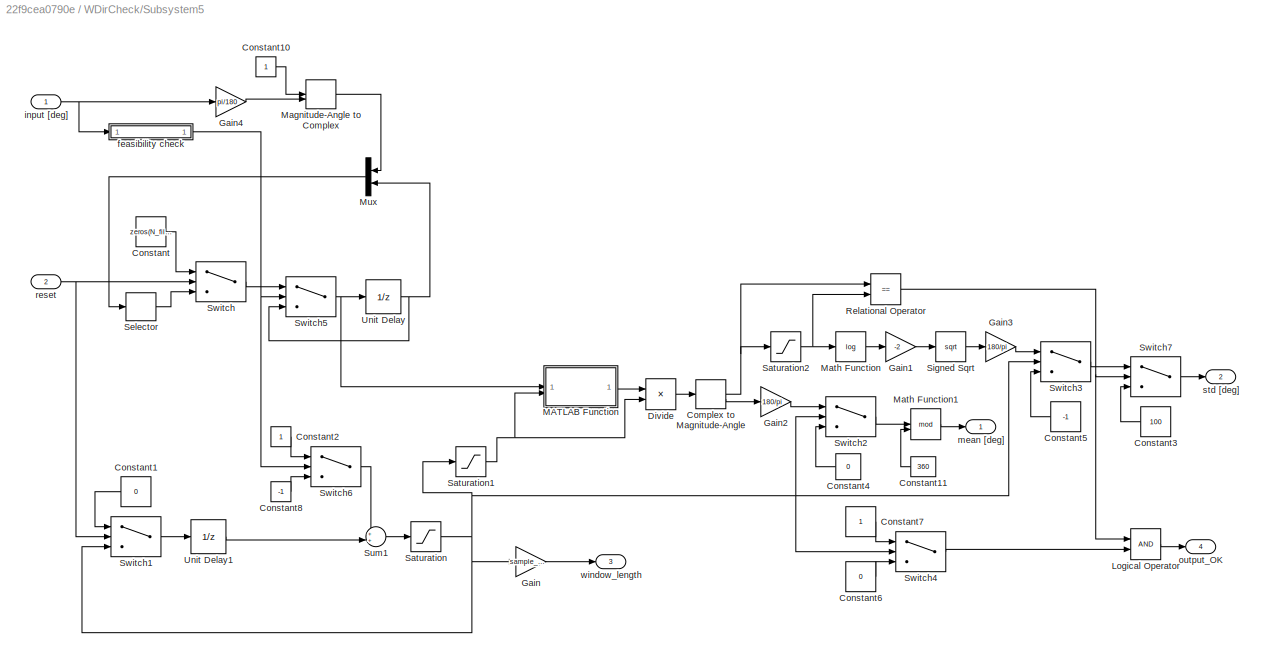
BLOCK [SubSystem] WDirCheck/Subsystem5
BLOCK [ComplexToMagnitudeAngle] WDirCheck/Subsystem5/Complex to Magnitude-Angle
BLOCK [Constant] WDirCheck/Subsystem5/Constant
  SampleTime = sample_time
  Value = zeros(N_filt,1) + j*1e-13
BLOCK [Constant] WDirCheck/Subsystem5/Constant1
  NameLocation = top
  SampleTime = sample_time
  Value = 0
BLOCK [Constant] WDirCheck/Subsystem5/Constant10
  SampleTime = sample_time
BLOCK [Constant] WDirCheck/Subsystem5/Constant11
  NameLocation = top
  Value = 360
BLOCK [Constant] WDirCheck/Subsystem5/Constant2
  SampleTime = sample_time
BLOCK [Constant] WDirCheck/Subsystem5/Constant3
  NameLocation = top
  SampleTime = sample_time
  Value = 100
BLOCK [Constant] WDirCheck/Subsystem5/Constant4
  NameLocation = top
  SampleTime = sample_time
  Value = 0
BLOCK [Constant] WDirCheck/Subsystem5/Constant5
  NameLocation = top
  SampleTime = sample_time
  Value = -1
BLOCK [Constant] WDirCheck/Subsystem5/Constant6
  OutDataTypeStr = boolean
  SampleTime = sample_time
  Value = 0
BLOCK [Constant] WDirCheck/Subsystem5/Constant7
  OutDataTypeStr = boolean
  SampleTime = sample_time
BLOCK [Constant] WDirCheck/Subsystem5/Constant8
  SampleTime = sample_time
  Value = -1
BLOCK [Product] WDirCheck/Subsystem5/Divide
  Inputs = */
BLOCK [Gain] WDirCheck/Subsystem5/Gain
  Gain = sample_time
BLOCK [Gain] WDirCheck/Subsystem5/Gain1
  Gain = -2
BLOCK [Gain] WDirCheck/Subsystem5/Gain2
  Gain = 180/pi
BLOCK [Gain] WDirCheck/Subsystem5/Gain3
  Gain = 180/pi
BLOCK [Gain] WDirCheck/Subsystem5/Gain4
  Gain = pi/180
BLOCK [Logic] WDirCheck/Subsystem5/Logical Operator
  AllPortsSameDT = off
  OutDataTypeStr = boolean
BLOCK [SubSystem] WDirCheck/Subsystem5/MATLAB Function
  ErrorFcn = Stateflow.Translate.translate
  PermitHierarchicalResolution = ExplicitOnly
  SFBlockType = MATLAB Function
  TreatAsAtomicUnit = on
BLOCK [Demux] WDirCheck/Subsystem5/MATLAB Function/ Demux 
  Outputs = 1
BLOCK [S-Function] WDirCheck/Subsystem5/MATLAB Function/ SFunction 
  EnableBusSupport = on
  FunctionName = sf_sfun
  PortCounts = [2 2]
  SFcnIsStateOwnerBlock = off
  SFunctionDeploymentMode = off
  Tag = Stateflow S-Function 7
BLOCK [Terminator] WDirCheck/Subsystem5/MATLAB Function/ Terminator 
BLOCK [Inport] WDirCheck/Subsystem5/MATLAB Function/N
  Port = 2
BLOCK [Outport] WDirCheck/Subsystem5/MATLAB Function/s
BLOCK [Inport] WDirCheck/Subsystem5/MATLAB Function/u
BLOCK [MagnitudeAngleToComplex] WDirCheck/Subsystem5/Magnitude-Angle to Complex
BLOCK [Math] WDirCheck/Subsystem5/Math Function
  Operator = log
  SignedPower = on
BLOCK [Math] WDirCheck/Subsystem5/Math Function1
  Operator = mod
  SignedPower = on
BLOCK [Mux] WDirCheck/Subsystem5/Mux
  DisplayOption = bar
  Inputs = 2
  NameLocation = top
BLOCK [RelationalOperator] WDirCheck/Subsystem5/Relational Operator
  InputSameDT = off
  Operator = ==
  OutDataTypeStr = boolean
  RndMeth = Simplest
BLOCK [Saturate] WDirCheck/Subsystem5/Saturation
  LowerLimit = 0
  UpperLimit = N_filt
BLOCK [Saturate] WDirCheck/Subsystem5/Saturation1
  LowerLimit = lower_limit
  UpperLimit = N_filt
BLOCK [Saturate] WDirCheck/Subsystem5/Saturation2
  LowerLimit = 1e-7
  UpperLimit = 1
BLOCK [Selector] WDirCheck/Subsystem5/Selector
  IndexOptions = Index vector (dialog)
  Indices = 1:N_filt
  InputPortWidth = N_filt+1
  OutputSizes = 1
BLOCK [Sqrt] WDirCheck/Subsystem5/Signed Sqrt
BLOCK [Sum] WDirCheck/Subsystem5/Sum1
  Inputs = ++|
BLOCK [Switch] WDirCheck/Subsystem5/Switch
  Criteria = u2 ~= 0
  InputSameDT = off
  SaturateOnIntegerOverflow = off
BLOCK [Switch] WDirCheck/Subsystem5/Switch1
  Criteria = u2 ~= 0
  InputSameDT = off
  SaturateOnIntegerOverflow = off
BLOCK [Switch] WDirCheck/Subsystem5/Switch2
  InputSameDT = off
  SaturateOnIntegerOverflow = off
  Threshold = lower_limit
BLOCK [Switch] WDirCheck/Subsystem5/Switch3
  InputSameDT = off
  SaturateOnIntegerOverflow = off
  Threshold = lower_limit
BLOCK [Switch] WDirCheck/Subsystem5/Switch4
  InputSameDT = off
  SaturateOnIntegerOverflow = off
  Threshold = lower_limit
BLOCK [Switch] WDirCheck/Subsystem5/Switch5
  Criteria = u2 ~= 0
  InputSameDT = off
  SaturateOnIntegerOverflow = off
BLOCK [Switch] WDirCheck/Subsystem5/Switch6
  Criteria = u2 ~= 0
  InputSameDT = off
  SaturateOnIntegerOverflow = off
BLOCK [Switch] WDirCheck/Subsystem5/Switch7
  Criteria = u2 ~= 0
  InputSameDT = off
  SaturateOnIntegerOverflow = off
  Threshold = lower_limit
BLOCK [UnitDelay] WDirCheck/Subsystem5/Unit Delay
  HasFrameUpgradeWarning = on
  InitialCondition = zeros(N_filt,1)
  SampleTime = sample_time
BLOCK [UnitDelay] WDirCheck/Subsystem5/Unit Delay1
  HasFrameUpgradeWarning = on
  SampleTime = sample_time
BLOCK [SubSystem] WDirCheck/Subsystem5/feasibility check
BLOCK [Abs] WDirCheck/Subsystem5/feasibility check/Abs
  SaturateOnIntegerOverflow = off
BLOCK [Reference] WDirCheck/Subsystem5/feasibility check/Compare To Constant  REF=simulink/Logic and Bit
Operations/Compare
To Constant
  SourceBlock = simulink/Logic and Bit\nOperations/Compare\nTo Constant
  SourceType = Compare To Constant
BLOCK [Reference] WDirCheck/Subsystem5/feasibility check/Compare To Constant1  REF=simulink/Logic and Bit
Operations/Compare
To Constant
  SourceBlock = simulink/Logic and Bit\nOperations/Compare\nTo Constant
  SourceType = Compare To Constant
BLOCK [Reference] WDirCheck/Subsystem5/feasibility check/Compare To Constant2  REF=simulink/Logic and Bit
Operations/Compare
To Constant
  SourceBlock = simulink/Logic and Bit\nOperations/Compare\nTo Constant
  SourceType = Compare To Constant
BLOCK [Logic] WDirCheck/Subsystem5/feasibility check/Logical Operator
  AllPortsSameDT = off
  Inputs = 4
  OutDataTypeStr = boolean
BLOCK [RelationalOperator] WDirCheck/Subsystem5/feasibility check/Relational Operator
  InputSameDT = off
  Operator = ==
  OutDataTypeStr = boolean
  RndMeth = Simplest
BLOCK [Sum] WDirCheck/Subsystem5/feasibility check/Sum
  Inputs = -+|
BLOCK [UnitDelay] WDirCheck/Subsystem5/feasibility check/Unit Delay
  HasFrameUpgradeWarning = on
  SampleTime = sample_time
BLOCK [Inport] WDirCheck/Subsystem5/feasibility check/input
BLOCK [Outport] WDirCheck/Subsystem5/feasibility check/signal_OK
BLOCK [Inport] WDirCheck/Subsystem5/input [deg]
BLOCK [Outport] WDirCheck/Subsystem5/mean [deg]
BLOCK [Outport] WDirCheck/Subsystem5/output_OK
  Port = 4
BLOCK [Inport] WDirCheck/Subsystem5/reset
  Port = 2
BLOCK [Outport] WDirCheck/Subsystem5/std [deg]
  Port = 2
BLOCK [Outport] WDirCheck/Subsystem5/window_length
  Port = 3
BLOCK [Switch] WDirCheck/Switch
  Criteria = u2 ~= 0
  InputSameDT = off
  SaturateOnIntegerOverflow = off
BLOCK [Terminator] WDirCheck/Terminator
BLOCK [Terminator] WDirCheck/Terminator1
BLOCK [Terminator] WDirCheck/Terminator2
BLOCK [Constant] WFC1Label
BLOCK [Constant] WFC2Label
  Value = 3
BLOCK [Constant] WFC3Label
  Value = 4
BLOCK [Constant] WFC_1_Status
  Value = WFC_1_Status
BLOCK [Constant] WFC_2_Status
  Value = WFC_2_Status
BLOCK [Constant] WFC_3_Status
  Value = WFC_3_Status
BLOCK [Inport] input_Dir_deg
  Port = 2
  PortDimensions = 1
BLOCK [Inport] input_FlagTurbineWFC_isActive
  Port = 11
BLOCK [Inport] input_Flag_ManualSwitch_WFC
  Port = 12
  PortDimensions = 1
  VarSizeSig = No
BLOCK [Inport] input_INFLW_1_Status
  OutDataTypeStr = double
  Port = 5
BLOCK [Inport] input_INFLW_2_Status
  OutDataTypeStr = double
  Port = 7
BLOCK [Inport] input_ManualSwitch_GreedyWFC
  Port = 14
  PortDimensions = 1
  VarSizeSig = No
BLOCK [Inport] input_ManualSwitch_WFC_1
  Port = 13
  PortDimensions = 1
  VarSizeSig = No
BLOCK [Inport] input_ManualSwitch_WFC_2
  Port = 15
  PortDimensions = 1
  VarSizeSig = No
BLOCK [Inport] input_ManualSwitch_WFC_3
  Port = 16
  PortDimensions = 1
  VarSizeSig = No
BLOCK [Inport] input_Nacelle_MetMast_Offset
  Port = 19
  PortDimensions = 1
  VarSizeSig = No
BLOCK [Inport] input_OFFSET_1_Status
  OutDataTypeStr = double
  Port = 6
BLOCK [Inport] input_OFFSET_2_Status
  Port = 8
BLOCK [Inport] input_WFC_3_Status
  Port = 18
  PortDimensions = 1
  VarSizeSig = No
BLOCK [Inport] input_WFC_Offset_1_deg
  Port = 9
BLOCK [Inport] input_WFC_Offset_2_deg
  Port = 10
BLOCK [Inport] input_WFC_Offset_3_deg
  Port = 17
  PortDimensions = 1
  VarSizeSig = No
BLOCK [Inport] input_WS_ms
  PortDimensions = 1
  VarSizeSig = No
BLOCK [Inport] input_WT3_Misalignment
  OutDataTypeStr = double
  Port = 4
  PortDimensions = 1
BLOCK [Inport] input_WT3_NacelleOrientation
  OutDataTypeStr = double
  Port = 3
  PortDimensions = 1
BLOCK [Inport] input_WT3_OpStatus
  Port = 20
  PortDimensions = 1
  VarSizeSig = No
BLOCK [SubSystem] isWFCStrategyOn?
BLOCK [Reference] isWFCStrategyOn?/Compare To Constant1  REF=simulink/Logic and Bit
Operations/Compare
To Constant
  SourceBlock = simulink/Logic and Bit\nOperations/Compare\nTo Constant
  SourceType = Compare To Constant
BLOCK [Reference] isWFCStrategyOn?/Compare To Constant7  REF=simulink/Logic and Bit
Operations/Compare
To Constant
  SourceBlock = simulink/Logic and Bit\nOperations/Compare\nTo Constant
  SourceType = Compare To Constant
BLOCK [Reference] isWFCStrategyOn?/Compare To Constant8  REF=simulink/Logic and Bit
Operations/Compare
To Constant
  SourceBlock = simulink/Logic and Bit\nOperations/Compare\nTo Constant
  SourceType = Compare To Constant
BLOCK [Inport] isWFCStrategyOn?/INFLW_Status
BLOCK [Logic] isWFCStrategyOn?/Logical Operator3
  AllPortsSameDT = off
  Inputs = 4
  OutDataTypeStr = boolean
BLOCK [Inport] isWFCStrategyOn?/ManualActivation
  Port = 4
BLOCK [Inport] isWFCStrategyOn?/WFCStatus
  Port = 2
BLOCK [Outport] isWFCStrategyOn?/isActive
  VectorParamsAs1DForOutWhenUnconnected = off
BLOCK [Inport] isWFCStrategyOn?/isAvailable
  Port = 3
BLOCK [SubSystem] isWFCStrategyOn?1
BLOCK [Reference] isWFCStrategyOn?1/Compare To Constant1  REF=simulink/Logic and Bit
Operations/Compare
To Constant
  SourceBlock = simulink/Logic and Bit\nOperations/Compare\nTo Constant
  SourceType = Compare To Constant
BLOCK [Reference] isWFCStrategyOn?1/Compare To Constant7  REF=simulink/Logic and Bit
Operations/Compare
To Constant
  SourceBlock = simulink/Logic and Bit\nOperations/Compare\nTo Constant
  SourceType = Compare To Constant
BLOCK [Reference] isWFCStrategyOn?1/Compare To Constant8  REF=simulink/Logic and Bit
Operations/Compare
To Constant
  SourceBlock = simulink/Logic and Bit\nOperations/Compare\nTo Constant
  SourceType = Compare To Constant
BLOCK [Inport] isWFCStrategyOn?1/INFLW_Status
BLOCK [Logic] isWFCStrategyOn?1/Logical Operator3
  AllPortsSameDT = off
  Inputs = 4
  OutDataTypeStr = boolean
BLOCK [Inport] isWFCStrategyOn?1/ManualActivation
  Port = 4
BLOCK [Inport] isWFCStrategyOn?1/WFCStatus
  Port = 2
BLOCK [Outport] isWFCStrategyOn?1/isActive
  VectorParamsAs1DForOutWhenUnconnected = off
BLOCK [Inport] isWFCStrategyOn?1/isAvailable
  Port = 3
BLOCK [SubSystem] isWFCStrategyOn?2
BLOCK [Reference] isWFCStrategyOn?2/Compare To Constant1  REF=simulink/Logic and Bit
Operations/Compare
To Constant
  SourceBlock = simulink/Logic and Bit\nOperations/Compare\nTo Constant
  SourceType = Compare To Constant
BLOCK [Reference] isWFCStrategyOn?2/Compare To Constant7  REF=simulink/Logic and Bit
Operations/Compare
To Constant
  SourceBlock = simulink/Logic and Bit\nOperations/Compare\nTo Constant
  SourceType = Compare To Constant
BLOCK [Reference] isWFCStrategyOn?2/Compare To Constant8  REF=simulink/Logic and Bit
Operations/Compare
To Constant
  SourceBlock = simulink/Logic and Bit\nOperations/Compare\nTo Constant
  SourceType = Compare To Constant
BLOCK [Inport] isWFCStrategyOn?2/INFLW_Status
BLOCK [Logic] isWFCStrategyOn?2/Logical Operator3
  AllPortsSameDT = off
  Inputs = 4
  OutDataTypeStr = boolean
BLOCK [Inport] isWFCStrategyOn?2/ManualActivation
  Port = 4
BLOCK [Inport] isWFCStrategyOn?2/WFCStatus
  Port = 2
BLOCK [Outport] isWFCStrategyOn?2/isActive
  VectorParamsAs1DForOutWhenUnconnected = off
BLOCK [Inport] isWFCStrategyOn?2/isAvailable
  Port = 3
BLOCK [SubSystem] isWFCStrategyOn?3
BLOCK [Reference] isWFCStrategyOn?3/Compare To Constant1  REF=simulink/Logic and Bit
Operations/Compare
To Constant
  SourceBlock = simulink/Logic and Bit\nOperations/Compare\nTo Constant
  SourceType = Compare To Constant
BLOCK [Reference] isWFCStrategyOn?3/Compare To Constant7  REF=simulink/Logic and Bit
Operations/Compare
To Constant
  SourceBlock = simulink/Logic and Bit\nOperations/Compare\nTo Constant
  SourceType = Compare To Constant
BLOCK [Reference] isWFCStrategyOn?3/Compare To Constant8  REF=simulink/Logic and Bit
Operations/Compare
To Constant
  SourceBlock = simulink/Logic and Bit\nOperations/Compare\nTo Constant
  SourceType = Compare To Constant
BLOCK [Inport] isWFCStrategyOn?3/INFLW_Status
BLOCK [Logic] isWFCStrategyOn?3/Logical Operator3
  AllPortsSameDT = off
  Inputs = 4
  OutDataTypeStr = boolean
BLOCK [Inport] isWFCStrategyOn?3/ManualActivation
  Port = 4
BLOCK [Inport] isWFCStrategyOn?3/WFCStatus
  Port = 2
BLOCK [Outport] isWFCStrategyOn?3/isActive
  VectorParamsAs1DForOutWhenUnconnected = off
BLOCK [Inport] isWFCStrategyOn?3/isAvailable
  Port = 3
BLOCK [Outport] output_ActiveCTRL
  Port = 3
  VectorParamsAs1DForOutWhenUnconnected = off
BLOCK [Outport] output_Flag_WFCIsActive
  VectorParamsAs1DForOutWhenUnconnected = off
BLOCK [Outport] output_GreedyWFCTime
  Port = 8
  VectorParamsAs1DForOutWhenUnconnected = off
BLOCK [Outport] output_TotWFCTime
  Port = 6
  VectorParamsAs1DForOutWhenUnconnected = off
BLOCK [Outport] output_WFC1Time
  Port = 7
  VectorParamsAs1DForOutWhenUnconnected = off
BLOCK [Outport] output_WFC2Time
  Port = 9
  VectorParamsAs1DForOutWhenUnconnected = off
BLOCK [Outport] output_WFC3Time
  Port = 10
  VectorParamsAs1DForOutWhenUnconnected = off
BLOCK [Outport] output_WFCStatus
  Port = 2
  VectorParamsAs1DForOutWhenUnconnected = off
BLOCK [Outport] output_WFC_Offset
  Port = 4
  VectorParamsAs1DForOutWhenUnconnected = off
BLOCK [Outport] output_WFC_Offset_Demanded
  Port = 5
  VectorParamsAs1DForOutWhenUnconnected = off
ANNOTATION (root): Definition of external strategies APP
ANNOTATION (root): External Offsets
ANNOTATION (root): Immediate Deactivation of WFC
ANNOTATION (root): Saturation block
ANNOTATION (root): Toggling block
ANNOTATION Dummy_SaturationBlock: This is a dummy saturation block. In a real case, this block should include the actual control logic of the WT to prevent unwanted shut down during WFC
ANNOTATION Subsystem4/Subsystem/WFC Time Manager: Time Counter
ANNOTATION Subsystem4/Subsystem/WFC Time Manager: Time Management
ANNOTATION Subsystem4/Subsystem3/WFC Time Manager: Time Counter
ANNOTATION Subsystem4/Subsystem3/WFC Time Manager: Time Management
NET Abs:1 -> CheckSectorsInflow:5, Scope4:4
LINE Bit to Integer Converter1:1 -> Cast To Double:1
NET Cast To Double1:1 -> If:1, IsZero:1, Scope1:2, Subsystem4:5, output_Flag_WFCIsActive:1
NET Cast To Double:1 -> Scope1:3, Scope7:2, output_WFCStatus:1
NET Check Input/Constant2:1 -> Check Input/Subsystem5:2, Check Input/Subsystem6:2
LINE Check Input/Logical Operator:1 -> Check Input/NOT:1
LINE Check Input/NOT:1 -> Check Input/IsOK:1
LINE Check Input/Subsystem5/Constant:1 -> Check Input/Subsystem5/Saturation Dynamic:3
LINE Check Input/Subsystem5/Delay:1 -> Check Input/Subsystem5/Sum:2
LINE Check Input/Subsystem5/GreaterThan:1 -> Check Input/Subsystem5/Logical Operator:2
NET Check Input/Subsystem5/InVar:1 -> Check Input/Subsystem5/Moving Standard Deviation1:1, Check Input/Subsystem5/Var:1
LINE Check Input/Subsystem5/Logical Operator:1 -> Check Input/Subsystem5/ErrorFlag:1
LINE Check Input/Subsystem5/Moving Standard Deviation1:1 -> Check Input/Subsystem5/Subsystem5:1
LINE Check Input/Subsystem5/One:1 -> Check Input/Subsystem5/Sum:1
LINE Check Input/Subsystem5/Saturation Dynamic:1 -> Check Input/Subsystem5/GreaterThan:2
NET Check Input/Subsystem5/StartupTimeSamples:1 -> Check Input/Subsystem5/GreaterThan:1, Check Input/Subsystem5/Saturation Dynamic:1
LINE Check Input/Subsystem5/Subsystem5/Abs:1 -> Check Input/Subsystem5/Subsystem5/Compare To Constant:1
LINE Check Input/Subsystem5/Subsystem5/Compare To Constant:1 -> Check Input/Subsystem5/Subsystem5/Logical Operator:1
NET Check Input/Subsystem5/Subsystem5/In1:1 -> Check Input/Subsystem5/Subsystem5/Abs:1, Check Input/Subsystem5/Subsystem5/IsInf:1, Check Input/Subsystem5/Subsystem5/IsNaN:1
LINE Check Input/Subsystem5/Subsystem5/IsInf:1 -> Check Input/Subsystem5/Subsystem5/Logical Operator:3
LINE Check Input/Subsystem5/Subsystem5/IsNaN:1 -> Check Input/Subsystem5/Subsystem5/Logical Operator:2
LINE Check Input/Subsystem5/Subsystem5/Logical Operator:1 -> Check Input/Subsystem5/Subsystem5/ErrorFlag:1
LINE Check Input/Subsystem5/Subsystem5:1 -> Check Input/Subsystem5/Logical Operator:1
NET Check Input/Subsystem5/Sum:1 -> Check Input/Subsystem5/Delay:1, Check Input/Subsystem5/Saturation Dynamic:2
LINE Check Input/Subsystem5:1 -> Check Input/Terminator1:1
NET Check Input/Subsystem5:2 -> Check Input/Logical Operator:2, Check Input/Scope9:2
LINE Check Input/Subsystem6/Constant:1 -> Check Input/Subsystem6/Saturation Dynamic:3
LINE Check Input/Subsystem6/Delay:1 -> Check Input/Subsystem6/Sum:2
LINE Check Input/Subsystem6/GreaterThan:1 -> Check Input/Subsystem6/Logical Operator:2
NET Check Input/Subsystem6/InVar:1 -> Check Input/Subsystem6/Moving Standard Deviation1:1, Check Input/Subsystem6/Var:1
LINE Check Input/Subsystem6/Logical Operator:1 -> Check Input/Subsystem6/ErrorFlag:1
LINE Check Input/Subsystem6/Moving Standard Deviation1:1 -> Check Input/Subsystem6/Subsystem5:1
LINE Check Input/Subsystem6/One:1 -> Check Input/Subsystem6/Sum:1
LINE Check Input/Subsystem6/Saturation Dynamic:1 -> Check Input/Subsystem6/GreaterThan:2
NET Check Input/Subsystem6/StartupTimeSamples:1 -> Check Input/Subsystem6/GreaterThan:1, Check Input/Subsystem6/Saturation Dynamic:1
LINE Check Input/Subsystem6/Subsystem5/Abs:1 -> Check Input/Subsystem6/Subsystem5/Compare To Constant:1
LINE Check Input/Subsystem6/Subsystem5/Compare To Constant:1 -> Check Input/Subsystem6/Subsystem5/Logical Operator:1
NET Check Input/Subsystem6/Subsystem5/In1:1 -> Check Input/Subsystem6/Subsystem5/Abs:1, Check Input/Subsystem6/Subsystem5/IsInf:1, Check Input/Subsystem6/Subsystem5/IsNaN:1
LINE Check Input/Subsystem6/Subsystem5/IsInf:1 -> Check Input/Subsystem6/Subsystem5/Logical Operator:3
LINE Check Input/Subsystem6/Subsystem5/IsNaN:1 -> Check Input/Subsystem6/Subsystem5/Logical Operator:2
LINE Check Input/Subsystem6/Subsystem5/Logical Operator:1 -> Check Input/Subsystem6/Subsystem5/ErrorFlag:1
LINE Check Input/Subsystem6/Subsystem5:1 -> Check Input/Subsystem6/Logical Operator:1
NET Check Input/Subsystem6/Sum:1 -> Check Input/Subsystem6/Delay:1, Check Input/Subsystem6/Saturation Dynamic:2
LINE Check Input/Subsystem6:1 -> Check Input/Terminator:1
NET Check Input/Subsystem6:2 -> Check Input/Logical Operator:1, Check Input/Scope9:1
LINE Check Input/WDir:1 -> Check Input/Subsystem5:1
LINE Check Input/WS:1 -> Check Input/Subsystem6:1
LINE Check Input:1 -> SafetyCheck2:1
LINE CheckSectorsInflow/Atomic Subsystem/Bus Selector:1 -> CheckSectorsInflow/Atomic Subsystem/CheckRangeWS:2
LINE CheckSectorsInflow/Atomic Subsystem/Bus Selector:2 -> CheckSectorsInflow/Atomic Subsystem/CheckRangeWDir:2
LINE CheckSectorsInflow/Atomic Subsystem/Bus Selector:3 -> CheckSectorsInflow/Atomic Subsystem/CheckRangeNacelle:2
LINE CheckSectorsInflow/Atomic Subsystem/Bus Selector:4 -> CheckSectorsInflow/Atomic Subsystem/CheckRangeMisal:2
LINE CheckSectorsInflow/Atomic Subsystem/CheckRangeMisal/IdxToCheck:1 -> CheckSectorsInflow/Atomic Subsystem/CheckRangeMisal/Variable Selector3:2
NET CheckSectorsInflow/Atomic Subsystem/CheckRangeMisal/Interval Test Dynamic:1 -> CheckSectorsInflow/Atomic Subsystem/CheckRangeMisal/Flag_InRange:1, CheckSectorsInflow/Atomic Subsystem/CheckRangeMisal/Scope:1
LINE CheckSectorsInflow/Atomic Subsystem/CheckRangeMisal/VarRange:1 -> CheckSectorsInflow/Atomic Subsystem/CheckRangeMisal/Variable Selector3:1
LINE CheckSectorsInflow/Atomic Subsystem/CheckRangeMisal/Variable Selector3:1 -> CheckSectorsInflow/Atomic Subsystem/CheckRangeMisal/Interval Test Dynamic:1
NET CheckSectorsInflow/Atomic Subsystem/CheckRangeMisal/VariableToCheck:1 -> CheckSectorsInflow/Atomic Subsystem/CheckRangeMisal/Interval Test Dynamic:2, CheckSectorsInflow/Atomic Subsystem/CheckRangeMisal/Scope:2
LINE CheckSectorsInflow/Atomic Subsystem/CheckRangeMisal/Zero:1 -> CheckSectorsInflow/Atomic Subsystem/CheckRangeMisal/Interval Test Dynamic:3
NET CheckSectorsInflow/Atomic Subsystem/CheckRangeMisal:1 -> CheckSectorsInflow/Atomic Subsystem/Logical Operator:4, CheckSectorsInflow/Atomic Subsystem/Mux1:3
LINE CheckSectorsInflow/Atomic Subsystem/CheckRangeNacelle/IdxToCheck:1 -> CheckSectorsInflow/Atomic Subsystem/CheckRangeNacelle/Variable Selector3:2
LINE CheckSectorsInflow/Atomic Subsystem/CheckRangeNacelle/Multiport Selector:1 -> CheckSectorsInflow/Atomic Subsystem/CheckRangeNacelle/Subsystem:3
LINE CheckSectorsInflow/Atomic Subsystem/CheckRangeNacelle/Multiport Selector:2 -> CheckSectorsInflow/Atomic Subsystem/CheckRangeNacelle/Subsystem:1
NET CheckSectorsInflow/Atomic Subsystem/CheckRangeNacelle/Subsystem/Angle:1 -> CheckSectorsInflow/Atomic Subsystem/CheckRangeNacelle/Subsystem/Relational Operator1:1, CheckSectorsInflow/Atomic Subsystem/CheckRangeNacelle/Subsystem/Relational Operator2:1
LINE CheckSectorsInflow/Atomic Subsystem/CheckRangeNacelle/Subsystem/Logical Operator1:1 -> CheckSectorsInflow/Atomic Subsystem/CheckRangeNacelle/Subsystem/Switch:3
LINE CheckSectorsInflow/Atomic Subsystem/CheckRangeNacelle/Subsystem/Logical Operator:1 -> CheckSectorsInflow/Atomic Subsystem/CheckRangeNacelle/Subsystem/Switch:1
NET CheckSectorsInflow/Atomic Subsystem/CheckRangeNacelle/Subsystem/LowerBound:1 -> CheckSectorsInflow/Atomic Subsystem/CheckRangeNacelle/Subsystem/Relational Operator1:2, CheckSectorsInflow/Atomic Subsystem/CheckRangeNacelle/Subsystem/Subtract:2
NET CheckSectorsInflow/Atomic Subsystem/CheckRangeNacelle/Subsystem/Relational Operator1:1 -> CheckSectorsInflow/Atomic Subsystem/CheckRangeNacelle/Subsystem/Logical Operator1:1, CheckSectorsInflow/Atomic Subsystem/CheckRangeNacelle/Subsystem/Logical Operator:1
NET CheckSectorsInflow/Atomic Subsystem/CheckRangeNacelle/Subsystem/Relational Operator2:1 -> CheckSectorsInflow/Atomic Subsystem/CheckRangeNacelle/Subsystem/Logical Operator1:2, CheckSectorsInflow/Atomic Subsystem/CheckRangeNacelle/Subsystem/Logical Operator:2
LINE CheckSectorsInflow/Atomic Subsystem/CheckRangeNacelle/Subsystem/Relational Operator:1 -> CheckSectorsInflow/Atomic Subsystem/CheckRangeNacelle/Subsystem/Switch:2
LINE CheckSectorsInflow/Atomic Subsystem/CheckRangeNacelle/Subsystem/Subtract:1 -> CheckSectorsInflow/Atomic Subsystem/CheckRangeNacelle/Subsystem/Relational Operator:1
LINE CheckSectorsInflow/Atomic Subsystem/CheckRangeNacelle/Subsystem/Switch:1 -> CheckSectorsInflow/Atomic Subsystem/CheckRangeNacelle/Subsystem/AngleInRange:1
NET CheckSectorsInflow/Atomic Subsystem/CheckRangeNacelle/Subsystem/UpperBound:1 -> CheckSectorsInflow/Atomic Subsystem/CheckRangeNacelle/Subsystem/Relational Operator2:2, CheckSectorsInflow/Atomic Subsystem/CheckRangeNacelle/Subsystem/Subtract:1
LINE CheckSectorsInflow/Atomic Subsystem/CheckRangeNacelle/Subsystem/Zero:1 -> CheckSectorsInflow/Atomic Subsystem/CheckRangeNacelle/Subsystem/Relational Operator:2
NET CheckSectorsInflow/Atomic Subsystem/CheckRangeNacelle/Subsystem:1 -> CheckSectorsInflow/Atomic Subsystem/CheckRangeNacelle/Flag_InRange:1, CheckSectorsInflow/Atomic Subsystem/CheckRangeNacelle/Scope:1
LINE CheckSectorsInflow/Atomic Subsystem/CheckRangeNacelle/VarRange:1 -> CheckSectorsInflow/Atomic Subsystem/CheckRangeNacelle/Variable Selector3:1
LINE CheckSectorsInflow/Atomic Subsystem/CheckRangeNacelle/Variable Selector3:1 -> CheckSectorsInflow/Atomic Subsystem/CheckRangeNacelle/Multiport Selector:1
NET CheckSectorsInflow/Atomic Subsystem/CheckRangeNacelle/VariableToCheck:1 -> CheckSectorsInflow/Atomic Subsystem/CheckRangeNacelle/Scope:2, CheckSectorsInflow/Atomic Subsystem/CheckRangeNacelle/Subsystem:2
NET CheckSectorsInflow/Atomic Subsystem/CheckRangeNacelle:1 -> CheckSectorsInflow/Atomic Subsystem/Logical Operator:3, CheckSectorsInflow/Atomic Subsystem/Mux1:2
LINE CheckSectorsInflow/Atomic Subsystem/CheckRangeWDir/IdxToCheck:1 -> CheckSectorsInflow/Atomic Subsystem/CheckRangeWDir/Variable Selector3:2
LINE CheckSectorsInflow/Atomic Subsystem/CheckRangeWDir/Multiport Selector:1 -> CheckSectorsInflow/Atomic Subsystem/CheckRangeWDir/Subsystem:3
LINE CheckSectorsInflow/Atomic Subsystem/CheckRangeWDir/Multiport Selector:2 -> CheckSectorsInflow/Atomic Subsystem/CheckRangeWDir/Subsystem:1
NET CheckSectorsInflow/Atomic Subsystem/CheckRangeWDir/Subsystem/Angle:1 -> CheckSectorsInflow/Atomic Subsystem/CheckRangeWDir/Subsystem/Relational Operator1:1, CheckSectorsInflow/Atomic Subsystem/CheckRangeWDir/Subsystem/Relational Operator2:1
LINE CheckSectorsInflow/Atomic Subsystem/CheckRangeWDir/Subsystem/Logical Operator1:1 -> CheckSectorsInflow/Atomic Subsystem/CheckRangeWDir/Subsystem/Switch:3
LINE CheckSectorsInflow/Atomic Subsystem/CheckRangeWDir/Subsystem/Logical Operator:1 -> CheckSectorsInflow/Atomic Subsystem/CheckRangeWDir/Subsystem/Switch:1
NET CheckSectorsInflow/Atomic Subsystem/CheckRangeWDir/Subsystem/LowerBound:1 -> CheckSectorsInflow/Atomic Subsystem/CheckRangeWDir/Subsystem/Relational Operator1:2, CheckSectorsInflow/Atomic Subsystem/CheckRangeWDir/Subsystem/Subtract:2
NET CheckSectorsInflow/Atomic Subsystem/CheckRangeWDir/Subsystem/Relational Operator1:1 -> CheckSectorsInflow/Atomic Subsystem/CheckRangeWDir/Subsystem/Logical Operator1:1, CheckSectorsInflow/Atomic Subsystem/CheckRangeWDir/Subsystem/Logical Operator:1
NET CheckSectorsInflow/Atomic Subsystem/CheckRangeWDir/Subsystem/Relational Operator2:1 -> CheckSectorsInflow/Atomic Subsystem/CheckRangeWDir/Subsystem/Logical Operator1:2, CheckSectorsInflow/Atomic Subsystem/CheckRangeWDir/Subsystem/Logical Operator:2
LINE CheckSectorsInflow/Atomic Subsystem/CheckRangeWDir/Subsystem/Relational Operator:1 -> CheckSectorsInflow/Atomic Subsystem/CheckRangeWDir/Subsystem/Switch:2
LINE CheckSectorsInflow/Atomic Subsystem/CheckRangeWDir/Subsystem/Subtract:1 -> CheckSectorsInflow/Atomic Subsystem/CheckRangeWDir/Subsystem/Relational Operator:1
LINE CheckSectorsInflow/Atomic Subsystem/CheckRangeWDir/Subsystem/Switch:1 -> CheckSectorsInflow/Atomic Subsystem/CheckRangeWDir/Subsystem/AngleInRange:1
NET CheckSectorsInflow/Atomic Subsystem/CheckRangeWDir/Subsystem/UpperBound:1 -> CheckSectorsInflow/Atomic Subsystem/CheckRangeWDir/Subsystem/Relational Operator2:2, CheckSectorsInflow/Atomic Subsystem/CheckRangeWDir/Subsystem/Subtract:1
LINE CheckSectorsInflow/Atomic Subsystem/CheckRangeWDir/Subsystem/Zero:1 -> CheckSectorsInflow/Atomic Subsystem/CheckRangeWDir/Subsystem/Relational Operator:2
NET CheckSectorsInflow/Atomic Subsystem/CheckRangeWDir/Subsystem:1 -> CheckSectorsInflow/Atomic Subsystem/CheckRangeWDir/Flag_InRange:1, CheckSectorsInflow/Atomic Subsystem/CheckRangeWDir/Scope:1
LINE CheckSectorsInflow/Atomic Subsystem/CheckRangeWDir/VarRange:1 -> CheckSectorsInflow/Atomic Subsystem/CheckRangeWDir/Variable Selector3:1
LINE CheckSectorsInflow/Atomic Subsystem/CheckRangeWDir/Variable Selector3:1 -> CheckSectorsInflow/Atomic Subsystem/CheckRangeWDir/Multiport Selector:1
LINE CheckSectorsInflow/Atomic Subsystem/CheckRangeWDir/VariableToCheck:1 -> CheckSectorsInflow/Atomic Subsystem/CheckRangeWDir/Subsystem:2
NET CheckSectorsInflow/Atomic Subsystem/CheckRangeWDir:1 -> CheckSectorsInflow/Atomic Subsystem/Logical Operator:2, CheckSectorsInflow/Atomic Subsystem/isSectorActive:1
LINE CheckSectorsInflow/Atomic Subsystem/CheckRangeWS/IdxToCheck:1 -> CheckSectorsInflow/Atomic Subsystem/CheckRangeWS/Variable Selector3:2
NET CheckSectorsInflow/Atomic Subsystem/CheckRangeWS/Interval Test Dynamic:1 -> CheckSectorsInflow/Atomic Subsystem/CheckRangeWS/Flag_InRange:1, CheckSectorsInflow/Atomic Subsystem/CheckRangeWS/Scope:2
LINE CheckSectorsInflow/Atomic Subsystem/CheckRangeWS/Multiport Selector:1 -> CheckSectorsInflow/Atomic Subsystem/CheckRangeWS/Interval Test Dynamic:3
LINE CheckSectorsInflow/Atomic Subsystem/CheckRangeWS/Multiport Selector:2 -> CheckSectorsInflow/Atomic Subsystem/CheckRangeWS/Interval Test Dynamic:1
NET CheckSectorsInflow/Atomic Subsystem/CheckRangeWS/VarRange:1 -> CheckSectorsInflow/Atomic Subsystem/CheckRangeWS/Scope:1, CheckSectorsInflow/Atomic Subsystem/CheckRangeWS/Variable Selector3:1
LINE CheckSectorsInflow/Atomic Subsystem/CheckRangeWS/Variable Selector3:1 -> CheckSectorsInflow/Atomic Subsystem/CheckRangeWS/Multiport Selector:1
LINE CheckSectorsInflow/Atomic Subsystem/CheckRangeWS/VariableToCheck:1 -> CheckSectorsInflow/Atomic Subsystem/CheckRangeWS/Interval Test Dynamic:2
NET CheckSectorsInflow/Atomic Subsystem/CheckRangeWS:1 -> CheckSectorsInflow/Atomic Subsystem/Logical Operator:1, CheckSectorsInflow/Atomic Subsystem/Mux1:1
LINE CheckSectorsInflow/Atomic Subsystem/Logical Operator:1 -> CheckSectorsInflow/Atomic Subsystem/FlagOn:1
NET CheckSectorsInflow/Atomic Subsystem/Mux1:1 -> CheckSectorsInflow/Atomic Subsystem/Scope:1, CheckSectorsInflow/Atomic Subsystem/SectorStatus:1
LINE CheckSectorsInflow/Atomic Subsystem/input_Bus:1 -> CheckSectorsInflow/Atomic Subsystem/Bus Selector:1
LINE CheckSectorsInflow/Atomic Subsystem/input_Dir_deg:1 -> CheckSectorsInflow/Atomic Subsystem/CheckRangeWDir:1
LINE CheckSectorsInflow/Atomic Subsystem/input_WS_ms:1 -> CheckSectorsInflow/Atomic Subsystem/CheckRangeWS:1
LINE CheckSectorsInflow/Atomic Subsystem/input_WT3_Misalignment:1 -> CheckSectorsInflow/Atomic Subsystem/CheckRangeMisal:1
LINE CheckSectorsInflow/Atomic Subsystem/input_WT3_NacelleOrientation:1 -> CheckSectorsInflow/Atomic Subsystem/CheckRangeNacelle:1
NET CheckSectorsInflow/Atomic Subsystem/input_idxSector:1 -> CheckSectorsInflow/Atomic Subsystem/CheckRangeMisal:3, CheckSectorsInflow/Atomic Subsystem/CheckRangeNacelle:3, CheckSectorsInflow/Atomic Subsystem/CheckRangeWDir:3, CheckSectorsInflow/Atomic Subsystem/CheckRangeWS:3
LINE CheckSectorsInflow/Atomic Subsystem1/Bus Selector:1 -> CheckSectorsInflow/Atomic Subsystem1/CheckRangeWS:2
LINE CheckSectorsInflow/Atomic Subsystem1/Bus Selector:2 -> CheckSectorsInflow/Atomic Subsystem1/CheckRangeWDir:2
LINE CheckSectorsInflow/Atomic Subsystem1/Bus Selector:3 -> CheckSectorsInflow/Atomic Subsystem1/CheckRangeNacelle:2
LINE CheckSectorsInflow/Atomic Subsystem1/Bus Selector:4 -> CheckSectorsInflow/Atomic Subsystem1/CheckRangeMisal:2
LINE CheckSectorsInflow/Atomic Subsystem1/CheckRangeMisal/IdxToCheck:1 -> CheckSectorsInflow/Atomic Subsystem1/CheckRangeMisal/Variable Selector3:2
NET CheckSectorsInflow/Atomic Subsystem1/CheckRangeMisal/Interval Test Dynamic:1 -> CheckSectorsInflow/Atomic Subsystem1/CheckRangeMisal/Flag_InRange:1, CheckSectorsInflow/Atomic Subsystem1/CheckRangeMisal/Scope:1
LINE CheckSectorsInflow/Atomic Subsystem1/CheckRangeMisal/VarRange:1 -> CheckSectorsInflow/Atomic Subsystem1/CheckRangeMisal/Variable Selector3:1
LINE CheckSectorsInflow/Atomic Subsystem1/CheckRangeMisal/Variable Selector3:1 -> CheckSectorsInflow/Atomic Subsystem1/CheckRangeMisal/Interval Test Dynamic:1
NET CheckSectorsInflow/Atomic Subsystem1/CheckRangeMisal/VariableToCheck:1 -> CheckSectorsInflow/Atomic Subsystem1/CheckRangeMisal/Interval Test Dynamic:2, CheckSectorsInflow/Atomic Subsystem1/CheckRangeMisal/Scope:2
LINE CheckSectorsInflow/Atomic Subsystem1/CheckRangeMisal/Zero:1 -> CheckSectorsInflow/Atomic Subsystem1/CheckRangeMisal/Interval Test Dynamic:3
NET CheckSectorsInflow/Atomic Subsystem1/CheckRangeMisal:1 -> CheckSectorsInflow/Atomic Subsystem1/Logical Operator:4, CheckSectorsInflow/Atomic Subsystem1/Mux1:3
LINE CheckSectorsInflow/Atomic Subsystem1/CheckRangeNacelle/IdxToCheck:1 -> CheckSectorsInflow/Atomic Subsystem1/CheckRangeNacelle/Variable Selector3:2
LINE CheckSectorsInflow/Atomic Subsystem1/CheckRangeNacelle/Multiport Selector:1 -> CheckSectorsInflow/Atomic Subsystem1/CheckRangeNacelle/Subsystem:3
LINE CheckSectorsInflow/Atomic Subsystem1/CheckRangeNacelle/Multiport Selector:2 -> CheckSectorsInflow/Atomic Subsystem1/CheckRangeNacelle/Subsystem:1
NET CheckSectorsInflow/Atomic Subsystem1/CheckRangeNacelle/Subsystem/Angle:1 -> CheckSectorsInflow/Atomic Subsystem1/CheckRangeNacelle/Subsystem/Relational Operator1:1, CheckSectorsInflow/Atomic Subsystem1/CheckRangeNacelle/Subsystem/Relational Operator2:1
LINE CheckSectorsInflow/Atomic Subsystem1/CheckRangeNacelle/Subsystem/Logical Operator1:1 -> CheckSectorsInflow/Atomic Subsystem1/CheckRangeNacelle/Subsystem/Switch:3
LINE CheckSectorsInflow/Atomic Subsystem1/CheckRangeNacelle/Subsystem/Logical Operator:1 -> CheckSectorsInflow/Atomic Subsystem1/CheckRangeNacelle/Subsystem/Switch:1
NET CheckSectorsInflow/Atomic Subsystem1/CheckRangeNacelle/Subsystem/LowerBound:1 -> CheckSectorsInflow/Atomic Subsystem1/CheckRangeNacelle/Subsystem/Relational Operator1:2, CheckSectorsInflow/Atomic Subsystem1/CheckRangeNacelle/Subsystem/Subtract:2
NET CheckSectorsInflow/Atomic Subsystem1/CheckRangeNacelle/Subsystem/Relational Operator1:1 -> CheckSectorsInflow/Atomic Subsystem1/CheckRangeNacelle/Subsystem/Logical Operator1:1, CheckSectorsInflow/Atomic Subsystem1/CheckRangeNacelle/Subsystem/Logical Operator:1
NET CheckSectorsInflow/Atomic Subsystem1/CheckRangeNacelle/Subsystem/Relational Operator2:1 -> CheckSectorsInflow/Atomic Subsystem1/CheckRangeNacelle/Subsystem/Logical Operator1:2, CheckSectorsInflow/Atomic Subsystem1/CheckRangeNacelle/Subsystem/Logical Operator:2
LINE CheckSectorsInflow/Atomic Subsystem1/CheckRangeNacelle/Subsystem/Relational Operator:1 -> CheckSectorsInflow/Atomic Subsystem1/CheckRangeNacelle/Subsystem/Switch:2
LINE CheckSectorsInflow/Atomic Subsystem1/CheckRangeNacelle/Subsystem/Subtract:1 -> CheckSectorsInflow/Atomic Subsystem1/CheckRangeNacelle/Subsystem/Relational Operator:1
LINE CheckSectorsInflow/Atomic Subsystem1/CheckRangeNacelle/Subsystem/Switch:1 -> CheckSectorsInflow/Atomic Subsystem1/CheckRangeNacelle/Subsystem/AngleInRange:1
NET CheckSectorsInflow/Atomic Subsystem1/CheckRangeNacelle/Subsystem/UpperBound:1 -> CheckSectorsInflow/Atomic Subsystem1/CheckRangeNacelle/Subsystem/Relational Operator2:2, CheckSectorsInflow/Atomic Subsystem1/CheckRangeNacelle/Subsystem/Subtract:1
LINE CheckSectorsInflow/Atomic Subsystem1/CheckRangeNacelle/Subsystem/Zero:1 -> CheckSectorsInflow/Atomic Subsystem1/CheckRangeNacelle/Subsystem/Relational Operator:2
NET CheckSectorsInflow/Atomic Subsystem1/CheckRangeNacelle/Subsystem:1 -> CheckSectorsInflow/Atomic Subsystem1/CheckRangeNacelle/Flag_InRange:1, CheckSectorsInflow/Atomic Subsystem1/CheckRangeNacelle/Scope:1
LINE CheckSectorsInflow/Atomic Subsystem1/CheckRangeNacelle/VarRange:1 -> CheckSectorsInflow/Atomic Subsystem1/CheckRangeNacelle/Variable Selector3:1
LINE CheckSectorsInflow/Atomic Subsystem1/CheckRangeNacelle/Variable Selector3:1 -> CheckSectorsInflow/Atomic Subsystem1/CheckRangeNacelle/Multiport Selector:1
NET CheckSectorsInflow/Atomic Subsystem1/CheckRangeNacelle/VariableToCheck:1 -> CheckSectorsInflow/Atomic Subsystem1/CheckRangeNacelle/Scope:2, CheckSectorsInflow/Atomic Subsystem1/CheckRangeNacelle/Subsystem:2
NET CheckSectorsInflow/Atomic Subsystem1/CheckRangeNacelle:1 -> CheckSectorsInflow/Atomic Subsystem1/Logical Operator:3, CheckSectorsInflow/Atomic Subsystem1/Mux1:2
LINE CheckSectorsInflow/Atomic Subsystem1/CheckRangeWDir/IdxToCheck:1 -> CheckSectorsInflow/Atomic Subsystem1/CheckRangeWDir/Variable Selector3:2
NET CheckSectorsInflow/Atomic Subsystem1/CheckRangeWDir/Multiport Selector:1 -> CheckSectorsInflow/Atomic Subsystem1/CheckRangeWDir/Scope1:1, CheckSectorsInflow/Atomic Subsystem1/CheckRangeWDir/Subsystem:3
NET CheckSectorsInflow/Atomic Subsystem1/CheckRangeWDir/Multiport Selector:2 -> CheckSectorsInflow/Atomic Subsystem1/CheckRangeWDir/Scope1:2, CheckSectorsInflow/Atomic Subsystem1/CheckRangeWDir/Subsystem:1
NET CheckSectorsInflow/Atomic Subsystem1/CheckRangeWDir/Subsystem/Angle:1 -> CheckSectorsInflow/Atomic Subsystem1/CheckRangeWDir/Subsystem/Relational Operator1:1, CheckSectorsInflow/Atomic Subsystem1/CheckRangeWDir/Subsystem/Relational Operator2:1
LINE CheckSectorsInflow/Atomic Subsystem1/CheckRangeWDir/Subsystem/Logical Operator1:1 -> CheckSectorsInflow/Atomic Subsystem1/CheckRangeWDir/Subsystem/Switch:3
LINE CheckSectorsInflow/Atomic Subsystem1/CheckRangeWDir/Subsystem/Logical Operator:1 -> CheckSectorsInflow/Atomic Subsystem1/CheckRangeWDir/Subsystem/Switch:1
NET CheckSectorsInflow/Atomic Subsystem1/CheckRangeWDir/Subsystem/LowerBound:1 -> CheckSectorsInflow/Atomic Subsystem1/CheckRangeWDir/Subsystem/Relational Operator1:2, CheckSectorsInflow/Atomic Subsystem1/CheckRangeWDir/Subsystem/Subtract:2
NET CheckSectorsInflow/Atomic Subsystem1/CheckRangeWDir/Subsystem/Relational Operator1:1 -> CheckSectorsInflow/Atomic Subsystem1/CheckRangeWDir/Subsystem/Logical Operator1:1, CheckSectorsInflow/Atomic Subsystem1/CheckRangeWDir/Subsystem/Logical Operator:1
NET CheckSectorsInflow/Atomic Subsystem1/CheckRangeWDir/Subsystem/Relational Operator2:1 -> CheckSectorsInflow/Atomic Subsystem1/CheckRangeWDir/Subsystem/Logical Operator1:2, CheckSectorsInflow/Atomic Subsystem1/CheckRangeWDir/Subsystem/Logical Operator:2
LINE CheckSectorsInflow/Atomic Subsystem1/CheckRangeWDir/Subsystem/Relational Operator:1 -> CheckSectorsInflow/Atomic Subsystem1/CheckRangeWDir/Subsystem/Switch:2
LINE CheckSectorsInflow/Atomic Subsystem1/CheckRangeWDir/Subsystem/Subtract:1 -> CheckSectorsInflow/Atomic Subsystem1/CheckRangeWDir/Subsystem/Relational Operator:1
LINE CheckSectorsInflow/Atomic Subsystem1/CheckRangeWDir/Subsystem/Switch:1 -> CheckSectorsInflow/Atomic Subsystem1/CheckRangeWDir/Subsystem/AngleInRange:1
NET CheckSectorsInflow/Atomic Subsystem1/CheckRangeWDir/Subsystem/UpperBound:1 -> CheckSectorsInflow/Atomic Subsystem1/CheckRangeWDir/Subsystem/Relational Operator2:2, CheckSectorsInflow/Atomic Subsystem1/CheckRangeWDir/Subsystem/Subtract:1
LINE CheckSectorsInflow/Atomic Subsystem1/CheckRangeWDir/Subsystem/Zero:1 -> CheckSectorsInflow/Atomic Subsystem1/CheckRangeWDir/Subsystem/Relational Operator:2
NET CheckSectorsInflow/Atomic Subsystem1/CheckRangeWDir/Subsystem:1 -> CheckSectorsInflow/Atomic Subsystem1/CheckRangeWDir/Flag_InRange:1, CheckSectorsInflow/Atomic Subsystem1/CheckRangeWDir/Scope:1
LINE CheckSectorsInflow/Atomic Subsystem1/CheckRangeWDir/VarRange:1 -> CheckSectorsInflow/Atomic Subsystem1/CheckRangeWDir/Variable Selector3:1
LINE CheckSectorsInflow/Atomic Subsystem1/CheckRangeWDir/Variable Selector3:1 -> CheckSectorsInflow/Atomic Subsystem1/CheckRangeWDir/Multiport Selector:1
NET CheckSectorsInflow/Atomic Subsystem1/CheckRangeWDir/VariableToCheck:1 -> CheckSectorsInflow/Atomic Subsystem1/CheckRangeWDir/Scope1:3, CheckSectorsInflow/Atomic Subsystem1/CheckRangeWDir/Subsystem:2
NET CheckSectorsInflow/Atomic Subsystem1/CheckRangeWDir:1 -> CheckSectorsInflow/Atomic Subsystem1/Logical Operator:2, CheckSectorsInflow/Atomic Subsystem1/isSectorActive:1
LINE CheckSectorsInflow/Atomic Subsystem1/CheckRangeWS/IdxToCheck:1 -> CheckSectorsInflow/Atomic Subsystem1/CheckRangeWS/Variable Selector3:2
NET CheckSectorsInflow/Atomic Subsystem1/CheckRangeWS/Interval Test Dynamic:1 -> CheckSectorsInflow/Atomic Subsystem1/CheckRangeWS/Flag_InRange:1, CheckSectorsInflow/Atomic Subsystem1/CheckRangeWS/Scope:2
LINE CheckSectorsInflow/Atomic Subsystem1/CheckRangeWS/Multiport Selector:1 -> CheckSectorsInflow/Atomic Subsystem1/CheckRangeWS/Interval Test Dynamic:3
LINE CheckSectorsInflow/Atomic Subsystem1/CheckRangeWS/Multiport Selector:2 -> CheckSectorsInflow/Atomic Subsystem1/CheckRangeWS/Interval Test Dynamic:1
NET CheckSectorsInflow/Atomic Subsystem1/CheckRangeWS/VarRange:1 -> CheckSectorsInflow/Atomic Subsystem1/CheckRangeWS/Scope:1, CheckSectorsInflow/Atomic Subsystem1/CheckRangeWS/Variable Selector3:1
LINE CheckSectorsInflow/Atomic Subsystem1/CheckRangeWS/Variable Selector3:1 -> CheckSectorsInflow/Atomic Subsystem1/CheckRangeWS/Multiport Selector:1
LINE CheckSectorsInflow/Atomic Subsystem1/CheckRangeWS/VariableToCheck:1 -> CheckSectorsInflow/Atomic Subsystem1/CheckRangeWS/Interval Test Dynamic:2
NET CheckSectorsInflow/Atomic Subsystem1/CheckRangeWS:1 -> CheckSectorsInflow/Atomic Subsystem1/Logical Operator:1, CheckSectorsInflow/Atomic Subsystem1/Mux1:1
LINE CheckSectorsInflow/Atomic Subsystem1/Logical Operator:1 -> CheckSectorsInflow/Atomic Subsystem1/FlagOn:1
NET CheckSectorsInflow/Atomic Subsystem1/Mux1:1 -> CheckSectorsInflow/Atomic Subsystem1/Scope:1, CheckSectorsInflow/Atomic Subsystem1/SectorStatus:1
LINE CheckSectorsInflow/Atomic Subsystem1/input_Bus:1 -> CheckSectorsInflow/Atomic Subsystem1/Bus Selector:1
LINE CheckSectorsInflow/Atomic Subsystem1/input_Dir_deg:1 -> CheckSectorsInflow/Atomic Subsystem1/CheckRangeWDir:1
LINE CheckSectorsInflow/Atomic Subsystem1/input_WS_ms:1 -> CheckSectorsInflow/Atomic Subsystem1/CheckRangeWS:1
LINE CheckSectorsInflow/Atomic Subsystem1/input_WT3_Misalignment:1 -> CheckSectorsInflow/Atomic Subsystem1/CheckRangeMisal:1
LINE CheckSectorsInflow/Atomic Subsystem1/input_WT3_NacelleOrientation:1 -> CheckSectorsInflow/Atomic Subsystem1/CheckRangeNacelle:1
NET CheckSectorsInflow/Atomic Subsystem1/input_idxSector:1 -> CheckSectorsInflow/Atomic Subsystem1/CheckRangeMisal:3, CheckSectorsInflow/Atomic Subsystem1/CheckRangeNacelle:3, CheckSectorsInflow/Atomic Subsystem1/CheckRangeWDir:3, CheckSectorsInflow/Atomic Subsystem1/CheckRangeWS:3
LINE CheckSectorsInflow/Atomic Subsystem1:1 -> CheckSectorsInflow/Mux:2
LINE CheckSectorsInflow/Atomic Subsystem1:2 -> CheckSectorsInflow/Bus Creator:2
NET CheckSectorsInflow/Atomic Subsystem1:3 -> CheckSectorsInflow/Mux2:2, CheckSectorsInflow/Scope:1
LINE CheckSectorsInflow/Atomic Subsystem:1 -> CheckSectorsInflow/Mux:1
LINE CheckSectorsInflow/Atomic Subsystem:2 -> CheckSectorsInflow/Bus Creator:1
LINE CheckSectorsInflow/Atomic Subsystem:3 -> CheckSectorsInflow/Mux2:1
LINE CheckSectorsInflow/Bus Creator:1 -> CheckSectorsInflow/SectorStatus:1
NET CheckSectorsInflow/CTRLSectorBus:1 -> CheckSectorsInflow/Atomic Subsystem1:6, CheckSectorsInflow/Atomic Subsystem:6
LINE CheckSectorsInflow/Mux2:1 -> CheckSectorsInflow/isSectorActive:1
LINE CheckSectorsInflow/Mux:1 -> CheckSectorsInflow/FlagOn:1
NET CheckSectorsInflow/NacelleOrientation:1 -> CheckSectorsInflow/Atomic Subsystem1:3, CheckSectorsInflow/Atomic Subsystem:3
NET CheckSectorsInflow/WDir:1 -> CheckSectorsInflow/Atomic Subsystem1:2, CheckSectorsInflow/Atomic Subsystem:2, CheckSectorsInflow/Scope:2
NET CheckSectorsInflow/WS:1 -> CheckSectorsInflow/Atomic Subsystem1:1, CheckSectorsInflow/Atomic Subsystem:1
NET CheckSectorsInflow/YawMis:1 -> CheckSectorsInflow/Atomic Subsystem1:4, CheckSectorsInflow/Atomic Subsystem:4
LINE CheckSectorsInflow/idxSector1:1 -> CheckSectorsInflow/Atomic Subsystem:5
LINE CheckSectorsInflow/idxSector2:1 -> CheckSectorsInflow/Atomic Subsystem1:5
NET CheckSectorsInflow:1 -> Demux:1, Scope5:2
LINE CheckSectorsInflow:2 -> Subsystem2:2
NET CheckSectorsInflow:3 -> Mux1:1, Scope5:1, Subsystem2:1
LINE Compare To Constant1:1 -> SafetyCheck2:2
LINE Compare To Constant:1 -> SafetyCheck2:3
LINE Constant4:1 -> Subsystem4:7
LINE Constant:1 -> Mod1:2
LINE Delay:1 -> Dummy_SaturationBlock:5
NET Demux:1 -> Mux:1, SafetyCheck:1
NET Demux:2 -> Mux:3, SafetyCheck:2
LINE Dummy_SaturationBlock/Measured_Yaw_Mis:1 -> Dummy_SaturationBlock/Terminator4:1
LINE Dummy_SaturationBlock/Offset:1 -> Dummy_SaturationBlock/Saturation:1
LINE Dummy_SaturationBlock/Saturation:1 -> Dummy_SaturationBlock/DemandedYawOffset:1
LINE Dummy_SaturationBlock/Wind Speed:1 -> Dummy_SaturationBlock/Terminator1:1
LINE Dummy_SaturationBlock/Yaw_Offset(k-1):1 -> Dummy_SaturationBlock/Terminator2:1
LINE Dummy_SaturationBlock/Zero Offset Required?:1 -> Dummy_SaturationBlock/Terminator:1
NET Dummy_SaturationBlock:1 -> Delay:1, Scope9:1, output_WFC_Offset:1
LINE From1:1 -> Dummy_SaturationBlock:3
LINE From:1 -> Dummy_SaturationBlock:1
LINE GreedyLabel:1 -> Vector Concatenate1:2
LINE Greedy_Offset_deg:1 -> If Action Subsystem4:1
NET Greedy_Status:1 -> isWFCStrategyOn?1:1, isWFCStrategyOn?1:2, isWFCStrategyOn?1:3
NET INPUTBUS:1 -> CheckSectorsInflow:1, Subsystem4:2
LINE If Action Subsystem/Zero:1 -> If Action Subsystem/Out1:1
LINE If Action Subsystem1/In1:1 -> If Action Subsystem1/Out1:1
LINE If Action Subsystem1:1 -> Merge1:5
LINE If Action Subsystem3/In1:1 -> If Action Subsystem3/Out1:1
LINE If Action Subsystem3:1 -> Merge1:2
LINE If Action Subsystem4/In1:1 -> If Action Subsystem4/Out1:1
LINE If Action Subsystem4:1 -> Merge1:3
LINE If Action Subsystem5/In1:1 -> If Action Subsystem5/Out1:1
LINE If Action Subsystem5:1 -> Merge1:4
LINE If Action Subsystem6/Zero:1 -> If Action Subsystem6/Out1:1
LINE If Action Subsystem6:1 -> Merge1:6
LINE If Action Subsystem8/In1:1 -> If Action Subsystem8/Out1:1
LINE If Action Subsystem8:1 -> Merge2:1
LINE If Action Subsystem:1 -> Merge1:1
LINE If3:1 -> If Action Subsystem:ifaction
LINE If3:2 -> If Action Subsystem3:ifaction
LINE If3:3 -> If Action Subsystem4:ifaction
LINE If3:4 -> If Action Subsystem5:ifaction
LINE If3:5 -> If Action Subsystem1:ifaction
LINE If3:6 -> If Action Subsystem6:ifaction
LINE If:1 -> If Action Subsystem8:ifaction
LINE If:2 -> Set offset to zero:ifaction
LINE IsZero:1 -> Dummy_SaturationBlock:4
NET Merge1:1 -> If Action Subsystem8:1, output_WFC_Offset_Demanded:1
LINE Merge2:1 -> Dummy_SaturationBlock:2
NET Mod1:1 -> CheckSectorsInflow:4, Scope4:3, Scope5:3
LINE Moving Average2:1 -> Abs:1
NET Moving Average:1 -> CheckSectorsInflow:2, Scope4:1
NET Mux1:1 -> Bit to Integer Converter1:1, Scope6:1, Scope7:1
NET Mux:1 -> Subsystem3:1, Subsystem4:1
LINE SafetyCheck1:1 -> Cast To Double1:1
LINE SafetyCheck2:1 -> SafetyCheck1:1
NET SafetyCheck:1 -> Mux:2, Subsystem1:1
LINE Selector1:1 -> output_GreedyWFCTime:1
LINE Selector2:1 -> output_WFC2Time:1
LINE Selector3:1 -> output_WFC3Time:1
LINE Selector:1 -> output_WFC1Time:1
LINE Set offset to zero/Zero:1 -> Set offset to zero/Out1:1
LINE Set offset to zero:1 -> Merge2:2
NET Subsystem1/Compare To Zero:1 -> Subsystem1/Logical Operator2:1, Subsystem1/Logical Operator:1, Subsystem1/Switch2:3, Subsystem1/Unit Delay3:1
LINE Subsystem1/Constant1:1 -> Subsystem1/Sum:2
LINE Subsystem1/Constant2:1 -> Subsystem1/Logical Operator3:1
LINE Subsystem1/Constant:1 -> Subsystem1/Switch3:3
LINE Subsystem1/ForceOutput:1 -> Subsystem1/Switch3:1
LINE Subsystem1/Logical Operator1:1 -> Subsystem1/Logical Operator3:2
LINE Subsystem1/Logical Operator2:1 -> Subsystem1/Logical Operator1:1
LINE Subsystem1/Logical Operator3:1 -> Subsystem1/Switch3:2
LINE Subsystem1/Logical Operator:1 -> Subsystem1/Switch1:2
LINE Subsystem1/Saturation:1 -> Subsystem1/Unit Delay1:1
LINE Subsystem1/Sum:1 -> Subsystem1/Saturation:1
LINE Subsystem1/Switch1:1 -> Subsystem1/Sum:1
NET Subsystem1/Switch2:1 -> Subsystem1/Scope1:3, Subsystem1/Unit Delay2:1, Subsystem1/enable_out:1
LINE Subsystem1/Switch3:1 -> Subsystem1/Switch1:1
NET Subsystem1/Unit Delay1:1 -> Subsystem1/Scope1:1, Subsystem1/Switch1:3, Subsystem1/Switch2:2
LINE Subsystem1/Unit Delay2:1 -> Subsystem1/Switch2:1
NET Subsystem1/Unit Delay3:1 -> Subsystem1/Logical Operator1:2, Subsystem1/Logical Operator:2
NET Subsystem1/enable_in:1 -> Subsystem1/Compare To Zero:1, Subsystem1/Scope1:2
LINE Subsystem1:1 -> SafetyCheck1:2
NET Subsystem2/Bus Selector:1 -> Subsystem2/Enabled Subsystem:1, Subsystem2/Gain:1
LINE Subsystem2/Bus Selector:2 -> Subsystem2/Enabled Subsystem1:1
NET Subsystem2/Demux:1 -> Subsystem2/Enabled Subsystem:enable, Subsystem2/Logical Operator:1
NET Subsystem2/Demux:2 -> Subsystem2/Enabled Subsystem1:enable, Subsystem2/Logical Operator:2
LINE Subsystem2/Enabled Subsystem/In1:1 -> Subsystem2/Enabled Subsystem/Out1:1
LINE Subsystem2/Enabled Subsystem1/In1:1 -> Subsystem2/Enabled Subsystem1/Out1:1
LINE Subsystem2/Enabled Subsystem1:1 -> Subsystem2/Merge3:2
LINE Subsystem2/Enabled Subsystem:1 -> Subsystem2/Merge3:1
LINE Subsystem2/Gain:1 -> Subsystem2/Switch:3
LINE Subsystem2/Logical Operator:1 -> Subsystem2/Switch:2
LINE Subsystem2/Merge3:1 -> Subsystem2/Switch:1
LINE Subsystem2/SectorStatus:1 -> Subsystem2/Bus Selector:1
LINE Subsystem2/Switch:1 -> Subsystem2/WFC_SectorStatus:1
LINE Subsystem2/isSectorActive:1 -> Subsystem2/Demux:1
LINE Subsystem2:1 -> Mux1:2
LINE Subsystem3/ActiveCTRLSect:1 -> Subsystem3/Demux2:1
LINE Subsystem3/ActiveSect:1 -> Subsystem3/Demux1:1
LINE Subsystem3/Demux1:1 -> Subsystem3/Subsystem:1
LINE Subsystem3/Demux1:2 -> Subsystem3/Subsystem:2
LINE Subsystem3/Demux1:3 -> Subsystem3/Subsystem:3
NET Subsystem3/Demux2:1 -> Subsystem3/Enabled Subsystem2:3, Subsystem3/Enabled Subsystem:1
NET Subsystem3/Demux2:2 -> Subsystem3/Enabled Subsystem1:1, Subsystem3/Enabled Subsystem2:4
LINE Subsystem3/Enabled Subsystem/In1:1 -> Subsystem3/Enabled Subsystem/Out1:1
LINE Subsystem3/Enabled Subsystem1/In1:1 -> Subsystem3/Enabled Subsystem1/Out1:1
LINE Subsystem3/Enabled Subsystem1:1 -> Subsystem3/Merge:3
LINE Subsystem3/Enabled Subsystem2/ActiveCTRL_S1:1 -> Subsystem3/Enabled Subsystem2/Switch1:1
LINE Subsystem3/Enabled Subsystem2/ActiveCTRL_S2:1 -> Subsystem3/Enabled Subsystem2/Switch1:3
LINE Subsystem3/Enabled Subsystem2/Delay1:1 -> Subsystem3/Enabled Subsystem2/Logical Operator1:2
LINE Subsystem3/Enabled Subsystem2/Delay2:1 -> Subsystem3/Enabled Subsystem2/Switch:3
LINE Subsystem3/Enabled Subsystem2/Delay:1 -> Subsystem3/Enabled Subsystem2/Logical Operator:2
LINE Subsystem3/Enabled Subsystem2/IsZero1:1 -> Subsystem3/Enabled Subsystem2/Logical Operator1:1
LINE Subsystem3/Enabled Subsystem2/IsZero:1 -> Subsystem3/Enabled Subsystem2/Logical Operator:1
NET Subsystem3/Enabled Subsystem2/Logical Operator1:1 -> Subsystem3/Enabled Subsystem2/Scope1:2, Subsystem3/Enabled Subsystem2/Switch3:2
NET Subsystem3/Enabled Subsystem2/Logical Operator:1 -> Subsystem3/Enabled Subsystem2/Scope1:1, Subsystem3/Enabled Subsystem2/Switch:2
NET Subsystem3/Enabled Subsystem2/Sector1_Flag:1 -> Subsystem3/Enabled Subsystem2/Delay:1, Subsystem3/Enabled Subsystem2/IsZero:1
NET Subsystem3/Enabled Subsystem2/Sector2_Flag:1 -> Subsystem3/Enabled Subsystem2/Delay1:1, Subsystem3/Enabled Subsystem2/IsZero1:1
NET Subsystem3/Enabled Subsystem2/Switch1:1 -> Subsystem3/Enabled Subsystem2/Out1:1, Subsystem3/Enabled Subsystem2/Scope:1
NET Subsystem3/Enabled Subsystem2/Switch3:1 -> Subsystem3/Enabled Subsystem2/Delay2:1, Subsystem3/Enabled Subsystem2/Scope:2, Subsystem3/Enabled Subsystem2/Switch1:2
LINE Subsystem3/Enabled Subsystem2/Switch:1 -> Subsystem3/Enabled Subsystem2/Switch3:3
LINE Subsystem3/Enabled Subsystem2/Zero1:1 -> Subsystem3/Enabled Subsystem2/Switch3:1
LINE Subsystem3/Enabled Subsystem2/Zero:1 -> Subsystem3/Enabled Subsystem2/Switch:1
LINE Subsystem3/Enabled Subsystem2:1 -> Subsystem3/Enabled Subsystem3:1
LINE Subsystem3/Enabled Subsystem3/In1:1 -> Subsystem3/Enabled Subsystem3/Out1:1
LINE Subsystem3/Enabled Subsystem3:1 -> Subsystem3/Merge:1
LINE Subsystem3/Enabled Subsystem:1 -> Subsystem3/Merge:2
LINE Subsystem3/Merge:1 -> Subsystem3/Out1:1
LINE Subsystem3/Subsystem/Logical Operator1:1 -> Subsystem3/Subsystem/Sector2_Flag:1
LINE Subsystem3/Subsystem/Logical Operator:1 -> Subsystem3/Subsystem/Sector1_Flag:1
LINE Subsystem3/Subsystem/NOT:1 -> Subsystem3/Subsystem/Off:1
LINE Subsystem3/Subsystem/Sect1:1 -> Subsystem3/Subsystem/Logical Operator:1
LINE Subsystem3/Subsystem/Sect2:1 -> Subsystem3/Subsystem/Logical Operator1:1
NET Subsystem3/Subsystem/XOR:1 -> Subsystem3/Subsystem/Logical Operator1:2, Subsystem3/Subsystem/Logical Operator:2, Subsystem3/Subsystem/NOT:1
NET Subsystem3/Subsystem:1 -> Subsystem3/Enabled Subsystem2:1, Subsystem3/Enabled Subsystem:enable
NET Subsystem3/Subsystem:2 -> Subsystem3/Enabled Subsystem1:enable, Subsystem3/Enabled Subsystem2:2
LINE Subsystem3/Subsystem:3 -> Subsystem3/Enabled Subsystem3:enable
NET Subsystem3:1 -> If3:1, Scope2:1, Scope3:1, output_ActiveCTRL:1
LINE Subsystem4/ActiveSect:1 -> Subsystem4/Demux:1
LINE Subsystem4/Add1:1 -> Subsystem4/tot_OnTime_Hrs:1
LINE Subsystem4/Add:1 -> Subsystem4/onTime_Hrs:1
NET Subsystem4/AvailableCTRL:1 -> Subsystem4/Product1:1, Subsystem4/Product:1
LINE Subsystem4/Bus Selector:1 -> Subsystem4/MATLAB Function:1
LINE Subsystem4/Bus Selector:2 -> Subsystem4/MATLAB Function1:1
NET Subsystem4/CTRLList:1 -> Subsystem4/MATLAB Function1:2, Subsystem4/MATLAB Function:2, Subsystem4/Subsystem3:4, Subsystem4/Subsystem:4
LINE Subsystem4/CTRLSectorBus:1 -> Subsystem4/Bus Selector:1
LINE Subsystem4/Demux:1 -> Subsystem4/Subsystem1:1
LINE Subsystem4/Demux:2 -> Subsystem4/Subsystem1:2
LINE Subsystem4/Demux:3 -> Subsystem4/Subsystem1:3
NET Subsystem4/FlagTurbineWFCIsOn:1 -> Subsystem4/Subsystem3:1, Subsystem4/Subsystem:1
NET Subsystem4/FlagWFCIsActive:1 -> Subsystem4/Logical Operator1:2, Subsystem4/Logical Operator:2
LINE Subsystem4/Logical Operator1:1 -> Subsystem4/Subsystem3:3
LINE Subsystem4/Logical Operator:1 -> Subsystem4/Subsystem:3
LINE Subsystem4/MATLAB Function1:1 -> Subsystem4/Product1:2
LINE Subsystem4/MATLAB Function:1 -> Subsystem4/Product:2
LINE Subsystem4/Mux:1 -> Subsystem4/ActiveCTRL:1
LINE Subsystem4/Product1:1 -> Subsystem4/Subsystem3:2
LINE Subsystem4/Product:1 -> Subsystem4/Subsystem:2
NET Subsystem4/Subsystem/AvailableCTRL:1 -> Subsystem4/Subsystem/Toggler:1, Subsystem4/Subsystem/WFC Time Manager:5
NET Subsystem4/Subsystem/CTRLList:1 -> Subsystem4/Subsystem/Toggler:2, Subsystem4/Subsystem/WFC Time Manager:4
LINE Subsystem4/Subsystem/FlagTurbineWFCIsOn:1 -> Subsystem4/Subsystem/WFC Time Manager:1
LINE Subsystem4/Subsystem/FlagWFCIsActive:1 -> Subsystem4/Subsystem/WFC Time Manager:2
LINE Subsystem4/Subsystem/Memory1:1 -> Subsystem4/Subsystem/Toggler:4
LINE Subsystem4/Subsystem/Memory2:1 -> Subsystem4/Subsystem/Toggler:3
NET Subsystem4/Subsystem/Toggler:1 -> Subsystem4/Subsystem/ActiveCTRL:1, Subsystem4/Subsystem/Memory2:1, Subsystem4/Subsystem/WFC Time Manager:3
LINE Subsystem4/Subsystem/Toggler:2 -> Subsystem4/Subsystem/WFC Time Manager:6
LINE Subsystem4/Subsystem/TogglingSamples:1 -> Subsystem4/Subsystem/Toggler:5
NET Subsystem4/Subsystem/WFC Time Manager/ActiveCTRL:1 -> Subsystem4/Subsystem/WFC Time Manager/Relational Operator1:2, Subsystem4/Subsystem/WFC Time Manager/Relational Operator2:1, Subsystem4/Subsystem/WFC Time Manager/Relational Operator:1, Subsystem4/Subsystem/WFC Time Manager/Unit Delay2:1
NET Subsystem4/Subsystem/WFC Time Manager/AvailableCTRL:1 -> Subsystem4/Subsystem/WFC Time Manager/ControlLogic_DEVIATION:2, Subsystem4/Subsystem/WFC Time Manager/Scope3:1
NET Subsystem4/Subsystem/WFC Time Manager/CTRLList:1 -> Subsystem4/Subsystem/WFC Time Manager/ControlLogic_DEVIATION:4, Subsystem4/Subsystem/WFC Time Manager/Gain:1, Subsystem4/Subsystem/WFC Time Manager/Relational Operator:2
LINE Subsystem4/Subsystem/WFC Time Manager/Compare To Constant:1 -> Subsystem4/Subsystem/WFC Time Manager/Product:2
LINE Subsystem4/Subsystem/WFC Time Manager/Constant1:1 -> Subsystem4/Subsystem/WFC Time Manager/IsNonZero:1
LINE Subsystem4/Subsystem/WFC Time Manager/Constant2:1 -> Subsystem4/Subsystem/WFC Time Manager/Gain3:1
LINE Subsystem4/Subsystem/WFC Time Manager/Constant4:1 -> Subsystem4/Subsystem/WFC Time Manager/Switch1:1
LINE Subsystem4/Subsystem/WFC Time Manager/Constant:1 -> Subsystem4/Subsystem/WFC Time Manager/Product:1
NET Subsystem4/Subsystem/WFC Time Manager/ControlLogic_DEVIATION/AvailableCTRL:1 -> Subsystem4/Subsystem/WFC Time Manager/ControlLogic_DEVIATION/MATLAB Function1:1, Subsystem4/Subsystem/WFC Time Manager/ControlLogic_DEVIATION/Product2:2, Subsystem4/Subsystem/WFC Time Manager/ControlLogic_DEVIATION/Scope1:1, Subsystem4/Subsystem/WFC Time Manager/ControlLogic_DEVIATION/Sum of Elements2:1
LINE Subsystem4/Subsystem/WFC Time Manager/ControlLogic_DEVIATION/CTRLList:1 -> Subsystem4/Subsystem/WFC Time Manager/ControlLogic_DEVIATION/MATLAB Function:2
NET Subsystem4/Subsystem/WFC Time Manager/ControlLogic_DEVIATION/Compare To Zero:1 -> Subsystem4/Subsystem/WFC Time Manager/ControlLogic_DEVIATION/FlagSkip:1, Subsystem4/Subsystem/WFC Time Manager/ControlLogic_DEVIATION/Scope2:1, Subsystem4/Subsystem/WFC Time Manager/ControlLogic_DEVIATION/Switch2:2
NET Subsystem4/Subsystem/WFC Time Manager/ControlLogic_DEVIATION/Divide:1 -> Subsystem4/Subsystem/WFC Time Manager/ControlLogic_DEVIATION/Scope:2, Subsystem4/Subsystem/WFC Time Manager/ControlLogic_DEVIATION/Subtract:2
NET Subsystem4/Subsystem/WFC Time Manager/ControlLogic_DEVIATION/GT:1 -> Subsystem4/Subsystem/WFC Time Manager/ControlLogic_DEVIATION/MATLAB Function:1, Subsystem4/Subsystem/WFC Time Manager/ControlLogic_DEVIATION/Sum of Elements3:1, Subsystem4/Subsystem/WFC Time Manager/ControlLogic_DEVIATION/Sum of Elements:1
NET Subsystem4/Subsystem/WFC Time Manager/ControlLogic_DEVIATION/Gain:1 -> Subsystem4/Subsystem/WFC Time Manager/ControlLogic_DEVIATION/Memory4:1, Subsystem4/Subsystem/WFC Time Manager/ControlLogic_DEVIATION/Relational Operator:2
LINE Subsystem4/Subsystem/WFC Time Manager/ControlLogic_DEVIATION/MATLAB Function1:1 -> Subsystem4/Subsystem/WFC Time Manager/ControlLogic_DEVIATION/Product:1
LINE Subsystem4/Subsystem/WFC Time Manager/ControlLogic_DEVIATION/MATLAB Function2:1 -> Subsystem4/Subsystem/WFC Time Manager/ControlLogic_DEVIATION/Switch:3
LINE Subsystem4/Subsystem/WFC Time Manager/ControlLogic_DEVIATION/MATLAB Function3:1 -> Subsystem4/Subsystem/WFC Time Manager/ControlLogic_DEVIATION/Relational Operator:1
LINE Subsystem4/Subsystem/WFC Time Manager/ControlLogic_DEVIATION/MATLAB Function:1 -> Subsystem4/Subsystem/WFC Time Manager/ControlLogic_DEVIATION/Switch2:1
NET Subsystem4/Subsystem/WFC Time Manager/ControlLogic_DEVIATION/MATLAB Function:2 -> Subsystem4/Subsystem/WFC Time Manager/ControlLogic_DEVIATION/MATLAB Function3:2, Subsystem4/Subsystem/WFC Time Manager/ControlLogic_DEVIATION/Memory5:1
LINE Subsystem4/Subsystem/WFC Time Manager/ControlLogic_DEVIATION/Memory1:1 -> Subsystem4/Subsystem/WFC Time Manager/ControlLogic_DEVIATION/Switch1:2
LINE Subsystem4/Subsystem/WFC Time Manager/ControlLogic_DEVIATION/Memory2:1 -> Subsystem4/Subsystem/WFC Time Manager/ControlLogic_DEVIATION/Switch:2
LINE Subsystem4/Subsystem/WFC Time Manager/ControlLogic_DEVIATION/Memory3:1 -> Subsystem4/Subsystem/WFC Time Manager/ControlLogic_DEVIATION/MATLAB Function2:2
LINE Subsystem4/Subsystem/WFC Time Manager/ControlLogic_DEVIATION/Memory4:1 -> Subsystem4/Subsystem/WFC Time Manager/ControlLogic_DEVIATION/MATLAB Function2:1
LINE Subsystem4/Subsystem/WFC Time Manager/ControlLogic_DEVIATION/Memory5:1 -> Subsystem4/Subsystem/WFC Time Manager/ControlLogic_DEVIATION/MATLAB Function2:3
LINE Subsystem4/Subsystem/WFC Time Manager/ControlLogic_DEVIATION/Memory:1 -> Subsystem4/Subsystem/WFC Time Manager/ControlLogic_DEVIATION/Switch1:1
NET Subsystem4/Subsystem/WFC Time Manager/ControlLogic_DEVIATION/Product2:1 -> Subsystem4/Subsystem/WFC Time Manager/ControlLogic_DEVIATION/GT:1, Subsystem4/Subsystem/WFC Time Manager/ControlLogic_DEVIATION/MATLAB Function3:1
NET Subsystem4/Subsystem/WFC Time Manager/ControlLogic_DEVIATION/Product:1 -> Subsystem4/Subsystem/WFC Time Manager/ControlLogic_DEVIATION/Memory3:1, Subsystem4/Subsystem/WFC Time Manager/ControlLogic_DEVIATION/Scope:3, Subsystem4/Subsystem/WFC Time Manager/ControlLogic_DEVIATION/Switch1:3
LINE Subsystem4/Subsystem/WFC Time Manager/ControlLogic_DEVIATION/Relational Operator:1 -> Subsystem4/Subsystem/WFC Time Manager/ControlLogic_DEVIATION/Memory2:1
NET Subsystem4/Subsystem/WFC Time Manager/ControlLogic_DEVIATION/Subtract:1 -> Subsystem4/Subsystem/WFC Time Manager/ControlLogic_DEVIATION/Product2:1, Subsystem4/Subsystem/WFC Time Manager/ControlLogic_DEVIATION/Scope:1
LINE Subsystem4/Subsystem/WFC Time Manager/ControlLogic_DEVIATION/Sum of Elements1:1 -> Subsystem4/Subsystem/WFC Time Manager/ControlLogic_DEVIATION/Divide:1
LINE Subsystem4/Subsystem/WFC Time Manager/ControlLogic_DEVIATION/Sum of Elements2:1 -> Subsystem4/Subsystem/WFC Time Manager/ControlLogic_DEVIATION/Divide:2
LINE Subsystem4/Subsystem/WFC Time Manager/ControlLogic_DEVIATION/Sum of Elements3:1 -> Subsystem4/Subsystem/WFC Time Manager/ControlLogic_DEVIATION/Memory1:1
LINE Subsystem4/Subsystem/WFC Time Manager/ControlLogic_DEVIATION/Sum of Elements:1 -> Subsystem4/Subsystem/WFC Time Manager/ControlLogic_DEVIATION/Compare To Zero:1
LINE Subsystem4/Subsystem/WFC Time Manager/ControlLogic_DEVIATION/Switch1:1 -> Subsystem4/Subsystem/WFC Time Manager/ControlLogic_DEVIATION/Switch:1
NET Subsystem4/Subsystem/WFC Time Manager/ControlLogic_DEVIATION/Switch2:1 -> Subsystem4/Subsystem/WFC Time Manager/ControlLogic_DEVIATION/CTRLToSkip:1, Subsystem4/Subsystem/WFC Time Manager/ControlLogic_DEVIATION/Scope2:2, Subsystem4/Subsystem/WFC Time Manager/ControlLogic_DEVIATION/Unit Delay3:1
NET Subsystem4/Subsystem/WFC Time Manager/ControlLogic_DEVIATION/Switch:1 -> Subsystem4/Subsystem/WFC Time Manager/ControlLogic_DEVIATION/GT:2, Subsystem4/Subsystem/WFC Time Manager/ControlLogic_DEVIATION/Memory:1
NET Subsystem4/Subsystem/WFC Time Manager/ControlLogic_DEVIATION/TriggerTime_s:1 -> Subsystem4/Subsystem/WFC Time Manager/ControlLogic_DEVIATION/Gain:1, Subsystem4/Subsystem/WFC Time Manager/ControlLogic_DEVIATION/Product:2, Subsystem4/Subsystem/WFC Time Manager/ControlLogic_DEVIATION/Scope1:2
LINE Subsystem4/Subsystem/WFC Time Manager/ControlLogic_DEVIATION/Unit Delay3:1 -> Subsystem4/Subsystem/WFC Time Manager/ControlLogic_DEVIATION/Switch2:3
NET Subsystem4/Subsystem/WFC Time Manager/ControlLogic_DEVIATION/onTime_s:1 -> Subsystem4/Subsystem/WFC Time Manager/ControlLogic_DEVIATION/Scope:4, Subsystem4/Subsystem/WFC Time Manager/ControlLogic_DEVIATION/Subtract:1, Subsystem4/Subsystem/WFC Time Manager/ControlLogic_DEVIATION/Sum of Elements1:1
NET Subsystem4/Subsystem/WFC Time Manager/ControlLogic_DEVIATION:1 -> Subsystem4/Subsystem/WFC Time Manager/Logical Operator:1, Subsystem4/Subsystem/WFC Time Manager/Scope2:1, Subsystem4/Subsystem/WFC Time Manager/Scope6:1
LINE Subsystem4/Subsystem/WFC Time Manager/ControlLogic_DEVIATION:2 -> Subsystem4/Subsystem/WFC Time Manager/Relational Operator1:1
NET Subsystem4/Subsystem/WFC Time Manager/Counter:1 -> Subsystem4/Subsystem/WFC Time Manager/IsZero:1, Subsystem4/Subsystem/WFC Time Manager/Scope4:1, Subsystem4/Subsystem/WFC Time Manager/Switch1:3
LINE Subsystem4/Subsystem/WFC Time Manager/Flag_TurbineWFCIsActive:1 -> Subsystem4/Subsystem/WFC Time Manager/Compare To Constant:1
NET Subsystem4/Subsystem/WFC Time Manager/Flag_WFCIsActive:1 -> Subsystem4/Subsystem/WFC Time Manager/Product:3, Subsystem4/Subsystem/WFC Time Manager/Scope1:2
LINE Subsystem4/Subsystem/WFC Time Manager/Gain1:1 -> Subsystem4/Subsystem/WFC Time Manager/onTime_Hrs:1
LINE Subsystem4/Subsystem/WFC Time Manager/Gain2:1 -> Subsystem4/Subsystem/WFC Time Manager/tot_OnTime_Hrs:1
LINE Subsystem4/Subsystem/WFC Time Manager/Gain3:1 -> Subsystem4/Subsystem/WFC Time Manager/ControlLogic_DEVIATION:3
LINE Subsystem4/Subsystem/WFC Time Manager/Gain:1 -> Subsystem4/Subsystem/WFC Time Manager/Switch:3
NET Subsystem4/Subsystem/WFC Time Manager/IsNonZero:1 -> Subsystem4/Subsystem/WFC Time Manager/Logical Operator:4, Subsystem4/Subsystem/WFC Time Manager/Scope6:4
NET Subsystem4/Subsystem/WFC Time Manager/IsZero:1 -> Subsystem4/Subsystem/WFC Time Manager/Logical Operator:5, Subsystem4/Subsystem/WFC Time Manager/Scope6:5
NET Subsystem4/Subsystem/WFC Time Manager/Logical Operator:1 -> Subsystem4/Subsystem/WFC Time Manager/Scope4:3, Subsystem4/Subsystem/WFC Time Manager/Scope7:1, Subsystem4/Subsystem/WFC Time Manager/Switch1:2
LINE Subsystem4/Subsystem/WFC Time Manager/Product1:1 -> Subsystem4/Subsystem/WFC Time Manager/Sum1:2
NET Subsystem4/Subsystem/WFC Time Manager/Product:1 -> Subsystem4/Subsystem/WFC Time Manager/Product1:1, Subsystem4/Subsystem/WFC Time Manager/Sum:1
NET Subsystem4/Subsystem/WFC Time Manager/Relational Operator1:1 -> Subsystem4/Subsystem/WFC Time Manager/Logical Operator:2, Subsystem4/Subsystem/WFC Time Manager/Scope6:2
NET Subsystem4/Subsystem/WFC Time Manager/Relational Operator2:1 -> Subsystem4/Subsystem/WFC Time Manager/Logical Operator:3, Subsystem4/Subsystem/WFC Time Manager/Scope6:3
LINE Subsystem4/Subsystem/WFC Time Manager/Relational Operator:1 -> Subsystem4/Subsystem/WFC Time Manager/Product1:2
NET Subsystem4/Subsystem/WFC Time Manager/Sum1:1 -> Subsystem4/Subsystem/WFC Time Manager/ControlLogic_DEVIATION:1, Subsystem4/Subsystem/WFC Time Manager/Gain1:1, Subsystem4/Subsystem/WFC Time Manager/Scope2:2, Subsystem4/Subsystem/WFC Time Manager/Scope3:2, Subsystem4/Subsystem/WFC Time Manager/Unit Delay1:1
NET Subsystem4/Subsystem/WFC Time Manager/Sum:1 -> Subsystem4/Subsystem/WFC Time Manager/Gain2:1, Subsystem4/Subsystem/WFC Time Manager/Scope1:1, Subsystem4/Subsystem/WFC Time Manager/Switch:2, Subsystem4/Subsystem/WFC Time Manager/Unit Delay:1
NET Subsystem4/Subsystem/WFC Time Manager/Switch1:1 -> Subsystem4/Subsystem/WFC Time Manager/Scope4:2, Subsystem4/Subsystem/WFC Time Manager/Updated_Counter:1
LINE Subsystem4/Subsystem/WFC Time Manager/Switch:1 -> Subsystem4/Subsystem/WFC Time Manager/Sum1:1
LINE Subsystem4/Subsystem/WFC Time Manager/Unit Delay1:1 -> Subsystem4/Subsystem/WFC Time Manager/Switch:1
LINE Subsystem4/Subsystem/WFC Time Manager/Unit Delay2:1 -> Subsystem4/Subsystem/WFC Time Manager/Relational Operator2:2
LINE Subsystem4/Subsystem/WFC Time Manager/Unit Delay:1 -> Subsystem4/Subsystem/WFC Time Manager/Sum:2
LINE Subsystem4/Subsystem/WFC Time Manager:1 -> Subsystem4/Subsystem/tot_OnTime_Hrs:1
LINE Subsystem4/Subsystem/WFC Time Manager:2 -> Subsystem4/Subsystem/onTime_Hrs:1
LINE Subsystem4/Subsystem/WFC Time Manager:3 -> Subsystem4/Subsystem/Memory1:1
LINE Subsystem4/Subsystem1/Logical Operator1:1 -> Subsystem4/Subsystem1/Sector2_Flag:1
LINE Subsystem4/Subsystem1/Logical Operator:1 -> Subsystem4/Subsystem1/Sector1_Flag:1
LINE Subsystem4/Subsystem1/NOT:1 -> Subsystem4/Subsystem1/Off:1
LINE Subsystem4/Subsystem1/Sect1:1 -> Subsystem4/Subsystem1/Logical Operator:1
LINE Subsystem4/Subsystem1/Sect2:1 -> Subsystem4/Subsystem1/Logical Operator1:1
NET Subsystem4/Subsystem1/XOR:1 -> Subsystem4/Subsystem1/Logical Operator1:2, Subsystem4/Subsystem1/Logical Operator:2, Subsystem4/Subsystem1/NOT:1
LINE Subsystem4/Subsystem1:1 -> Subsystem4/Logical Operator:1
LINE Subsystem4/Subsystem1:2 -> Subsystem4/Logical Operator1:1
LINE Subsystem4/Subsystem1:3 -> Subsystem4/Terminator:1
NET Subsystem4/Subsystem3/AvailableCTRL:1 -> Subsystem4/Subsystem3/Toggler:1, Subsystem4/Subsystem3/WFC Time Manager:5
NET Subsystem4/Subsystem3/CTRLList:1 -> Subsystem4/Subsystem3/Toggler:2, Subsystem4/Subsystem3/WFC Time Manager:4
LINE Subsystem4/Subsystem3/FlagTurbineWFCIsOn:1 -> Subsystem4/Subsystem3/WFC Time Manager:1
LINE Subsystem4/Subsystem3/FlagWFCIsActive:1 -> Subsystem4/Subsystem3/WFC Time Manager:2
LINE Subsystem4/Subsystem3/Memory1:1 -> Subsystem4/Subsystem3/Toggler:4
LINE Subsystem4/Subsystem3/Memory2:1 -> Subsystem4/Subsystem3/Toggler:3
NET Subsystem4/Subsystem3/Toggler:1 -> Subsystem4/Subsystem3/ActiveCTRL:1, Subsystem4/Subsystem3/Memory2:1, Subsystem4/Subsystem3/WFC Time Manager:3
LINE Subsystem4/Subsystem3/Toggler:2 -> Subsystem4/Subsystem3/WFC Time Manager:6
LINE Subsystem4/Subsystem3/TogglingSamples:1 -> Subsystem4/Subsystem3/Toggler:5
NET Subsystem4/Subsystem3/WFC Time Manager/ActiveCTRL:1 -> Subsystem4/Subsystem3/WFC Time Manager/Relational Operator1:2, Subsystem4/Subsystem3/WFC Time Manager/Relational Operator2:1, Subsystem4/Subsystem3/WFC Time Manager/Relational Operator:1, Subsystem4/Subsystem3/WFC Time Manager/Unit Delay2:1
NET Subsystem4/Subsystem3/WFC Time Manager/AvailableCTRL:1 -> Subsystem4/Subsystem3/WFC Time Manager/ControlLogic_DEVIATION:2, Subsystem4/Subsystem3/WFC Time Manager/Scope3:1
NET Subsystem4/Subsystem3/WFC Time Manager/CTRLList:1 -> Subsystem4/Subsystem3/WFC Time Manager/ControlLogic_DEVIATION:4, Subsystem4/Subsystem3/WFC Time Manager/Gain:1, Subsystem4/Subsystem3/WFC Time Manager/Relational Operator:2
LINE Subsystem4/Subsystem3/WFC Time Manager/Compare To Constant:1 -> Subsystem4/Subsystem3/WFC Time Manager/Product:2
LINE Subsystem4/Subsystem3/WFC Time Manager/Constant1:1 -> Subsystem4/Subsystem3/WFC Time Manager/IsNonZero:1
LINE Subsystem4/Subsystem3/WFC Time Manager/Constant2:1 -> Subsystem4/Subsystem3/WFC Time Manager/Gain3:1
LINE Subsystem4/Subsystem3/WFC Time Manager/Constant4:1 -> Subsystem4/Subsystem3/WFC Time Manager/Switch1:1
LINE Subsystem4/Subsystem3/WFC Time Manager/Constant:1 -> Subsystem4/Subsystem3/WFC Time Manager/Product:1
NET Subsystem4/Subsystem3/WFC Time Manager/ControlLogic_DEVIATION/AvailableCTRL:1 -> Subsystem4/Subsystem3/WFC Time Manager/ControlLogic_DEVIATION/MATLAB Function1:1, Subsystem4/Subsystem3/WFC Time Manager/ControlLogic_DEVIATION/Product2:2, Subsystem4/Subsystem3/WFC Time Manager/ControlLogic_DEVIATION/Scope1:1, Subsystem4/Subsystem3/WFC Time Manager/ControlLogic_DEVIATION/Sum of Elements2:1
LINE Subsystem4/Subsystem3/WFC Time Manager/ControlLogic_DEVIATION/CTRLList:1 -> Subsystem4/Subsystem3/WFC Time Manager/ControlLogic_DEVIATION/MATLAB Function:2
NET Subsystem4/Subsystem3/WFC Time Manager/ControlLogic_DEVIATION/Compare To Zero:1 -> Subsystem4/Subsystem3/WFC Time Manager/ControlLogic_DEVIATION/FlagSkip:1, Subsystem4/Subsystem3/WFC Time Manager/ControlLogic_DEVIATION/Scope2:1, Subsystem4/Subsystem3/WFC Time Manager/ControlLogic_DEVIATION/Switch2:2
NET Subsystem4/Subsystem3/WFC Time Manager/ControlLogic_DEVIATION/Divide:1 -> Subsystem4/Subsystem3/WFC Time Manager/ControlLogic_DEVIATION/Scope:2, Subsystem4/Subsystem3/WFC Time Manager/ControlLogic_DEVIATION/Subtract:2
NET Subsystem4/Subsystem3/WFC Time Manager/ControlLogic_DEVIATION/GT:1 -> Subsystem4/Subsystem3/WFC Time Manager/ControlLogic_DEVIATION/MATLAB Function:1, Subsystem4/Subsystem3/WFC Time Manager/ControlLogic_DEVIATION/Sum of Elements3:1, Subsystem4/Subsystem3/WFC Time Manager/ControlLogic_DEVIATION/Sum of Elements:1
NET Subsystem4/Subsystem3/WFC Time Manager/ControlLogic_DEVIATION/Gain:1 -> Subsystem4/Subsystem3/WFC Time Manager/ControlLogic_DEVIATION/Memory4:1, Subsystem4/Subsystem3/WFC Time Manager/ControlLogic_DEVIATION/Relational Operator:2
LINE Subsystem4/Subsystem3/WFC Time Manager/ControlLogic_DEVIATION/MATLAB Function1:1 -> Subsystem4/Subsystem3/WFC Time Manager/ControlLogic_DEVIATION/Product:1
LINE Subsystem4/Subsystem3/WFC Time Manager/ControlLogic_DEVIATION/MATLAB Function2:1 -> Subsystem4/Subsystem3/WFC Time Manager/ControlLogic_DEVIATION/Switch:3
LINE Subsystem4/Subsystem3/WFC Time Manager/ControlLogic_DEVIATION/MATLAB Function3:1 -> Subsystem4/Subsystem3/WFC Time Manager/ControlLogic_DEVIATION/Relational Operator:1
LINE Subsystem4/Subsystem3/WFC Time Manager/ControlLogic_DEVIATION/MATLAB Function:1 -> Subsystem4/Subsystem3/WFC Time Manager/ControlLogic_DEVIATION/Switch2:1
NET Subsystem4/Subsystem3/WFC Time Manager/ControlLogic_DEVIATION/MATLAB Function:2 -> Subsystem4/Subsystem3/WFC Time Manager/ControlLogic_DEVIATION/MATLAB Function3:2, Subsystem4/Subsystem3/WFC Time Manager/ControlLogic_DEVIATION/Memory5:1
LINE Subsystem4/Subsystem3/WFC Time Manager/ControlLogic_DEVIATION/Memory1:1 -> Subsystem4/Subsystem3/WFC Time Manager/ControlLogic_DEVIATION/Switch1:2
LINE Subsystem4/Subsystem3/WFC Time Manager/ControlLogic_DEVIATION/Memory2:1 -> Subsystem4/Subsystem3/WFC Time Manager/ControlLogic_DEVIATION/Switch:2
LINE Subsystem4/Subsystem3/WFC Time Manager/ControlLogic_DEVIATION/Memory3:1 -> Subsystem4/Subsystem3/WFC Time Manager/ControlLogic_DEVIATION/MATLAB Function2:2
LINE Subsystem4/Subsystem3/WFC Time Manager/ControlLogic_DEVIATION/Memory4:1 -> Subsystem4/Subsystem3/WFC Time Manager/ControlLogic_DEVIATION/MATLAB Function2:1
LINE Subsystem4/Subsystem3/WFC Time Manager/ControlLogic_DEVIATION/Memory5:1 -> Subsystem4/Subsystem3/WFC Time Manager/ControlLogic_DEVIATION/MATLAB Function2:3
LINE Subsystem4/Subsystem3/WFC Time Manager/ControlLogic_DEVIATION/Memory:1 -> Subsystem4/Subsystem3/WFC Time Manager/ControlLogic_DEVIATION/Switch1:1
NET Subsystem4/Subsystem3/WFC Time Manager/ControlLogic_DEVIATION/Product2:1 -> Subsystem4/Subsystem3/WFC Time Manager/ControlLogic_DEVIATION/GT:1, Subsystem4/Subsystem3/WFC Time Manager/ControlLogic_DEVIATION/MATLAB Function3:1
NET Subsystem4/Subsystem3/WFC Time Manager/ControlLogic_DEVIATION/Product:1 -> Subsystem4/Subsystem3/WFC Time Manager/ControlLogic_DEVIATION/Memory3:1, Subsystem4/Subsystem3/WFC Time Manager/ControlLogic_DEVIATION/Scope:3, Subsystem4/Subsystem3/WFC Time Manager/ControlLogic_DEVIATION/Switch1:3
LINE Subsystem4/Subsystem3/WFC Time Manager/ControlLogic_DEVIATION/Relational Operator:1 -> Subsystem4/Subsystem3/WFC Time Manager/ControlLogic_DEVIATION/Memory2:1
NET Subsystem4/Subsystem3/WFC Time Manager/ControlLogic_DEVIATION/Subtract:1 -> Subsystem4/Subsystem3/WFC Time Manager/ControlLogic_DEVIATION/Product2:1, Subsystem4/Subsystem3/WFC Time Manager/ControlLogic_DEVIATION/Scope:1
LINE Subsystem4/Subsystem3/WFC Time Manager/ControlLogic_DEVIATION/Sum of Elements1:1 -> Subsystem4/Subsystem3/WFC Time Manager/ControlLogic_DEVIATION/Divide:1
LINE Subsystem4/Subsystem3/WFC Time Manager/ControlLogic_DEVIATION/Sum of Elements2:1 -> Subsystem4/Subsystem3/WFC Time Manager/ControlLogic_DEVIATION/Divide:2
LINE Subsystem4/Subsystem3/WFC Time Manager/ControlLogic_DEVIATION/Sum of Elements3:1 -> Subsystem4/Subsystem3/WFC Time Manager/ControlLogic_DEVIATION/Memory1:1
LINE Subsystem4/Subsystem3/WFC Time Manager/ControlLogic_DEVIATION/Sum of Elements:1 -> Subsystem4/Subsystem3/WFC Time Manager/ControlLogic_DEVIATION/Compare To Zero:1
LINE Subsystem4/Subsystem3/WFC Time Manager/ControlLogic_DEVIATION/Switch1:1 -> Subsystem4/Subsystem3/WFC Time Manager/ControlLogic_DEVIATION/Switch:1
NET Subsystem4/Subsystem3/WFC Time Manager/ControlLogic_DEVIATION/Switch2:1 -> Subsystem4/Subsystem3/WFC Time Manager/ControlLogic_DEVIATION/CTRLToSkip:1, Subsystem4/Subsystem3/WFC Time Manager/ControlLogic_DEVIATION/Scope2:2, Subsystem4/Subsystem3/WFC Time Manager/ControlLogic_DEVIATION/Unit Delay3:1
NET Subsystem4/Subsystem3/WFC Time Manager/ControlLogic_DEVIATION/Switch:1 -> Subsystem4/Subsystem3/WFC Time Manager/ControlLogic_DEVIATION/GT:2, Subsystem4/Subsystem3/WFC Time Manager/ControlLogic_DEVIATION/Memory:1
NET Subsystem4/Subsystem3/WFC Time Manager/ControlLogic_DEVIATION/TriggerTime_s:1 -> Subsystem4/Subsystem3/WFC Time Manager/ControlLogic_DEVIATION/Gain:1, Subsystem4/Subsystem3/WFC Time Manager/ControlLogic_DEVIATION/Product:2, Subsystem4/Subsystem3/WFC Time Manager/ControlLogic_DEVIATION/Scope1:2
LINE Subsystem4/Subsystem3/WFC Time Manager/ControlLogic_DEVIATION/Unit Delay3:1 -> Subsystem4/Subsystem3/WFC Time Manager/ControlLogic_DEVIATION/Switch2:3
NET Subsystem4/Subsystem3/WFC Time Manager/ControlLogic_DEVIATION/onTime_s:1 -> Subsystem4/Subsystem3/WFC Time Manager/ControlLogic_DEVIATION/Scope:4, Subsystem4/Subsystem3/WFC Time Manager/ControlLogic_DEVIATION/Subtract:1, Subsystem4/Subsystem3/WFC Time Manager/ControlLogic_DEVIATION/Sum of Elements1:1
NET Subsystem4/Subsystem3/WFC Time Manager/ControlLogic_DEVIATION:1 -> Subsystem4/Subsystem3/WFC Time Manager/Logical Operator:1, Subsystem4/Subsystem3/WFC Time Manager/Scope2:1, Subsystem4/Subsystem3/WFC Time Manager/Scope6:1
LINE Subsystem4/Subsystem3/WFC Time Manager/ControlLogic_DEVIATION:2 -> Subsystem4/Subsystem3/WFC Time Manager/Relational Operator1:1
NET Subsystem4/Subsystem3/WFC Time Manager/Counter:1 -> Subsystem4/Subsystem3/WFC Time Manager/IsZero:1, Subsystem4/Subsystem3/WFC Time Manager/Scope4:1, Subsystem4/Subsystem3/WFC Time Manager/Switch1:3
LINE Subsystem4/Subsystem3/WFC Time Manager/Flag_TurbineWFCIsActive:1 -> Subsystem4/Subsystem3/WFC Time Manager/Compare To Constant:1
NET Subsystem4/Subsystem3/WFC Time Manager/Flag_WFCIsActive:1 -> Subsystem4/Subsystem3/WFC Time Manager/Product:3, Subsystem4/Subsystem3/WFC Time Manager/Scope1:2
LINE Subsystem4/Subsystem3/WFC Time Manager/Gain1:1 -> Subsystem4/Subsystem3/WFC Time Manager/onTime_Hrs:1
LINE Subsystem4/Subsystem3/WFC Time Manager/Gain2:1 -> Subsystem4/Subsystem3/WFC Time Manager/tot_OnTime_Hrs:1
LINE Subsystem4/Subsystem3/WFC Time Manager/Gain3:1 -> Subsystem4/Subsystem3/WFC Time Manager/ControlLogic_DEVIATION:3
LINE Subsystem4/Subsystem3/WFC Time Manager/Gain:1 -> Subsystem4/Subsystem3/WFC Time Manager/Switch:3
NET Subsystem4/Subsystem3/WFC Time Manager/IsNonZero:1 -> Subsystem4/Subsystem3/WFC Time Manager/Logical Operator:4, Subsystem4/Subsystem3/WFC Time Manager/Scope6:4
NET Subsystem4/Subsystem3/WFC Time Manager/IsZero:1 -> Subsystem4/Subsystem3/WFC Time Manager/Logical Operator:5, Subsystem4/Subsystem3/WFC Time Manager/Scope6:5
NET Subsystem4/Subsystem3/WFC Time Manager/Logical Operator:1 -> Subsystem4/Subsystem3/WFC Time Manager/Scope4:3, Subsystem4/Subsystem3/WFC Time Manager/Scope7:1, Subsystem4/Subsystem3/WFC Time Manager/Switch1:2
LINE Subsystem4/Subsystem3/WFC Time Manager/Product1:1 -> Subsystem4/Subsystem3/WFC Time Manager/Sum1:2
NET Subsystem4/Subsystem3/WFC Time Manager/Product:1 -> Subsystem4/Subsystem3/WFC Time Manager/Product1:1, Subsystem4/Subsystem3/WFC Time Manager/Sum:1
NET Subsystem4/Subsystem3/WFC Time Manager/Relational Operator1:1 -> Subsystem4/Subsystem3/WFC Time Manager/Logical Operator:2, Subsystem4/Subsystem3/WFC Time Manager/Scope6:2
NET Subsystem4/Subsystem3/WFC Time Manager/Relational Operator2:1 -> Subsystem4/Subsystem3/WFC Time Manager/Logical Operator:3, Subsystem4/Subsystem3/WFC Time Manager/Scope6:3
LINE Subsystem4/Subsystem3/WFC Time Manager/Relational Operator:1 -> Subsystem4/Subsystem3/WFC Time Manager/Product1:2
NET Subsystem4/Subsystem3/WFC Time Manager/Sum1:1 -> Subsystem4/Subsystem3/WFC Time Manager/ControlLogic_DEVIATION:1, Subsystem4/Subsystem3/WFC Time Manager/Gain1:1, Subsystem4/Subsystem3/WFC Time Manager/Scope2:2, Subsystem4/Subsystem3/WFC Time Manager/Scope3:2, Subsystem4/Subsystem3/WFC Time Manager/Unit Delay1:1
NET Subsystem4/Subsystem3/WFC Time Manager/Sum:1 -> Subsystem4/Subsystem3/WFC Time Manager/Gain2:1, Subsystem4/Subsystem3/WFC Time Manager/Scope1:1, Subsystem4/Subsystem3/WFC Time Manager/Switch:2, Subsystem4/Subsystem3/WFC Time Manager/Unit Delay:1
NET Subsystem4/Subsystem3/WFC Time Manager/Switch1:1 -> Subsystem4/Subsystem3/WFC Time Manager/Scope4:2, Subsystem4/Subsystem3/WFC Time Manager/Updated_Counter:1
LINE Subsystem4/Subsystem3/WFC Time Manager/Switch:1 -> Subsystem4/Subsystem3/WFC Time Manager/Sum1:1
LINE Subsystem4/Subsystem3/WFC Time Manager/Unit Delay1:1 -> Subsystem4/Subsystem3/WFC Time Manager/Switch:1
LINE Subsystem4/Subsystem3/WFC Time Manager/Unit Delay2:1 -> Subsystem4/Subsystem3/WFC Time Manager/Relational Operator2:2
LINE Subsystem4/Subsystem3/WFC Time Manager/Unit Delay:1 -> Subsystem4/Subsystem3/WFC Time Manager/Sum:2
LINE Subsystem4/Subsystem3/WFC Time Manager:1 -> Subsystem4/Subsystem3/tot_OnTime_Hrs:1
LINE Subsystem4/Subsystem3/WFC Time Manager:2 -> Subsystem4/Subsystem3/onTime_Hrs:1
LINE Subsystem4/Subsystem3/WFC Time Manager:3 -> Subsystem4/Subsystem3/Memory1:1
LINE Subsystem4/Subsystem3:1 -> Subsystem4/Add:2
LINE Subsystem4/Subsystem3:2 -> Subsystem4/Add1:2
LINE Subsystem4/Subsystem3:3 -> Subsystem4/Mux:2
LINE Subsystem4/Subsystem:1 -> Subsystem4/Add:1
LINE Subsystem4/Subsystem:2 -> Subsystem4/Add1:1
LINE Subsystem4/Subsystem:3 -> Subsystem4/Mux:1
NET Subsystem4/TogglingSamples:1 -> Subsystem4/Subsystem3:5, Subsystem4/Subsystem:5
NET Subsystem4:1 -> Scope1:1, Selector1:1, Selector2:1, Selector3:1, Selector:1
LINE Subsystem4:2 -> output_TotWFCTime:1
LINE Subsystem4:3 -> Subsystem3:2
LINE Sum:1 -> Mod1:1
NET Vector Concatenate1:1 -> If3:2, Subsystem4:6
LINE Vector Concatenate:1 -> Subsystem4:4
NET WDirCheck/Compare To Constant:1 -> WDirCheck/Sample and Hold:trigger, WDirCheck/Switch:2
LINE WDirCheck/Delay:1 -> WDirCheck/Sample and Hold:1
LINE WDirCheck/Ground:1 -> WDirCheck/Subsystem5:2
NET WDirCheck/In1:1 -> WDirCheck/Compare To Constant:1, WDirCheck/Delay:1, WDirCheck/Switch:3
LINE WDirCheck/Sample and Hold:1 -> WDirCheck/Switch:1
NET WDirCheck/Subsystem5/Complex to Magnitude-Angle:1 -> WDirCheck/Subsystem5/Relational Operator:1, WDirCheck/Subsystem5/Saturation2:1
LINE WDirCheck/Subsystem5/Complex to Magnitude-Angle:2 -> WDirCheck/Subsystem5/Gain2:1
LINE WDirCheck/Subsystem5/Constant10:1 -> WDirCheck/Subsystem5/Magnitude-Angle to Complex:1
LINE WDirCheck/Subsystem5/Constant11:1 -> WDirCheck/Subsystem5/Math Function1:2
LINE WDirCheck/Subsystem5/Constant1:1 -> WDirCheck/Subsystem5/Switch1:1
LINE WDirCheck/Subsystem5/Constant2:1 -> WDirCheck/Subsystem5/Switch6:1
LINE WDirCheck/Subsystem5/Constant3:1 -> WDirCheck/Subsystem5/Switch7:3
LINE WDirCheck/Subsystem5/Constant4:1 -> WDirCheck/Subsystem5/Switch2:3
LINE WDirCheck/Subsystem5/Constant5:1 -> WDirCheck/Subsystem5/Switch3:3
LINE WDirCheck/Subsystem5/Constant6:1 -> WDirCheck/Subsystem5/Switch4:3
LINE WDirCheck/Subsystem5/Constant7:1 -> WDirCheck/Subsystem5/Switch4:1
LINE WDirCheck/Subsystem5/Constant8:1 -> WDirCheck/Subsystem5/Switch6:3
LINE WDirCheck/Subsystem5/Constant:1 -> WDirCheck/Subsystem5/Switch:1
LINE WDirCheck/Subsystem5/Divide:1 -> WDirCheck/Subsystem5/Complex to Magnitude-Angle:1
LINE WDirCheck/Subsystem5/Gain1:1 -> WDirCheck/Subsystem5/Signed Sqrt:1
LINE WDirCheck/Subsystem5/Gain2:1 -> WDirCheck/Subsystem5/Switch2:1
LINE WDirCheck/Subsystem5/Gain3:1 -> WDirCheck/Subsystem5/Switch3:1
LINE WDirCheck/Subsystem5/Gain4:1 -> WDirCheck/Subsystem5/Magnitude-Angle to Complex:2
LINE WDirCheck/Subsystem5/Gain:1 -> WDirCheck/Subsystem5/window_length:1
LINE WDirCheck/Subsystem5/Logical Operator:1 -> WDirCheck/Subsystem5/output_OK:1
LINE WDirCheck/Subsystem5/MATLAB Function:1 -> WDirCheck/Subsystem5/Divide:1
LINE WDirCheck/Subsystem5/Magnitude-Angle to Complex:1 -> WDirCheck/Subsystem5/Mux:1
LINE WDirCheck/Subsystem5/Math Function1:1 -> WDirCheck/Subsystem5/mean [deg]:1
LINE WDirCheck/Subsystem5/Math Function:1 -> WDirCheck/Subsystem5/Gain1:1
LINE WDirCheck/Subsystem5/Mux:1 -> WDirCheck/Subsystem5/Selector:1
NET WDirCheck/Subsystem5/Relational Operator:1 -> WDirCheck/Subsystem5/Logical Operator:1, WDirCheck/Subsystem5/Switch7:2
NET WDirCheck/Subsystem5/Saturation1:1 -> WDirCheck/Subsystem5/Divide:2, WDirCheck/Subsystem5/MATLAB Function:2
NET WDirCheck/Subsystem5/Saturation2:1 -> WDirCheck/Subsystem5/Math Function:1, WDirCheck/Subsystem5/Relational Operator:2
NET WDirCheck/Subsystem5/Saturation:1 -> WDirCheck/Subsystem5/Gain:1, WDirCheck/Subsystem5/Saturation1:1, WDirCheck/Subsystem5/Switch1:3, WDirCheck/Subsystem5/Switch2:2, WDirCheck/Subsystem5/Switch3:2, WDirCheck/Subsystem5/Switch4:2
LINE WDirCheck/Subsystem5/Selector:1 -> WDirCheck/Subsystem5/Switch:3
LINE WDirCheck/Subsystem5/Signed Sqrt:1 -> WDirCheck/Subsystem5/Gain3:1
LINE WDirCheck/Subsystem5/Sum1:1 -> WDirCheck/Subsystem5/Saturation:1
LINE WDirCheck/Subsystem5/Switch1:1 -> WDirCheck/Subsystem5/Unit Delay1:1
LINE WDirCheck/Subsystem5/Switch2:1 -> WDirCheck/Subsystem5/Math Function1:1
LINE WDirCheck/Subsystem5/Switch3:1 -> WDirCheck/Subsystem5/Switch7:1
LINE WDirCheck/Subsystem5/Switch4:1 -> WDirCheck/Subsystem5/Logical Operator:2
NET WDirCheck/Subsystem5/Switch5:1 -> WDirCheck/Subsystem5/MATLAB Function:1, WDirCheck/Subsystem5/Unit Delay:1
LINE WDirCheck/Subsystem5/Switch6:1 -> WDirCheck/Subsystem5/Sum1:1
LINE WDirCheck/Subsystem5/Switch7:1 -> WDirCheck/Subsystem5/std [deg]:1
LINE WDirCheck/Subsystem5/Switch:1 -> WDirCheck/Subsystem5/Switch5:1
LINE WDirCheck/Subsystem5/Unit Delay1:1 -> WDirCheck/Subsystem5/Sum1:2
NET WDirCheck/Subsystem5/Unit Delay:1 -> WDirCheck/Subsystem5/Mux:2, WDirCheck/Subsystem5/Switch5:3
LINE WDirCheck/Subsystem5/feasibility check/Abs:1 -> WDirCheck/Subsystem5/feasibility check/Compare To Constant2:1
LINE WDirCheck/Subsystem5/feasibility check/Compare To Constant1:1 -> WDirCheck/Subsystem5/feasibility check/Logical Operator:4
LINE WDirCheck/Subsystem5/feasibility check/Compare To Constant2:1 -> WDirCheck/Subsystem5/feasibility check/Logical Operator:1
LINE WDirCheck/Subsystem5/feasibility check/Compare To Constant:1 -> WDirCheck/Subsystem5/feasibility check/Logical Operator:3
LINE WDirCheck/Subsystem5/feasibility check/Logical Operator:1 -> WDirCheck/Subsystem5/feasibility check/signal_OK:1
LINE WDirCheck/Subsystem5/feasibility check/Relational Operator:1 -> WDirCheck/Subsystem5/feasibility check/Logical Operator:2
LINE WDirCheck/Subsystem5/feasibility check/Sum:1 -> WDirCheck/Subsystem5/feasibility check/Abs:1
LINE WDirCheck/Subsystem5/feasibility check/Unit Delay:1 -> WDirCheck/Subsystem5/feasibility check/Sum:1
NET WDirCheck/Subsystem5/feasibility check/input:1 -> WDirCheck/Subsystem5/feasibility check/Compare To Constant1:1, WDirCheck/Subsystem5/feasibility check/Compare To Constant:1, WDirCheck/Subsystem5/feasibility check/Relational Operator:1, WDirCheck/Subsystem5/feasibility check/Relational Operator:2, WDirCheck/Subsystem5/feasibility check/Sum:2, WDirCheck/Subsystem5/feasibility check/Unit Delay:1
NET WDirCheck/Subsystem5/feasibility check:1 -> WDirCheck/Subsystem5/Switch5:2, WDirCheck/Subsystem5/Switch6:2
NET WDirCheck/Subsystem5/input [deg]:1 -> WDirCheck/Subsystem5/Gain4:1, WDirCheck/Subsystem5/feasibility check:1
NET WDirCheck/Subsystem5/reset:1 -> WDirCheck/Subsystem5/Switch1:2, WDirCheck/Subsystem5/Switch:2
NET WDirCheck/Subsystem5:1 -> WDirCheck/Out1:1, WDirCheck/Scope:2
LINE WDirCheck/Subsystem5:2 -> WDirCheck/Terminator:1
LINE WDirCheck/Subsystem5:3 -> WDirCheck/Terminator1:1
LINE WDirCheck/Subsystem5:4 -> WDirCheck/Terminator2:1
LINE WDirCheck/Switch:1 -> WDirCheck/Subsystem5:1
NET WDirCheck:1 -> CheckSectorsInflow:3, Scope4:2
LINE WFC1Label:1 -> Vector Concatenate1:1
LINE WFC2Label:1 -> Vector Concatenate1:3
LINE WFC3Label:1 -> Vector Concatenate1:4
LINE WFC_1_Status:1 -> isWFCStrategyOn?:3
LINE WFC_2_Status:1 -> isWFCStrategyOn?2:3
LINE WFC_3_Status:1 -> isWFCStrategyOn?3:3
NET input_Dir_deg:1 -> Check Input:2, WDirCheck:1
LINE input_FlagTurbineWFC_isActive:1 -> Subsystem4:3
LINE input_Flag_ManualSwitch_WFC:1 -> Compare To Constant:1
LINE input_INFLW_1_Status:1 -> isWFCStrategyOn?:1
LINE input_INFLW_2_Status:1 -> isWFCStrategyOn?2:1
LINE input_ManualSwitch_GreedyWFC:1 -> isWFCStrategyOn?1:4
LINE input_ManualSwitch_WFC_1:1 -> isWFCStrategyOn?:4
LINE input_ManualSwitch_WFC_2:1 -> isWFCStrategyOn?2:4
LINE input_ManualSwitch_WFC_3:1 -> isWFCStrategyOn?3:4
LINE input_Nacelle_MetMast_Offset:1 -> Sum:2
LINE input_OFFSET_1_Status:1 -> isWFCStrategyOn?:2
LINE input_OFFSET_2_Status:1 -> isWFCStrategyOn?2:2
NET input_WFC_3_Status:1 -> isWFCStrategyOn?3:1, isWFCStrategyOn?3:2
NET input_WFC_Offset_1_deg:1 -> If Action Subsystem3:1, Scope8:1
NET input_WFC_Offset_2_deg:1 -> If Action Subsystem5:1, Scope8:2
NET input_WFC_Offset_3_deg:1 -> If Action Subsystem1:1, Scope8:3
NET input_WS_ms:1 -> Check Input:1, Goto1:1, Moving Average:1
NET input_WT3_Misalignment:1 -> Goto:1, Moving Average2:1
LINE input_WT3_NacelleOrientation:1 -> Sum:1
LINE input_WT3_OpStatus:1 -> Compare To Constant1:1
LINE isWFCStrategyOn?/Compare To Constant1:1 -> isWFCStrategyOn?/Logical Operator3:4
LINE isWFCStrategyOn?/Compare To Constant7:1 -> isWFCStrategyOn?/Logical Operator3:1
LINE isWFCStrategyOn?/Compare To Constant8:1 -> isWFCStrategyOn?/Logical Operator3:2
LINE isWFCStrategyOn?/INFLW_Status:1 -> isWFCStrategyOn?/Compare To Constant7:1
LINE isWFCStrategyOn?/Logical Operator3:1 -> isWFCStrategyOn?/isActive:1
LINE isWFCStrategyOn?/ManualActivation:1 -> isWFCStrategyOn?/Compare To Constant1:1
LINE isWFCStrategyOn?/WFCStatus:1 -> isWFCStrategyOn?/Compare To Constant8:1
LINE isWFCStrategyOn?/isAvailable:1 -> isWFCStrategyOn?/Logical Operator3:3
LINE isWFCStrategyOn?1/Compare To Constant1:1 -> isWFCStrategyOn?1/Logical Operator3:4
LINE isWFCStrategyOn?1/Compare To Constant7:1 -> isWFCStrategyOn?1/Logical Operator3:1
LINE isWFCStrategyOn?1/Compare To Constant8:1 -> isWFCStrategyOn?1/Logical Operator3:2
LINE isWFCStrategyOn?1/INFLW_Status:1 -> isWFCStrategyOn?1/Compare To Constant7:1
LINE isWFCStrategyOn?1/Logical Operator3:1 -> isWFCStrategyOn?1/isActive:1
LINE isWFCStrategyOn?1/ManualActivation:1 -> isWFCStrategyOn?1/Compare To Constant1:1
LINE isWFCStrategyOn?1/WFCStatus:1 -> isWFCStrategyOn?1/Compare To Constant8:1
LINE isWFCStrategyOn?1/isAvailable:1 -> isWFCStrategyOn?1/Logical Operator3:3
LINE isWFCStrategyOn?1:1 -> Vector Concatenate:2
LINE isWFCStrategyOn?2/Compare To Constant1:1 -> isWFCStrategyOn?2/Logical Operator3:4
LINE isWFCStrategyOn?2/Compare To Constant7:1 -> isWFCStrategyOn?2/Logical Operator3:1
LINE isWFCStrategyOn?2/Compare To Constant8:1 -> isWFCStrategyOn?2/Logical Operator3:2
LINE isWFCStrategyOn?2/INFLW_Status:1 -> isWFCStrategyOn?2/Compare To Constant7:1
LINE isWFCStrategyOn?2/Logical Operator3:1 -> isWFCStrategyOn?2/isActive:1
LINE isWFCStrategyOn?2/ManualActivation:1 -> isWFCStrategyOn?2/Compare To Constant1:1
LINE isWFCStrategyOn?2/WFCStatus:1 -> isWFCStrategyOn?2/Compare To Constant8:1
LINE isWFCStrategyOn?2/isAvailable:1 -> isWFCStrategyOn?2/Logical Operator3:3
LINE isWFCStrategyOn?2:1 -> Vector Concatenate:3
LINE isWFCStrategyOn?3/Compare To Constant1:1 -> isWFCStrategyOn?3/Logical Operator3:4
LINE isWFCStrategyOn?3/Compare To Constant7:1 -> isWFCStrategyOn?3/Logical Operator3:1
LINE isWFCStrategyOn?3/Compare To Constant8:1 -> isWFCStrategyOn?3/Logical Operator3:2
LINE isWFCStrategyOn?3/INFLW_Status:1 -> isWFCStrategyOn?3/Compare To Constant7:1
LINE isWFCStrategyOn?3/Logical Operator3:1 -> isWFCStrategyOn?3/isActive:1
LINE isWFCStrategyOn?3/ManualActivation:1 -> isWFCStrategyOn?3/Compare To Constant1:1
LINE isWFCStrategyOn?3/WFCStatus:1 -> isWFCStrategyOn?3/Compare To Constant8:1
LINE isWFCStrategyOn?3/isAvailable:1 -> isWFCStrategyOn?3/Logical Operator3:3
LINE isWFCStrategyOn?3:1 -> Vector Concatenate:4
LINE isWFCStrategyOn?:1 -> Vector Concatenate:1
note: NET lines group one-source signal fan-out (src -> all destinations, sorted); 1:1 wires keep LINE
CHART Subsystem4/Subsystem3/WFC Time Manager/ControlLogic_DEVIATION/MATLAB Function1 states=1 transitions=1
  STATE_LABEL 'eML_blk_kernel()'
  STATE_LABEL 'SCRIPT:\nfunction y = fcn(u1)\n\ny = ones(length(u1),1);\n\n\n'
CHART Subsystem4/Subsystem3/WFC Time Manager/ControlLogic_DEVIATION/MATLAB Function2 states=1 transitions=1
  STATE_LABEL 'eML_blk_kernel()'
  STATE_LABEL 'SCRIPT:\nfunction y = fcn(u1, u2, u3)\n\nif u3==0\n    \n    y = u2;\n    return\nend\n\n\nu2(u3) = u1;\n\ny = u2;\n\n\n\n\n        '
CHART Subsystem4/Subsystem3/WFC Time Manager/ControlLogic_DEVIATION/MATLAB Function3 states=1 transitions=1
  STATE_LABEL 'eML_blk_kernel()'
  STATE_LABEL 'SCRIPT:\nfunction y = fcn(u1, u2)\nif u2 == 0\n    y = 0;\n    return\nend\n    \n    \ny = u1(u2);\n\n\n'
CHART Subsystem4/MATLAB Function1 states=1 transitions=1
  STATE_LABEL 'eML_blk_kernel()'
  STATE_LABEL 'SCRIPT:\nfunction available = fcn(SectStrategies, CTRLList)\n\navailable = zeros(length(CTRLList),1);\nfor iL = 1 : length(CTRLList)\n\n if sum(CTRLList(iL)==SectStrategies)\n     available(iL,1) = 1;\n end\n     \nend\n'
CHART Subsystem4/MATLAB Function states=1 transitions=1
  STATE_LABEL 'eML_blk_kernel()'
  STATE_LABEL 'SCRIPT:\nfunction available = fcn(SectStrategies, CTRLList)\n\navailable = zeros(length(CTRLList),1);\nfor iL = 1 : length(CTRLList)\n\n if sum(CTRLList(iL)==SectStrategies)\n     available(iL,1) = 1;\n end\n     \nend\n'
CHART WDirCheck/Subsystem5/MATLAB Function states=1 transitions=1
  STATE_LABEL 'eML_blk_kernel()'
  STATE_LABEL 'SCRIPT:\nfunction s = fcn(u,N)\n\ns = 0j;\nfor kk=1:N\n    s = s + u(kk);\nend\n'
CHART Subsystem4/Subsystem/Toggler states=1 transitions=1
  STATE_LABEL 'eML_blk_kernel()'
  STATE_LABEL 'SCRIPT:\nfunction [ActiveCTRL, Counter] = fcn(AvailableCTRL, CTRLList, OldActiveCTRL,  OldCounter, TogglingSamples)\n\nidxOldActive = 0;\nfor iL = 1 : length(AvailableCTRL)\n    if CTRLList(iL) == OldActiveCTRL\n        idxOldActive = iL;\n    end\nend\n\n    \n% Analyze Available inputs\n\nif OldActiveCTRL == 0 || sum(AvailableCTRL) == 0 %First Cycle or No control is active\n    \n    if sum(AvailableCTRL) == 0...<+1113ch>'
CHART Subsystem4/Subsystem/WFC Time Manager/ControlLogic_DEVIATION/MATLAB Function states=1 transitions=1
  STATE_LABEL 'eML_blk_kernel()'
  STATE_LABEL 'SCRIPT:\nfunction [CTRLToSkip, iL ] = fcn(CTRLToStopVec, CTRLList)\n\n% y = u;\nCTRLToSkip = 0;\n\nfor iL = 1 : length(CTRLList)\n   if CTRLToStopVec(iL) > 0\n     CTRLToSkip = CTRLList(iL);\n     return\n   end\n    \nend\n\nif CTRLToSkip == 0\n   iL =  0;\nend\n\n\n'
CHART Subsystem4/Subsystem/WFC Time Manager/ControlLogic_DEVIATION/MATLAB Function1 states=1 transitions=1
  STATE_LABEL 'eML_blk_kernel()'
  STATE_LABEL 'SCRIPT:\nfunction y = fcn(u1)\n\ny = ones(length(u1),1);\n\n\n'
CHART Subsystem4/Subsystem/WFC Time Manager/ControlLogic_DEVIATION/MATLAB Function2 states=1 transitions=1
  STATE_LABEL 'eML_blk_kernel()'
  STATE_LABEL 'SCRIPT:\nfunction y = fcn(u1, u2, u3)\n\nif u3==0\n    \n    y = u2;\n    return\nend\n\n\nu2(u3) = u1;\n\ny = u2;\n\n\n\n\n        '
CHART Subsystem4/Subsystem/WFC Time Manager/ControlLogic_DEVIATION/MATLAB Function3 states=1 transitions=1
  STATE_LABEL 'eML_blk_kernel()'
  STATE_LABEL 'SCRIPT:\nfunction y = fcn(u1, u2)\nif u2 == 0\n    y = 0;\n    return\nend\n    \n    \ny = u1(u2);\n\n\n'
CHART Subsystem4/Subsystem3/Toggler states=1 transitions=1
  STATE_LABEL 'eML_blk_kernel()'
  STATE_LABEL "SCRIPT:\nfunction [ActiveCTRL, Counter] = fcn(AvailableCTRL, CTRLList, OldActiveCTRL,  OldCounter, TogglingSamples)\n\n% AvailableCTRL = logical([1 0 1])';\n% CTRLList = [1 2 3]';\n% OldActiveCTRL = 0;\n% TogglingSamples = 2000;\n% OldCounter = 0;\n\n\nidxOldActive = 0;\nfor iL = 1 : length(AvailableCTRL)\n    if CTRLList(iL) == OldActiveCTRL\n        idxOldActive = iL;\n    end\nend\n\n    \n% Analyze Available in...<+1287ch>"
CHART Subsystem4/Subsystem3/WFC Time Manager/ControlLogic_DEVIATION/MATLAB Function states=1 transitions=1
  STATE_LABEL 'eML_blk_kernel()'
  STATE_LABEL 'SCRIPT:\nfunction [CTRLToSkip, iL ] = fcn(CTRLToStopVec, CTRLList)\n\n% y = u;\nCTRLToSkip = 0;\n\nfor iL = 1 : length(CTRLList)\n   if CTRLToStopVec(iL) > 0\n     CTRLToSkip = CTRLList(iL);\n     return\n   end\n    \nend\n\nif CTRLToSkip == 0\n   iL =  0;\nend\n\n\n'
CHART  states=0 transitions=0
CHART  states=0 transitions=0
CHART  states=0 transitions=0
CHART  states=0 transitions=0
CHART  states=0 transitions=0
CHART  states=0 transitions=0
CHART  states=0 transitions=0
CHART  states=0 transitions=0
CHART  states=0 transitions=0
CHART  states=0 transitions=0
CHART  states=0 transitions=0
CHART  states=0 transitions=0
CHART  states=0 transitions=0
